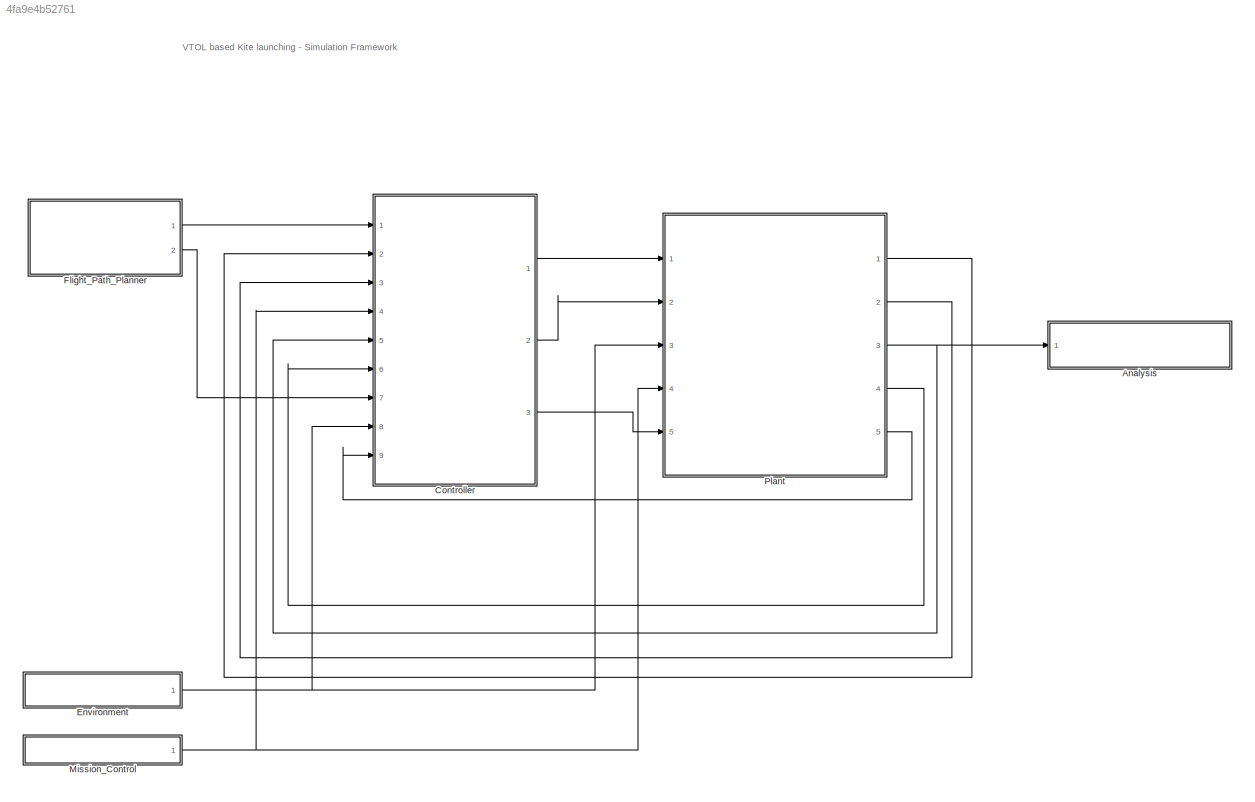
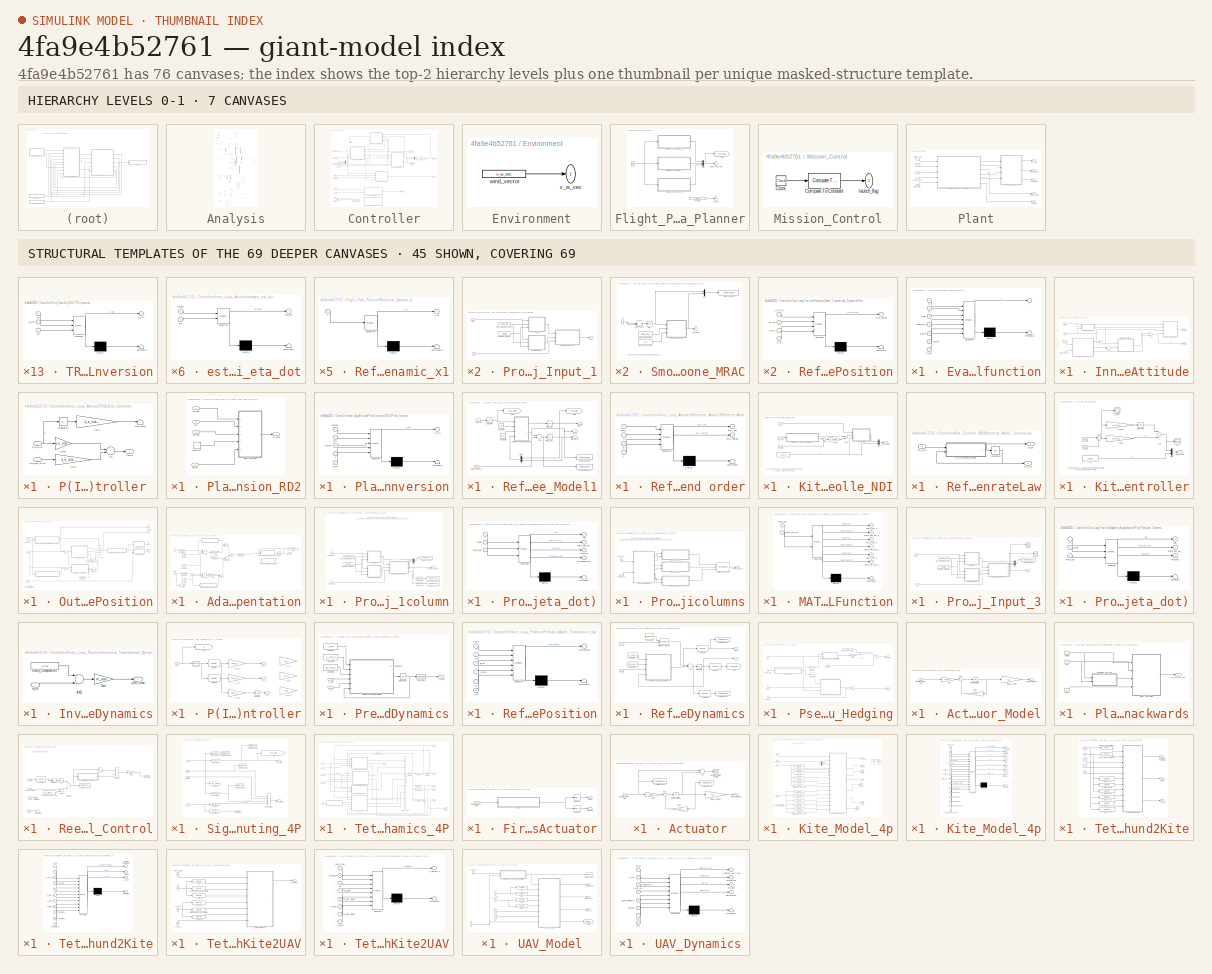
[diagram: thumbnail index - top-2 hierarchy levels (7 canvases) + 45 structural-template representatives of the remaining 69 canvases]
MODEL slx_4fa9e4b52761
KIND model
CONFIG AbsTol = auto
CONFIG FixedStep = dt
CONFIG InitFcn = setup_tmp_4p;\n
CONFIG MaxStep = auto
CONFIG MinStep = auto
CONFIG PreLoadFcn = setup_tmp_4p;\n
CONFIG RelTol = 1e-3
CONFIG SampleTimeConstraint = Unconstrained
CONFIG Solver = VariableStepAuto
CONFIG SolverMode = Auto
CONFIG SolverName = VariableStepAuto
CONFIG StartFcn = setup_tmp_4p;\n
CONFIG StartTime = 0.0
CONFIG StopTime = T_sim
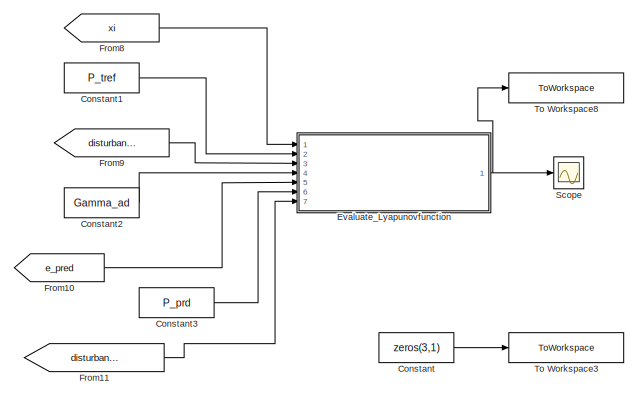
[diagram: Analysis - part 1/3, top left region]
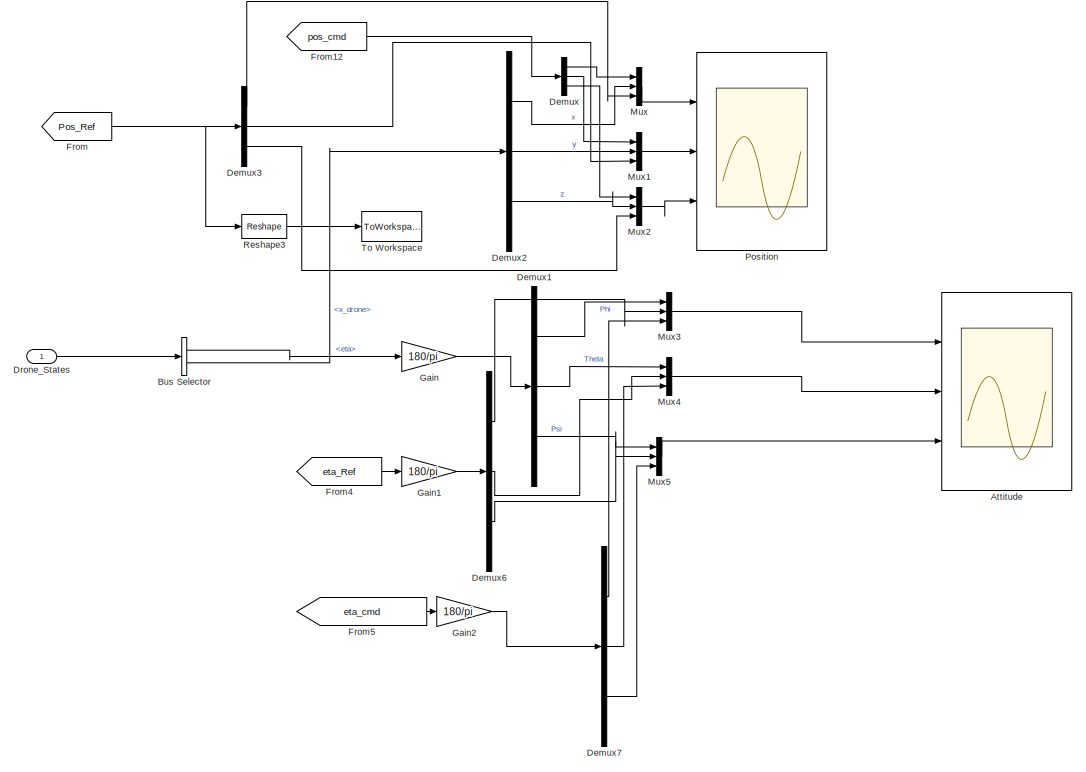
[diagram: Analysis - part 2/3, full width, middle band]
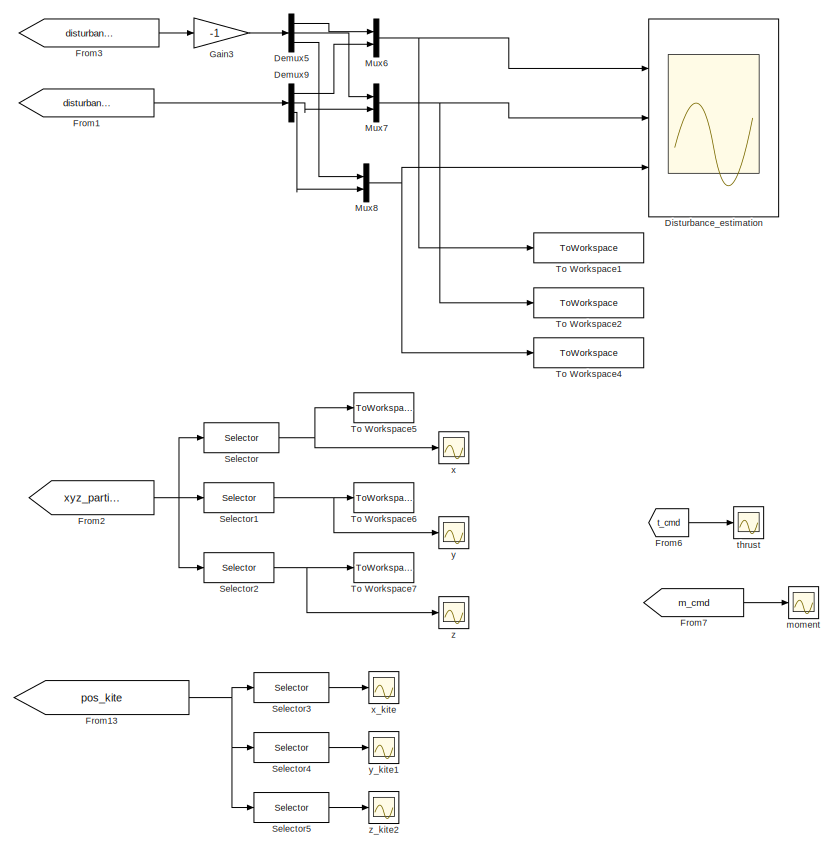
[diagram: Analysis - part 3/3, bottom center region]
BLOCK [SubSystem] Analysis
  Ports = [1]
  RequestExecContextInheritance = off
  Variant = off
BLOCK [Scope] Analysis/Attitude
  NumInputPorts = 3
  Ports = [3]
  ScopeSpecificationString = Simulink.scopes.TimeScopeBlockCfg('CurrentConfiguration', extmgr.ConfigurationSet(extmgr.Configuration('Core','General UI',true),extmgr.Configuration('Core','Source UI',true),extmgr.Configuration('Sources','WiredSimulink',true,'DataLoggingVariableName','ScopeData1'),extmgr.Configuration('Visuals','Time Domain',true,'SerializedDisplays',{struct('MinYLimReal','-1.41927','MaxYLimReal','2.8776','YLabe...<+2775ch>
BLOCK [BusSelector] Analysis/Bus Selector
  OutputSignals = eta,x_drone
  Ports = [1, 2]
BLOCK [Constant] Analysis/Constant
  Value = zeros(3,1)
BLOCK [Constant] Analysis/Constant1
  Value = P_tref
BLOCK [Constant] Analysis/Constant2
  Value = Gamma_ad
BLOCK [Constant] Analysis/Constant3
  Value = P_prd
BLOCK [Demux] Analysis/Demux
  DisplayOption = bar
  Outputs = 3
  Ports = [1, 3]
BLOCK [Demux] Analysis/Demux1
  DisplayOption = bar
  Outputs = 3
  Ports = [1, 3]
BLOCK [Demux] Analysis/Demux2
  DisplayOption = bar
  Outputs = 3
  Ports = [1, 3]
BLOCK [Demux] Analysis/Demux3
  DisplayOption = bar
  Outputs = 3
  Ports = [1, 3]
BLOCK [Demux] Analysis/Demux5
  DisplayOption = bar
  Outputs = 3
  Ports = [1, 3]
BLOCK [Demux] Analysis/Demux6
  DisplayOption = bar
  Outputs = 3
  Ports = [1, 3]
BLOCK [Demux] Analysis/Demux7
  DisplayOption = bar
  Outputs = 3
  Ports = [1, 3]
BLOCK [Demux] Analysis/Demux9
  DisplayOption = bar
  Outputs = 3
  Ports = [1, 3]
BLOCK [Scope] Analysis/Disturbance_estimation
  NumInputPorts = 3
  Ports = [3]
  ScopeSpecificationString = Simulink.scopes.TimeScopeBlockCfg('CurrentConfiguration', extmgr.ConfigurationSet(extmgr.Configuration('Core','General UI',true),extmgr.Configuration('Core','Source UI',true),extmgr.Configuration('Sources','WiredSimulink',true,'DataLoggingVariableName','ScopeData1'),extmgr.Configuration('Visuals','Time Domain',true,'SerializedDisplays',{struct('MinYLimReal','-29.10232','MaxYLimReal','6.11052','YLa...<+2847ch>
BLOCK [Inport] Analysis/Drone_States
  IconDisplay = Port number
BLOCK [SubSystem] Analysis/Evaluate_Lyapunovfunction
  ErrorFcn = Stateflow.Translate.translate
  PermitHierarchicalResolution = ExplicitOnly
  Ports = [7, 1]
  RequestExecContextInheritance = off
  SFBlockType = MATLAB Function
  TreatAsAtomicUnit = on
  Variant = off
BLOCK [Demux] Analysis/Evaluate_Lyapunovfunction/ Demux 
  Outputs = 1
  Ports = [1, 1]
BLOCK [S-Function] Analysis/Evaluate_Lyapunovfunction/ SFunction 
  EnableBusSupport = on
  FunctionName = sf_sfun
  PortCounts = [7 2]
  Ports = [7, 2]
  SFunctionDeploymentMode = off
  Tag = Stateflow S-Function model_tmp_4p 30
BLOCK [Terminator] Analysis/Evaluate_Lyapunovfunction/ Terminator 
BLOCK [Inport] Analysis/Evaluate_Lyapunovfunction/P
  IconDisplay = Port number
  Port = 2
BLOCK [Inport] Analysis/Evaluate_Lyapunovfunction/P_pred
  IconDisplay = Port number
  Port = 6
BLOCK [Outport] Analysis/Evaluate_Lyapunovfunction/V
  IconDisplay = Port number
BLOCK [Inport] Analysis/Evaluate_Lyapunovfunction/d_hat
  IconDisplay = Port number
  Port = 3
BLOCK [Inport] Analysis/Evaluate_Lyapunovfunction/d_real
  IconDisplay = Port number
  Port = 7
BLOCK [Inport] Analysis/Evaluate_Lyapunovfunction/e_pred
  IconDisplay = Port number
  Port = 5
BLOCK [Inport] Analysis/Evaluate_Lyapunovfunction/gamma_d
  IconDisplay = Port number
  Port = 4
BLOCK [Inport] Analysis/Evaluate_Lyapunovfunction/xi
  IconDisplay = Port number
BLOCK [From] Analysis/From
  GotoTag = Pos_Ref
  TagVisibility = global
BLOCK [From] Analysis/From1
  GotoTag = disturbance_est
  TagVisibility = global
BLOCK [From] Analysis/From10
  GotoTag = e_pred
  TagVisibility = global
BLOCK [From] Analysis/From11
  GotoTag = disturbance
  TagVisibility = global
BLOCK [From] Analysis/From12
  GotoTag = pos_cmd
  TagVisibility = global
BLOCK [From] Analysis/From13
  GotoTag = pos_kite
  TagVisibility = global
BLOCK [From] Analysis/From2
  GotoTag = xyz_particle_pos
  TagVisibility = global
BLOCK [From] Analysis/From3
  GotoTag = disturbance
  TagVisibility = global
BLOCK [From] Analysis/From4
  GotoTag = eta_Ref
  TagVisibility = global
BLOCK [From] Analysis/From5
  GotoTag = eta_cmd
  TagVisibility = global
BLOCK [From] Analysis/From6
  GotoTag = t_cmd
  TagVisibility = global
BLOCK [From] Analysis/From7
  GotoTag = m_cmd
  TagVisibility = global
BLOCK [From] Analysis/From8
  GotoTag = xi
  TagVisibility = global
BLOCK [From] Analysis/From9
  GotoTag = disturbance_est
  TagVisibility = global
BLOCK [Gain] Analysis/Gain
  Gain = 180/pi
  OutDataTypeStr = Inherit: Inherit via internal rule
  ParamDataTypeStr = Inherit: Inherit via internal rule
  SaturateOnIntegerOverflow = off
BLOCK [Gain] Analysis/Gain1
  Gain = 180/pi
  OutDataTypeStr = Inherit: Inherit via internal rule
  ParamDataTypeStr = Inherit: Inherit via internal rule
  SaturateOnIntegerOverflow = off
BLOCK [Gain] Analysis/Gain2
  Gain = 180/pi
  OutDataTypeStr = Inherit: Inherit via internal rule
  ParamDataTypeStr = Inherit: Inherit via internal rule
  SaturateOnIntegerOverflow = off
BLOCK [Gain] Analysis/Gain3
  Gain = -1
  OutDataTypeStr = Inherit: Inherit via internal rule
  ParamDataTypeStr = Inherit: Inherit via internal rule
  SaturateOnIntegerOverflow = off
BLOCK [Mux] Analysis/Mux
  DisplayOption = bar
  Inputs = 3
  Ports = [3, 1]
BLOCK [Mux] Analysis/Mux1
  DisplayOption = bar
  Inputs = 3
  Ports = [3, 1]
BLOCK [Mux] Analysis/Mux2
  DisplayOption = bar
  Inputs = 3
  Ports = [3, 1]
BLOCK [Mux] Analysis/Mux3
  DisplayOption = bar
  Inputs = 3
  Ports = [3, 1]
BLOCK [Mux] Analysis/Mux4
  DisplayOption = bar
  Inputs = 3
  Ports = [3, 1]
BLOCK [Mux] Analysis/Mux5
  DisplayOption = bar
  Inputs = 3
  Ports = [3, 1]
BLOCK [Mux] Analysis/Mux6
  DisplayOption = bar
  Inputs = 2
  Ports = [2, 1]
BLOCK [Mux] Analysis/Mux7
  DisplayOption = bar
  Inputs = 2
  Ports = [2, 1]
BLOCK [Mux] Analysis/Mux8
  DisplayOption = bar
  Inputs = 2
  Ports = [2, 1]
BLOCK [Scope] Analysis/Position
  NumInputPorts = 3
  Ports = [3]
  ScopeSpecificationString = Simulink.scopes.TimeScopeBlockCfg('CurrentConfiguration', extmgr.ConfigurationSet(extmgr.Configuration('Core','General UI',true),extmgr.Configuration('Core','Source UI',true),extmgr.Configuration('Sources','WiredSimulink',true,'DataLoggingVariableName','ScopeData2'),extmgr.Configuration('Visuals','Time Domain',true,'SerializedDisplays',{struct('MinYLimReal','-1.30366','MaxYLimReal','11.35182','YLa...<+2795ch>
BLOCK [Reshape] Analysis/Reshape3
  OutputDimensionality = Column vector (2-D)
  Ports = [1, 1]
BLOCK [Scope] Analysis/Scope
  Ports = [1]
  ScopeSpecificationString = Simulink.scopes.TimeScopeBlockCfg('CurrentConfiguration', extmgr.ConfigurationSet(extmgr.Configuration('Core','General UI',true),extmgr.Configuration('Core','Source UI',true),extmgr.Configuration('Sources','WiredSimulink',true,'DataLoggingVariableName','ScopeData1'),extmgr.Configuration('Visuals','Time Domain',true,'SerializedDisplays',{struct('MinYLimReal','-4419.40844','MaxYLimReal','39777.17633...<+1485ch>
BLOCK [Selector] Analysis/Selector
  IndexOptions = Index vector (dialog)
  Indices = [1 : 3 : 3*n_t_p-2]
  InputPortWidth = 3*n_t_p + 18
  OutputSizes = 1
  Ports = [1, 1]
BLOCK [Selector] Analysis/Selector1
  IndexOptions = Index vector (dialog)
  Indices = [2 : 3 : 3*n_t_p-1]
  InputPortWidth = 3*n_t_p + 18
  OutputSizes = 1
  Ports = [1, 1]
BLOCK [Selector] Analysis/Selector2
  IndexOptions = Index vector (dialog)
  Indices = [3 : 3 : 3*n_t_p]
  InputPortWidth = 3*n_t_p + 18
  OutputSizes = 1
  Ports = [1, 1]
BLOCK [Selector] Analysis/Selector3
  IndexOptions = Index vector (dialog)
  Indices = [ 1 : 3 :10]
  InputPortWidth = 12
  OutputSizes = 1
  Ports = [1, 1]
BLOCK [Selector] Analysis/Selector4
  IndexOptions = Index vector (dialog)
  Indices = [ 2 : 3 :  12]
  InputPortWidth = 12
  OutputSizes = 1
  Ports = [1, 1]
BLOCK [Selector] Analysis/Selector5
  IndexOptions = Index vector (dialog)
  Indices = [ 3 : 3 :  12]
  InputPortWidth = 12
  OutputSizes = 1
  Ports = [1, 1]
BLOCK [ToWorkspace] Analysis/To Workspace
  FixptAsFi = on
  MaxDataPoints = inf
  Ports = [1]
  SampleTime = sample_log
  Save2DSignal = 3-D array (concatenate along third dimension)
  SaveFormat = Timeseries
  VariableName = p_ref
BLOCK [ToWorkspace] Analysis/To Workspace1
  FixptAsFi = on
  MaxDataPoints = inf
  Ports = [1]
  SampleTime = sample_log
  Save2DSignal = 3-D array (concatenate along third dimension)
  SaveFormat = Timeseries
  VariableName = disturbance_estimation_x
BLOCK [ToWorkspace] Analysis/To Workspace2
  FixptAsFi = on
  MaxDataPoints = inf
  Ports = [1]
  SampleTime = sample_log
  Save2DSignal = 3-D array (concatenate along third dimension)
  SaveFormat = Timeseries
  VariableName = disturbance_estimation_y
BLOCK [ToWorkspace] Analysis/To Workspace3
  FixptAsFi = on
  MaxDataPoints = inf
  Ports = [1]
  SampleTime = sample_log
  Save2DSignal = 3-D array (concatenate along third dimension)
  VariableName = pos_pl_save
BLOCK [ToWorkspace] Analysis/To Workspace4
  FixptAsFi = on
  MaxDataPoints = inf
  Ports = [1]
  SampleTime = sample_log
  Save2DSignal = 3-D array (concatenate along third dimension)
  SaveFormat = Timeseries
  VariableName = disturbance_estimation_z
BLOCK [ToWorkspace] Analysis/To Workspace5
  FixptAsFi = on
  MaxDataPoints = inf
  Ports = [1]
  SampleTime = sample_log
  Save2DSignal = 3-D array (concatenate along third dimension)
  SaveFormat = Timeseries
  VariableName = x_save
BLOCK [ToWorkspace] Analysis/To Workspace6
  FixptAsFi = on
  MaxDataPoints = inf
  Ports = [1]
  SampleTime = sample_log
  Save2DSignal = 3-D array (concatenate along third dimension)
  SaveFormat = Timeseries
  VariableName = y_save
BLOCK [ToWorkspace] Analysis/To Workspace7
  FixptAsFi = on
  MaxDataPoints = inf
  Ports = [1]
  SampleTime = sample_log
  Save2DSignal = 3-D array (concatenate along third dimension)
  SaveFormat = Timeseries
  VariableName = z_save
BLOCK [ToWorkspace] Analysis/To Workspace8
  FixptAsFi = on
  MaxDataPoints = inf
  Ports = [1]
  SampleTime = sample_log
  Save2DSignal = 3-D array (concatenate along third dimension)
  VariableName = V_save
BLOCK [Scope] Analysis/moment
  Ports = [1]
  ScopeSpecificationString = Simulink.scopes.TimeScopeBlockCfg('CurrentConfiguration', extmgr.ConfigurationSet(extmgr.Configuration('Core','General UI',true),extmgr.Configuration('Core','Source UI',true),extmgr.Configuration('Sources','WiredSimulink',true,'DataLoggingVariableName','ScopeData4'),extmgr.Configuration('Visuals','Time Domain',true,'SerializedDisplays',{struct('MinYLimReal','-0.05702','MaxYLimReal','0.05702','YLab...<+1465ch>
BLOCK [Scope] Analysis/thrust
  Ports = [1]
  ScopeSpecificationString = Simulink.scopes.TimeScopeBlockCfg('CurrentConfiguration', extmgr.ConfigurationSet(extmgr.Configuration('Core','General UI',true),extmgr.Configuration('Core','Source UI',true),extmgr.Configuration('Sources','WiredSimulink',true,'DataLoggingVariableName','ScopeData3'),extmgr.Configuration('Visuals','Time Domain',true,'SerializedDisplays',{struct('MinYLimReal','11.98284','MaxYLimReal','382.65446','YL...<+1448ch>
BLOCK [Scope] Analysis/x
  Commented = on
  Ports = [1]
  ScopeSpecificationString = Simulink.scopes.TimeScopeBlockCfg('CurrentConfiguration', extmgr.ConfigurationSet(extmgr.Configuration('Core','General UI',true),extmgr.Configuration('Core','Source UI',true),extmgr.Configuration('Sources','WiredSimulink',true,'DataLoggingVariableName','ScopeData1','DataLoggingLimitDataPoints',true,'DataLoggingSaveFormat','Array','DataLoggingDecimation','1','DataLoggingDecimateData',true),extmgr.C...<+1669ch>
BLOCK [Scope] Analysis/x_kite
  Ports = [1]
  ScopeSpecificationString = Simulink.scopes.TimeScopeBlockCfg('CurrentConfiguration', extmgr.ConfigurationSet(extmgr.Configuration('Core','General UI',true),extmgr.Configuration('Core','Source UI',true),extmgr.Configuration('Sources','WiredSimulink',true,'DataLoggingVariableName','ScopeData2'),extmgr.Configuration('Visuals','Time Domain',true,'SerializedDisplays',{struct('MinYLimReal','-2.88787','MaxYLimReal','15.60487','YLa...<+1538ch>
BLOCK [Scope] Analysis/y
  Commented = on
  Ports = [1]
  ScopeSpecificationString = Simulink.scopes.TimeScopeBlockCfg('CurrentConfiguration', extmgr.ConfigurationSet(extmgr.Configuration('Core','General UI',true),extmgr.Configuration('Core','Source UI',true),extmgr.Configuration('Sources','WiredSimulink',true,'DataLoggingVariableName','ScopeData2','DataLoggingLimitDataPoints',true,'DataLoggingSaveFormat','Array','DataLoggingDecimation','1','DataLoggingDecimateData',true),extmgr.C...<+1677ch>
BLOCK [Scope] Analysis/y_kite1
  Ports = [1]
  ScopeSpecificationString = Simulink.scopes.TimeScopeBlockCfg('CurrentConfiguration', extmgr.ConfigurationSet(extmgr.Configuration('Core','General UI',true),extmgr.Configuration('Core','Source UI',true),extmgr.Configuration('Sources','WiredSimulink',true,'DataLoggingVariableName','ScopeData3'),extmgr.Configuration('Visuals','Time Domain',true,'SerializedDisplays',{struct('MinYLimReal','-3.55721','MaxYLimReal','5.91187','YLab...<+1510ch>
BLOCK [Scope] Analysis/z
  Ports = [1]
  ScopeSpecificationString = Simulink.scopes.TimeScopeBlockCfg('CurrentConfiguration', extmgr.ConfigurationSet(extmgr.Configuration('Core','General UI',true),extmgr.Configuration('Core','Source UI',true),extmgr.Configuration('Sources','WiredSimulink',true,'DataLoggingVariableName','ScopeData3'),extmgr.Configuration('Visuals','Time Domain',true,'SerializedDisplays',{struct('MinYLimReal','-6.98053','MaxYLimReal','72.54288','YLa...<+1540ch>
BLOCK [Scope] Analysis/z_kite2
  Ports = [1]
  ScopeSpecificationString = Simulink.scopes.TimeScopeBlockCfg('CurrentConfiguration', extmgr.ConfigurationSet(extmgr.Configuration('Core','General UI',true),extmgr.Configuration('Core','Source UI',true),extmgr.Configuration('Sources','WiredSimulink',true,'DataLoggingVariableName','ScopeData4'),extmgr.Configuration('Visuals','Time Domain',true,'SerializedDisplays',{struct('MinYLimReal','7.65898','MaxYLimReal','79.74024','YLab...<+1512ch>
BLOCK [SubSystem] Controller
  Ports = [9, 3]
  RequestExecContextInheritance = off
  Variant = off
BLOCK [Sum] Controller/Add
  InputSameDT = off
  Inputs = +-
  OutDataTypeStr = Inherit: Inherit via internal rule
  Ports = [2, 1]
  SaturateOnIntegerOverflow = off
BLOCK [BusSelector] Controller/Bus Selector
  OutputSignals = x_drone,x_dot_drone,eta,omega
  Ports = [1, 4]
BLOCK [DotProduct] Controller/Dot Product
  OutDataTypeStr = Inherit: Inherit via internal rule
BLOCK [Inport] Controller/Drone_Pos_cmd
  IconDisplay = Port number
BLOCK [Inport] Controller/Drone_States
  IconDisplay = Port number
  Port = 5
BLOCK [Goto] Controller/Goto
  GotoTag = t_cmd
  TagVisibility = global
BLOCK [Goto] Controller/Goto2
  GotoTag = m_cmd
  TagVisibility = global
BLOCK [SubSystem] Controller/Inner_Loop_Attitude
  Ports = [4, 2]
  RequestExecContextInheritance = off
  Variant = off
BLOCK [Sum] Controller/Inner_Loop_Attitude/Add
  InputSameDT = off
  Inputs = +-
  OutDataTypeStr = Inherit: Inherit via internal rule
  Ports = [2, 1]
  SaturateOnIntegerOverflow = off
BLOCK [Sum] Controller/Inner_Loop_Attitude/Add1
  InputSameDT = off
  Inputs = +-
  OutDataTypeStr = Inherit: Inherit via internal rule
  Ports = [2, 1]
  SaturateOnIntegerOverflow = off
BLOCK [Sum] Controller/Inner_Loop_Attitude/Add2
  InputSameDT = off
  OutDataTypeStr = Inherit: Inherit via internal rule
  Ports = [2, 1]
  SaturateOnIntegerOverflow = off
BLOCK [Inport] Controller/Inner_Loop_Attitude/Delta_hedge_M
  IconDisplay = Port number
  Port = 4
BLOCK [Outport] Controller/Inner_Loop_Attitude/M_cmd
  IconDisplay = Port number
  Port = 2
BLOCK [SubSystem] Controller/Inner_Loop_Attitude/P(I)D Error_Controller 
  Ports = [2, 1]
  RequestExecContextInheritance = off
  Variant = off
BLOCK [Sum] Controller/Inner_Loop_Attitude/P(I)D Error_Controller /Add
  InputSameDT = off
  OutDataTypeStr = Inherit: Inherit via internal rule
  Ports = [2, 1]
  SaturateOnIntegerOverflow = off
BLOCK [Inport] Controller/Inner_Loop_Attitude/P(I)D Error_Controller /Eta_Dot_Error
  IconDisplay = Port number
  Port = 2
BLOCK [Inport] Controller/Inner_Loop_Attitude/P(I)D Error_Controller /Eta_Error
  IconDisplay = Port number
BLOCK [Gain] Controller/Inner_Loop_Attitude/P(I)D Error_Controller /Gain
  Gain = k_e_eta_dot
  OutDataTypeStr = Inherit: Inherit via internal rule
  ParamDataTypeStr = Inherit: Inherit via internal rule
  SaturateOnIntegerOverflow = off
BLOCK [Gain] Controller/Inner_Loop_Attitude/P(I)D Error_Controller /Gain1
  Gain = k_e_eta
  OutDataTypeStr = Inherit: Inherit via internal rule
  ParamDataTypeStr = Inherit: Inherit via internal rule
  SaturateOnIntegerOverflow = off
BLOCK [Gain] Controller/Inner_Loop_Attitude/P(I)D Error_Controller /Gain4
  Gain = k_e_eta_I
  OutDataTypeStr = Inherit: Inherit via internal rule
  ParamDataTypeStr = Inherit: Inherit via internal rule
  SaturateOnIntegerOverflow = off
BLOCK [Integrator] Controller/Inner_Loop_Attitude/P(I)D Error_Controller /Integrator2
  InitialCondition = zeros(3,1)
  Ports = [1, 1]
BLOCK [Terminator] Controller/Inner_Loop_Attitude/P(I)D Error_Controller /Terminator
BLOCK [Outport] Controller/Inner_Loop_Attitude/P(I)D Error_Controller /u_error
  IconDisplay = Port number
BLOCK [SubSystem] Controller/Inner_Loop_Attitude/Plant_Inversion_RD2
  Ports = [4, 1]
  RequestExecContextInheritance = off
  Variant = off
BLOCK [Constant] Controller/Inner_Loop_Attitude/Plant_Inversion_RD2/Constant1
  Value = J
BLOCK [Inport] Controller/Inner_Loop_Attitude/Plant_Inversion_RD2/Eta
  IconDisplay = Port number
  Port = 3
BLOCK [Inport] Controller/Inner_Loop_Attitude/Plant_Inversion_RD2/Eta_Dot
  IconDisplay = Port number
  Port = 2
BLOCK [Outport] Controller/Inner_Loop_Attitude/Plant_Inversion_RD2/M_Cmd
  IconDisplay = Port number
BLOCK [SubSystem] Controller/Inner_Loop_Attitude/Plant_Inversion_RD2/Plant_Inversion
  ErrorFcn = Stateflow.Translate.translate
  PermitHierarchicalResolution = ExplicitOnly
  Ports = [5, 1]
  RequestExecContextInheritance = off
  SFBlockType = MATLAB Function
  TreatAsAtomicUnit = on
  Variant = off
BLOCK [Demux] Controller/Inner_Loop_Attitude/Plant_Inversion_RD2/Plant_Inversion/ Demux 
  Outputs = 1
  Ports = [1, 1]
BLOCK [S-Function] Controller/Inner_Loop_Attitude/Plant_Inversion_RD2/Plant_Inversion/ SFunction 
  EnableBusSupport = on
  FunctionName = sf_sfun
  PortCounts = [5 2]
  Ports = [5, 2]
  SFunctionDeploymentMode = off
  Tag = Stateflow S-Function model_tmp_4p 1
BLOCK [Terminator] Controller/Inner_Loop_Attitude/Plant_Inversion_RD2/Plant_Inversion/ Terminator 
BLOCK [Inport] Controller/Inner_Loop_Attitude/Plant_Inversion_RD2/Plant_Inversion/J
  IconDisplay = Port number
  Port = 4
BLOCK [Inport] Controller/Inner_Loop_Attitude/Plant_Inversion_RD2/Plant_Inversion/eta
  IconDisplay = Port number
  Port = 2
BLOCK [Inport] Controller/Inner_Loop_Attitude/Plant_Inversion_RD2/Plant_Inversion/eta_dot
  IconDisplay = Port number
  Port = 3
BLOCK [Inport] Controller/Inner_Loop_Attitude/Plant_Inversion_RD2/Plant_Inversion/nu_tot
  IconDisplay = Port number
  Port = 5
BLOCK [Inport] Controller/Inner_Loop_Attitude/Plant_Inversion_RD2/Plant_Inversion/omega
  IconDisplay = Port number
BLOCK [Outport] Controller/Inner_Loop_Attitude/Plant_Inversion_RD2/Plant_Inversion/u_NDI
  IconDisplay = Port number
BLOCK [Inport] Controller/Inner_Loop_Attitude/Plant_Inversion_RD2/nu_tot
  IconDisplay = Port number
  Port = 4
BLOCK [Inport] Controller/Inner_Loop_Attitude/Plant_Inversion_RD2/omega
  IconDisplay = Port number
BLOCK [SubSystem] Controller/Inner_Loop_Attitude/Reference_Model1
  Ports = [2, 3]
  RequestExecContextInheritance = off
  Variant = off
BLOCK [Sum] Controller/Inner_Loop_Attitude/Reference_Model1/Add
  InputSameDT = off
  Inputs = +-
  OutDataTypeStr = Inherit: Inherit via internal rule
  Ports = [2, 1]
  SaturateOnIntegerOverflow = off
BLOCK [Constant] Controller/Inner_Loop_Attitude/Reference_Model1/Constant2
  Value = A_ref
BLOCK [Constant] Controller/Inner_Loop_Attitude/Reference_Model1/Constant3
  Value = B_ref
BLOCK [Inport] Controller/Inner_Loop_Attitude/Reference_Model1/Delta_hedge_M 
  IconDisplay = Port number
  Port = 2
BLOCK [Inport] Controller/Inner_Loop_Attitude/Reference_Model1/Eta_Cmd
  IconDisplay = Port number
BLOCK [Outport] Controller/Inner_Loop_Attitude/Reference_Model1/Eta_Dot_R
  IconDisplay = Port number
  Port = 2
BLOCK [Outport] Controller/Inner_Loop_Attitude/Reference_Model1/Eta_R
  IconDisplay = Port number
BLOCK [Goto] Controller/Inner_Loop_Attitude/Reference_Model1/Goto
  GotoTag = eta_Ref
  TagVisibility = global
BLOCK [Goto] Controller/Inner_Loop_Attitude/Reference_Model1/Goto1
  GotoTag = eta_cmd
  TagVisibility = global
BLOCK [Integrator] Controller/Inner_Loop_Attitude/Reference_Model1/Integrator
  InitialCondition = zeros(3,1)
  Ports = [1, 1]
BLOCK [Integrator] Controller/Inner_Loop_Attitude/Reference_Model1/Integrator1
  InitialCondition = zeros(3,1)
  Ports = [1, 1]
BLOCK [Mux] Controller/Inner_Loop_Attitude/Reference_Model1/Mux1
  DisplayOption = bar
  Inputs = 2
  Ports = [2, 1]
BLOCK [Outport] Controller/Inner_Loop_Attitude/Reference_Model1/Nu_R
  IconDisplay = Port number
  Port = 3
BLOCK [SubSystem] Controller/Inner_Loop_Attitude/Reference_Model1/Reference Model 2nd order
  ErrorFcn = Stateflow.Translate.translate
  PermitHierarchicalResolution = ExplicitOnly
  Ports = [4, 2]
  RequestExecContextInheritance = off
  SFBlockType = MATLAB Function
  TreatAsAtomicUnit = on
  Variant = off
BLOCK [Demux] Controller/Inner_Loop_Attitude/Reference_Model1/Reference Model 2nd order/ Demux 
  Outputs = 1
  Ports = [1, 1]
BLOCK [S-Function] Controller/Inner_Loop_Attitude/Reference_Model1/Reference Model 2nd order/ SFunction 
  EnableBusSupport = on
  FunctionName = sf_sfun
  PortCounts = [4 3]
  Ports = [4, 3]
  SFunctionDeploymentMode = off
  Tag = Stateflow S-Function model_tmp_4p 67
BLOCK [Terminator] Controller/Inner_Loop_Attitude/Reference_Model1/Reference Model 2nd order/ Terminator 
BLOCK [Inport] Controller/Inner_Loop_Attitude/Reference_Model1/Reference Model 2nd order/A_r
  IconDisplay = Port number
  Port = 2
BLOCK [Inport] Controller/Inner_Loop_Attitude/Reference_Model1/Reference Model 2nd order/B_r
  IconDisplay = Port number
  Port = 3
BLOCK [Inport] Controller/Inner_Loop_Attitude/Reference_Model1/Reference Model 2nd order/eta_c
  IconDisplay = Port number
BLOCK [Outport] Controller/Inner_Loop_Attitude/Reference_Model1/Reference Model 2nd order/eta_r_dot
  IconDisplay = Port number
BLOCK [Outport] Controller/Inner_Loop_Attitude/Reference_Model1/Reference Model 2nd order/eta_r_dotdot
  IconDisplay = Port number
  Port = 2
BLOCK [Inport] Controller/Inner_Loop_Attitude/Reference_Model1/Reference Model 2nd order/x
  IconDisplay = Port number
  Port = 4
BLOCK [Saturate] Controller/Inner_Loop_Attitude/Reference_Model1/Saturation
  InputPortMap = u0
  LowerLimit = -89*pi/180
  Ports = [1, 1]
  UpperLimit = 89*pi/180
BLOCK [ToWorkspace] Controller/Inner_Loop_Attitude/Reference_Model1/To Workspace1
  FixptAsFi = on
  MaxDataPoints = inf
  Ports = [1]
  SampleTime = sample_log
  Save2DSignal = 3-D array (concatenate along third dimension)
  SaveFormat = Timeseries
  VariableName = original_rot_ref
BLOCK [ToWorkspace] Controller/Inner_Loop_Attitude/Reference_Model1/To Workspace2
  FixptAsFi = on
  MaxDataPoints = inf
  Ports = [1]
  SampleTime = sample_log
  Save2DSignal = 3-D array (concatenate along third dimension)
  SaveFormat = Timeseries
  VariableName = slowed_rot_ref
BLOCK [SubSystem] Controller/Inner_Loop_Attitude/estimate_eta_dot
  ErrorFcn = Stateflow.Translate.translate
  PermitHierarchicalResolution = ExplicitOnly
  Ports = [2, 1]
  RequestExecContextInheritance = off
  SFBlockType = MATLAB Function
  TreatAsAtomicUnit = on
  Variant = off
BLOCK [Demux] Controller/Inner_Loop_Attitude/estimate_eta_dot/ Demux 
  Outputs = 1
  Ports = [1, 1]
BLOCK [S-Function] Controller/Inner_Loop_Attitude/estimate_eta_dot/ SFunction 
  EnableBusSupport = on
  FunctionName = sf_sfun
  PortCounts = [2 2]
  Ports = [2, 2]
  SFunctionDeploymentMode = off
  Tag = Stateflow S-Function model_tmp_4p 5
BLOCK [Terminator] Controller/Inner_Loop_Attitude/estimate_eta_dot/ Terminator 
BLOCK [Inport] Controller/Inner_Loop_Attitude/estimate_eta_dot/eta
  IconDisplay = Port number
  Port = 2
BLOCK [Outport] Controller/Inner_Loop_Attitude/estimate_eta_dot/eta_dot
  IconDisplay = Port number
BLOCK [Inport] Controller/Inner_Loop_Attitude/estimate_eta_dot/omega
  IconDisplay = Port number
BLOCK [Inport] Controller/Inner_Loop_Attitude/eta
  IconDisplay = Port number
  Port = 2
BLOCK [Inport] Controller/Inner_Loop_Attitude/eta_Cmd
  IconDisplay = Port number
BLOCK [Outport] Controller/Inner_Loop_Attitude/nu_tot_rot
  IconDisplay = Port number
BLOCK [Inport] Controller/Inner_Loop_Attitude/omega
  IconDisplay = Port number
  Port = 3
BLOCK [SubSystem] Controller/Kite_Controlle_NDI
  Commented = on
  Ports = [3, 1]
  RequestExecContextInheritance = off
  Variant = off
BLOCK [Gain] Controller/Kite_Controlle_NDI/ P-Gain
  Gain = K_e_psi
  OutDataTypeStr = Inherit: Inherit via internal rule
  ParamDataTypeStr = Inherit: Inherit via internal rule
  SaturateOnIntegerOverflow = off
BLOCK [Mux] Controller/Kite_Controlle_NDI/Mux
  DisplayOption = bar
  Inputs = 2
  Ports = [2, 1]
BLOCK [Inport] Controller/Kite_Controlle_NDI/Psi_cmd
  IconDisplay = Port number
  Port = 2
BLOCK [Inport] Controller/Kite_Controlle_NDI/Psi_kite
  IconDisplay = Port number
BLOCK [SubSystem] Controller/Kite_Controlle_NDI/Reference_Model_TurnrateLaw
  Ports = [1, 2]
  RequestExecContextInheritance = off
  Variant = off
BLOCK [Integrator] Controller/Kite_Controlle_NDI/Reference_Model_TurnrateLaw/Integrator
  Ports = [1, 1]
BLOCK [Inport] Controller/Kite_Controlle_NDI/Reference_Model_TurnrateLaw/Psi_cmd
  IconDisplay = Port number
BLOCK [Outport] Controller/Kite_Controlle_NDI/Reference_Model_TurnrateLaw/Psi_ref
  IconDisplay = Port number
  Port = 2
BLOCK [SubSystem] Controller/Kite_Controlle_NDI/Reference_Model_TurnrateLaw/Psi_reference_model
  ErrorFcn = Stateflow.Translate.translate
  PermitHierarchicalResolution = ExplicitOnly
  Ports = [2, 1]
  RequestExecContextInheritance = off
  SFBlockType = MATLAB Function
  TreatAsAtomicUnit = on
  Variant = off
BLOCK [Demux] Controller/Kite_Controlle_NDI/Reference_Model_TurnrateLaw/Psi_reference_model/ Demux 
  Outputs = 1
  Ports = [1, 1]
BLOCK [S-Function] Controller/Kite_Controlle_NDI/Reference_Model_TurnrateLaw/Psi_reference_model/ SFunction 
  EnableBusSupport = on
  FunctionName = sf_sfun
  Parameters = a_TR_ref
  PortCounts = [2 2]
  Ports = [2, 2]
  SFunctionDeploymentMode = off
  Tag = Stateflow S-Function model_tmp_4p 22
BLOCK [Terminator] Controller/Kite_Controlle_NDI/Reference_Model_TurnrateLaw/Psi_reference_model/ Terminator 
BLOCK [Inport] Controller/Kite_Controlle_NDI/Reference_Model_TurnrateLaw/Psi_reference_model/Psi_cmd
  IconDisplay = Port number
BLOCK [Inport] Controller/Kite_Controlle_NDI/Reference_Model_TurnrateLaw/Psi_reference_model/Psi_ref
  IconDisplay = Port number
  Port = 2
BLOCK [Outport] Controller/Kite_Controlle_NDI/Reference_Model_TurnrateLaw/Psi_reference_model/Psi_ref_dot
  IconDisplay = Port number
BLOCK [Outport] Controller/Kite_Controlle_NDI/Reference_Model_TurnrateLaw/nu_psi
  IconDisplay = Port number
BLOCK [Sum] Controller/Kite_Controlle_NDI/Sum
  IconShape = round
  InputSameDT = off
  Inputs = |+-
  OutDataTypeStr = Inherit: Inherit via internal rule
  Ports = [2, 1]
  SaturateOnIntegerOverflow = off
BLOCK [Sum] Controller/Kite_Controlle_NDI/Sum1
  InputSameDT = off
  OutDataTypeStr = Inherit: Inherit via internal rule
  Ports = [2, 1]
  SaturateOnIntegerOverflow = off
BLOCK [SubSystem] Controller/Kite_Controlle_NDI/TRL_Inversion
  ErrorFcn = Stateflow.Translate.translate
  PermitHierarchicalResolution = ExplicitOnly
  Ports = [3, 1]
  RequestExecContextInheritance = off
  SFBlockType = MATLAB Function
  TreatAsAtomicUnit = on
  Variant = off
BLOCK [Demux] Controller/Kite_Controlle_NDI/TRL_Inversion/ Demux 
  Outputs = 1
  Ports = [1, 1]
BLOCK [S-Function] Controller/Kite_Controlle_NDI/TRL_Inversion/ SFunction 
  EnableBusSupport = on
  FunctionName = sf_sfun
  Parameters = K_d_s,c_1_TR,u_d_0,u_d_max,u_s_0
  PortCounts = [3 2]
  Ports = [3, 2]
  SFunctionDeploymentMode = off
  Tag = Stateflow S-Function model_tmp_4p 23
BLOCK [Terminator] Controller/Kite_Controlle_NDI/TRL_Inversion/ Terminator 
BLOCK [Inport] Controller/Kite_Controlle_NDI/TRL_Inversion/nu_tot
  IconDisplay = Port number
  Port = 2
BLOCK [Outport] Controller/Kite_Controlle_NDI/TRL_Inversion/u_NDI
  IconDisplay = Port number
BLOCK [Inport] Controller/Kite_Controlle_NDI/TRL_Inversion/u_d
  IconDisplay = Port number
  Port = 3
BLOCK [Inport] Controller/Kite_Controlle_NDI/TRL_Inversion/v_a
  IconDisplay = Port number
BLOCK [Outport] Controller/Kite_Controlle_NDI/kite_control
  IconDisplay = Port number
BLOCK [Constant] Controller/Kite_Controlle_NDI/u_d
  Value = u_d_0
BLOCK [Inport] Controller/Kite_Controlle_NDI/v_a
  IconDisplay = Port number
  Port = 3
BLOCK [SubSystem] Controller/Kite_Controller
  Ports = [2, 1]
  RequestExecContextInheritance = off
  Variant = off
BLOCK [Gain] Controller/Kite_Controller/ P-Gain
  Gain = 0.1*K_e_psi
  OutDataTypeStr = Inherit: Inherit via internal rule
  ParamDataTypeStr = Inherit: Inherit via internal rule
  SaturateOnIntegerOverflow = off
BLOCK [Gain] Controller/Kite_Controller/ P-Gain1
  Gain = 0.1*K_e_psi
  OutDataTypeStr = Inherit: Inherit via internal rule
  ParamDataTypeStr = Inherit: Inherit via internal rule
  SaturateOnIntegerOverflow = off
BLOCK [Sum] Controller/Kite_Controller/Add
  InputSameDT = off
  OutDataTypeStr = Inherit: Inherit via internal rule
  Ports = [2, 1]
  SaturateOnIntegerOverflow = off
BLOCK [Integrator] Controller/Kite_Controller/Integrator
  Ports = [1, 1]
BLOCK [Mux] Controller/Kite_Controller/Mux
  DisplayOption = bar
  Inputs = 2
  Ports = [2, 1]
BLOCK [Inport] Controller/Kite_Controller/Psi_cmd
  IconDisplay = Port number
  Port = 2
BLOCK [Inport] Controller/Kite_Controller/Psi_kite
  IconDisplay = Port number
BLOCK [Sum] Controller/Kite_Controller/Sum
  IconShape = round
  InputSameDT = off
  Inputs = |+-
  OutDataTypeStr = Inherit: Inherit via internal rule
  Ports = [2, 1]
  SaturateOnIntegerOverflow = off
BLOCK [Scope] Controller/Kite_Controller/e_psi
  Ports = [1]
  ScopeSpecificationString = Simulink.scopes.TimeScopeBlockCfg('CurrentConfiguration', extmgr.ConfigurationSet(extmgr.Configuration('Core','General UI',true),extmgr.Configuration('Core','Source UI',true),extmgr.Configuration('Sources','WiredSimulink',true,'DataLoggingVariableName','ScopeData3'),extmgr.Configuration('Visuals','Time Domain',true,'SerializedDisplays',{struct('MinYLimReal','-1.02527','MaxYLimReal','0.11392','YLab...<+1417ch>
BLOCK [Outport] Controller/Kite_Controller/kite_control
  IconDisplay = Port number
BLOCK [Constant] Controller/Kite_Controller/u_d
  Value = u_d_0
BLOCK [Scope] Controller/Kite_Controller/u_s
  Ports = [1]
  ScopeSpecificationString = Simulink.scopes.TimeScopeBlockCfg('CurrentConfiguration', extmgr.ConfigurationSet(extmgr.Configuration('Core','General UI',true),extmgr.Configuration('Core','Source UI',true),extmgr.Configuration('Sources','WiredSimulink',true,'DataLoggingVariableName','ScopeData2'),extmgr.Configuration('Visuals','Time Domain',true,'SerializedDisplays',{struct('MinYLimReal','-5.43735','MaxYLimReal','0.60415','YLab...<+1417ch>
BLOCK [Mux] Controller/Mux
  DisplayOption = bar
  Inputs = 2
  Ports = [2, 1]
BLOCK [Mux] Controller/Mux1
  DisplayOption = bar
  Inputs = 2
  Ports = [2, 1]
BLOCK [SubSystem] Controller/Outer_Loop_Position
  Ports = [5, 4]
  RequestExecContextInheritance = off
  Variant = off
BLOCK [ManualSwitch] Controller/Outer_Loop_Position/Adapt_OnOff
BLOCK [SubSystem] Controller/Outer_Loop_Position/Adaptive_Augmentation
  Ports = [2, 1]
  RequestExecContextInheritance = off
  Variant = off
BLOCK [Sum] Controller/Outer_Loop_Position/Adaptive_Augmentation/Add
  InputSameDT = off
  OutDataTypeStr = Inherit: Inherit via internal rule
  Ports = [2, 1]
  SaturateOnIntegerOverflow = off
BLOCK [Constant] Controller/Outer_Loop_Position/Adaptive_Augmentation/Constant
  Value = P_tref
BLOCK [Constant] Controller/Outer_Loop_Position/Adaptive_Augmentation/Constant1
  Value = Bpbl
BLOCK [Constant] Controller/Outer_Loop_Position/Adaptive_Augmentation/Constant2
  Value = P_prd
BLOCK [Constant] Controller/Outer_Loop_Position/Adaptive_Augmentation/Constant3
  Value = zeros(3,1)
BLOCK [Gain] Controller/Outer_Loop_Position/Adaptive_Augmentation/Gain
  Gain = Gamma_ad
  OutDataTypeStr = Inherit: Inherit via internal rule
  ParamDataTypeStr = Inherit: Inherit via internal rule
  SaturateOnIntegerOverflow = off
BLOCK [Gain] Controller/Outer_Loop_Position/Adaptive_Augmentation/Gain1
  Gain = Gamma_pred
  OutDataTypeStr = Inherit: Inherit via internal rule
  ParamDataTypeStr = Inherit: Inherit via internal rule
  SaturateOnIntegerOverflow = off
BLOCK [Goto] Controller/Outer_Loop_Position/Adaptive_Augmentation/Goto
  GotoTag = disturbance_est
  TagVisibility = global
BLOCK [Goto] Controller/Outer_Loop_Position/Adaptive_Augmentation/Goto1
  GotoTag = e_pred
  TagVisibility = global
BLOCK [Integrator] Controller/Outer_Loop_Position/Adaptive_Augmentation/Integrator
  InitialCondition = zeros(3,1)
  Ports = [1, 1]
BLOCK [ManualSwitch] Controller/Outer_Loop_Position/Adaptive_Augmentation/Manual Switch
BLOCK [Product] Controller/Outer_Loop_Position/Adaptive_Augmentation/Product
  InputSameDT = off
  Inputs = 3
  Multiplication = Matrix(*)
  OutDataTypeStr = Inherit: Inherit via internal rule
  Ports = [3, 1]
  RndMeth = Floor
  SaturateOnIntegerOverflow = off
BLOCK [Product] Controller/Outer_Loop_Position/Adaptive_Augmentation/Product1
  InputSameDT = off
  Inputs = 3
  Multiplication = Matrix(*)
  OutDataTypeStr = Inherit: Inherit via internal rule
  Ports = [3, 1]
  RndMeth = Floor
  SaturateOnIntegerOverflow = off
BLOCK [Product] Controller/Outer_Loop_Position/Adaptive_Augmentation/Product2
  InputSameDT = off
  OutDataTypeStr = Inherit: Inherit via internal rule
  Ports = [2, 1]
  RndMeth = Floor
  SaturateOnIntegerOverflow = off
BLOCK [Product] Controller/Outer_Loop_Position/Adaptive_Augmentation/Product5
  InputSameDT = off
  OutDataTypeStr = Inherit: Inherit via internal rule
  Ports = [2, 1]
  RndMeth = Floor
  SaturateOnIntegerOverflow = off
BLOCK [SubSystem] Controller/Outer_Loop_Position/Adaptive_Augmentation/Proj(Theta_hat, GammaY)_1column
  Ports = [2, 1]
  RequestExecContextInheritance = off
  Variant = off
BLOCK [Mux] Controller/Outer_Loop_Position/Adaptive_Augmentation/Proj(Theta_hat, GammaY)_1column/Mux
  DisplayOption = bar
  Inputs = 3
  Ports = [3, 1]
BLOCK [SubSystem] Controller/Outer_Loop_Position/Adaptive_Augmentation/Proj(Theta_hat, GammaY)_1column/Proj(Theta,Theta_dot)
  ErrorFcn = Stateflow.Translate.translate
  PermitHierarchicalResolution = ExplicitOnly
  Ports = [3, 4]
  RequestExecContextInheritance = off
  SFBlockType = MATLAB Function
  TreatAsAtomicUnit = on
  Variant = off
BLOCK [Demux] Controller/Outer_Loop_Position/Adaptive_Augmentation/Proj(Theta_hat, GammaY)_1column/Proj(Theta,Theta_dot)/ Demux 
  Outputs = 1
  Ports = [1, 1]
BLOCK [S-Function] Controller/Outer_Loop_Position/Adaptive_Augmentation/Proj(Theta_hat, GammaY)_1column/Proj(Theta,Theta_dot)/ SFunction 
  EnableBusSupport = on
  FunctionName = sf_sfun
  PortCounts = [3 5]
  Ports = [3, 5]
  SFunctionDeploymentMode = off
  Tag = Stateflow S-Function model_tmp_4p 25
BLOCK [Terminator] Controller/Outer_Loop_Position/Adaptive_Augmentation/Proj(Theta_hat, GammaY)_1column/Proj(Theta,Theta_dot)/ Terminator 
BLOCK [Inport] Controller/Outer_Loop_Position/Adaptive_Augmentation/Proj(Theta_hat, GammaY)_1column/Proj(Theta,Theta_dot)/Theta_dot
  IconDisplay = Port number
  Port = 3
BLOCK [Outport] Controller/Outer_Loop_Position/Adaptive_Augmentation/Proj(Theta_hat, GammaY)_1column/Proj(Theta,Theta_dot)/Theta_hat_dot_
  IconDisplay = Port number
  Port = 2
BLOCK [Outport] Controller/Outer_Loop_Position/Adaptive_Augmentation/Proj(Theta_hat, GammaY)_1column/Proj(Theta,Theta_dot)/direction
  IconDisplay = Port number
  Port = 3
BLOCK [Inport] Controller/Outer_Loop_Position/Adaptive_Augmentation/Proj(Theta_hat, GammaY)_1column/Proj(Theta,Theta_dot)/f
  IconDisplay = Port number
BLOCK [Outport] Controller/Outer_Loop_Position/Adaptive_Augmentation/Proj(Theta_hat, GammaY)_1column/Proj(Theta,Theta_dot)/flag
  IconDisplay = Port number
BLOCK [Inport] Controller/Outer_Loop_Position/Adaptive_Augmentation/Proj(Theta_hat, GammaY)_1column/Proj(Theta,Theta_dot)/gradf
  IconDisplay = Port number
  Port = 2
BLOCK [Outport] Controller/Outer_Loop_Position/Adaptive_Augmentation/Proj(Theta_hat, GammaY)_1column/Proj(Theta,Theta_dot)/orthogonal_part
  IconDisplay = Port number
  Port = 4
BLOCK [Reshape] Controller/Outer_Loop_Position/Adaptive_Augmentation/Proj(Theta_hat, GammaY)_1column/Reshape1
  OutputDimensionality = Row vector (2-D)
  Ports = [1, 1]
BLOCK [Reshape] Controller/Outer_Loop_Position/Adaptive_Augmentation/Proj(Theta_hat, GammaY)_1column/Reshape2
  OutputDimensionality = Row vector (2-D)
  Ports = [1, 1]
BLOCK [Inport] Controller/Outer_Loop_Position/Adaptive_Augmentation/Proj(Theta_hat, GammaY)_1column/Theta_dot
  IconDisplay = Port number
  Port = 2
BLOCK [Inport] Controller/Outer_Loop_Position/Adaptive_Augmentation/Proj(Theta_hat, GammaY)_1column/Theta_hat
  IconDisplay = Port number
BLOCK [Outport] Controller/Outer_Loop_Position/Adaptive_Augmentation/Proj(Theta_hat, GammaY)_1column/Theta_hat_dot
  IconDisplay = Port number
BLOCK [ToWorkspace] Controller/Outer_Loop_Position/Adaptive_Augmentation/Proj(Theta_hat, GammaY)_1column/To Workspace1
  FixptAsFi = on
  MaxDataPoints = inf
  Ports = [1]
  SampleTime = sample_log
  Save2DSignal = 2-D array (concatenate along first dimension)
  SaveFormat = Timeseries
  VariableName = proj_flat
BLOCK [ToWorkspace] Controller/Outer_Loop_Position/Adaptive_Augmentation/Proj(Theta_hat, GammaY)_1column/To Workspace2
  FixptAsFi = on
  MaxDataPoints = inf
  Ports = [1]
  SampleTime = sample_log
  Save2DSignal = 2-D array (concatenate along first dimension)
  VariableName = Theta_dot_save
BLOCK [ToWorkspace] Controller/Outer_Loop_Position/Adaptive_Augmentation/Proj(Theta_hat, GammaY)_1column/To Workspace3
  FixptAsFi = on
  MaxDataPoints = inf
  Ports = [1]
  SampleTime = sample_log
  Save2DSignal = 2-D array (concatenate along first dimension)
  VariableName = orthogonal_part
BLOCK [SubSystem] Controller/Outer_Loop_Position/Adaptive_Augmentation/Proj(Theta_hat, GammaY)_1column/calculate_f
  ErrorFcn = Stateflow.Translate.translate
  PermitHierarchicalResolution = ExplicitOnly
  Ports = [3, 1]
  RequestExecContextInheritance = off
  SFBlockType = MATLAB Function
  TreatAsAtomicUnit = on
  Variant = off
BLOCK [Demux] Controller/Outer_Loop_Position/Adaptive_Augmentation/Proj(Theta_hat, GammaY)_1column/calculate_f/ Demux 
  Outputs = 1
  Ports = [1, 1]
BLOCK [S-Function] Controller/Outer_Loop_Position/Adaptive_Augmentation/Proj(Theta_hat, GammaY)_1column/calculate_f/ SFunction 
  EnableBusSupport = on
  FunctionName = sf_sfun
  PortCounts = [3 2]
  Ports = [3, 2]
  SFunctionDeploymentMode = off
  Tag = Stateflow S-Function model_tmp_4p 26
BLOCK [Terminator] Controller/Outer_Loop_Position/Adaptive_Augmentation/Proj(Theta_hat, GammaY)_1column/calculate_f/ Terminator 
BLOCK [Inport] Controller/Outer_Loop_Position/Adaptive_Augmentation/Proj(Theta_hat, GammaY)_1column/calculate_f/Theta_max
  IconDisplay = Port number
  Port = 2
BLOCK [Inport] Controller/Outer_Loop_Position/Adaptive_Augmentation/Proj(Theta_hat, GammaY)_1column/calculate_f/epsilon
  IconDisplay = Port number
  Port = 3
BLOCK [Outport] Controller/Outer_Loop_Position/Adaptive_Augmentation/Proj(Theta_hat, GammaY)_1column/calculate_f/f
  IconDisplay = Port number
BLOCK [Inport] Controller/Outer_Loop_Position/Adaptive_Augmentation/Proj(Theta_hat, GammaY)_1column/calculate_f/theta_hat
  IconDisplay = Port number
BLOCK [SubSystem] Controller/Outer_Loop_Position/Adaptive_Augmentation/Proj(Theta_hat, GammaY)_1column/calculate_gradf
  ErrorFcn = Stateflow.Translate.translate
  PermitHierarchicalResolution = ExplicitOnly
  Ports = [3, 1]
  RequestExecContextInheritance = off
  SFBlockType = MATLAB Function
  TreatAsAtomicUnit = on
  Variant = off
BLOCK [Demux] Controller/Outer_Loop_Position/Adaptive_Augmentation/Proj(Theta_hat, GammaY)_1column/calculate_gradf/ Demux 
  Outputs = 1
  Ports = [1, 1]
BLOCK [S-Function] Controller/Outer_Loop_Position/Adaptive_Augmentation/Proj(Theta_hat, GammaY)_1column/calculate_gradf/ SFunction 
  EnableBusSupport = on
  FunctionName = sf_sfun
  PortCounts = [3 2]
  Ports = [3, 2]
  SFunctionDeploymentMode = off
  Tag = Stateflow S-Function model_tmp_4p 27
BLOCK [Terminator] Controller/Outer_Loop_Position/Adaptive_Augmentation/Proj(Theta_hat, GammaY)_1column/calculate_gradf/ Terminator 
BLOCK [Inport] Controller/Outer_Loop_Position/Adaptive_Augmentation/Proj(Theta_hat, GammaY)_1column/calculate_gradf/Theta_max
  IconDisplay = Port number
  Port = 2
BLOCK [Inport] Controller/Outer_Loop_Position/Adaptive_Augmentation/Proj(Theta_hat, GammaY)_1column/calculate_gradf/epsilon
  IconDisplay = Port number
  Port = 3
BLOCK [Outport] Controller/Outer_Loop_Position/Adaptive_Augmentation/Proj(Theta_hat, GammaY)_1column/calculate_gradf/gradf
  IconDisplay = Port number
BLOCK [Inport] Controller/Outer_Loop_Position/Adaptive_Augmentation/Proj(Theta_hat, GammaY)_1column/calculate_gradf/theta_hat
  IconDisplay = Port number
BLOCK [Constant] Controller/Outer_Loop_Position/Adaptive_Augmentation/Proj(Theta_hat, GammaY)_1column/max_allowable_bound
  Value = Theta_max
BLOCK [Constant] Controller/Outer_Loop_Position/Adaptive_Augmentation/Proj(Theta_hat, GammaY)_1column/projection_tolerance
  Value = epsilon
BLOCK [SubSystem] Controller/Outer_Loop_Position/Adaptive_Augmentation/Proj(Theta_hat, GammaY)_multicolumns
  Commented = on
  Ports = [2, 1]
  RequestExecContextInheritance = off
  Variant = off
BLOCK [SubSystem] Controller/Outer_Loop_Position/Adaptive_Augmentation/Proj(Theta_hat, GammaY)_multicolumns/MATLAB Function
  ErrorFcn = Stateflow.Translate.translate
  PermitHierarchicalResolution = ExplicitOnly
  Ports = [2, 6]
  RequestExecContextInheritance = off
  SFBlockType = MATLAB Function
  TreatAsAtomicUnit = on
  Variant = off
BLOCK [Demux] Controller/Outer_Loop_Position/Adaptive_Augmentation/Proj(Theta_hat, GammaY)_multicolumns/MATLAB Function/ Demux 
  Outputs = 1
  Ports = [1, 1]
BLOCK [S-Function] Controller/Outer_Loop_Position/Adaptive_Augmentation/Proj(Theta_hat, GammaY)_multicolumns/MATLAB Function/ SFunction 
  EnableBusSupport = on
  FunctionName = sf_sfun
  PortCounts = [2 7]
  Ports = [2, 7]
  SFunctionDeploymentMode = off
  Tag = Stateflow S-Function model_tmp_4p 11
BLOCK [Terminator] Controller/Outer_Loop_Position/Adaptive_Augmentation/Proj(Theta_hat, GammaY)_multicolumns/MATLAB Function/ Terminator 
BLOCK [Inport] Controller/Outer_Loop_Position/Adaptive_Augmentation/Proj(Theta_hat, GammaY)_multicolumns/MATLAB Function/Theta_hat
  IconDisplay = Port number
BLOCK [Outport] Controller/Outer_Loop_Position/Adaptive_Augmentation/Proj(Theta_hat, GammaY)_multicolumns/MATLAB Function/Theta_hat_1
  IconDisplay = Port number
BLOCK [Outport] Controller/Outer_Loop_Position/Adaptive_Augmentation/Proj(Theta_hat, GammaY)_multicolumns/MATLAB Function/Theta_hat_2
  IconDisplay = Port number
  Port = 3
BLOCK [Outport] Controller/Outer_Loop_Position/Adaptive_Augmentation/Proj(Theta_hat, GammaY)_multicolumns/MATLAB Function/Theta_hat_3
  IconDisplay = Port number
  Port = 5
BLOCK [Inport] Controller/Outer_Loop_Position/Adaptive_Augmentation/Proj(Theta_hat, GammaY)_multicolumns/MATLAB Function/Theta_hat_dot
  IconDisplay = Port number
  Port = 2
BLOCK [Outport] Controller/Outer_Loop_Position/Adaptive_Augmentation/Proj(Theta_hat, GammaY)_multicolumns/MATLAB Function/Theta_hat_dot_1
  IconDisplay = Port number
  Port = 2
BLOCK [Outport] Controller/Outer_Loop_Position/Adaptive_Augmentation/Proj(Theta_hat, GammaY)_multicolumns/MATLAB Function/Theta_hat_dot_2
  IconDisplay = Port number
  Port = 4
BLOCK [Outport] Controller/Outer_Loop_Position/Adaptive_Augmentation/Proj(Theta_hat, GammaY)_multicolumns/MATLAB Function/Theta_hat_dot_3
  IconDisplay = Port number
  Port = 6
BLOCK [Concatenate] Controller/Outer_Loop_Position/Adaptive_Augmentation/Proj(Theta_hat, GammaY)_multicolumns/Matrix Concatenate
  Mode = Multidimensional array
  NumInputs = 3
  Ports = [3, 1]
BLOCK [SubSystem] Controller/Outer_Loop_Position/Adaptive_Augmentation/Proj(Theta_hat, GammaY)_multicolumns/Projection_Input_1
  Ports = [2, 1]
  RequestExecContextInheritance = off
  Variant = off
BLOCK [Inport] Controller/Outer_Loop_Position/Adaptive_Augmentation/Proj(Theta_hat, GammaY)_multicolumns/Projection_Input_1/In1
  IconDisplay = Port number
BLOCK [Inport] Controller/Outer_Loop_Position/Adaptive_Augmentation/Proj(Theta_hat, GammaY)_multicolumns/Projection_Input_1/In2
  IconDisplay = Port number
  Port = 2
BLOCK [Outport] Controller/Outer_Loop_Position/Adaptive_Augmentation/Proj(Theta_hat, GammaY)_multicolumns/Projection_Input_1/Out1
  IconDisplay = Port number
BLOCK [SubSystem] Controller/Outer_Loop_Position/Adaptive_Augmentation/Proj(Theta_hat, GammaY)_multicolumns/Projection_Input_1/Proj(Theta,Theta_dot)
  ErrorFcn = Stateflow.Translate.translate
  PermitHierarchicalResolution = ExplicitOnly
  Ports = [3, 1]
  RequestExecContextInheritance = off
  SFBlockType = MATLAB Function
  TreatAsAtomicUnit = on
  Variant = off
BLOCK [Demux] Controller/Outer_Loop_Position/Adaptive_Augmentation/Proj(Theta_hat, GammaY)_multicolumns/Projection_Input_1/Proj(Theta,Theta_dot)/ Demux 
  Outputs = 1
  Ports = [1, 1]
BLOCK [S-Function] Controller/Outer_Loop_Position/Adaptive_Augmentation/Proj(Theta_hat, GammaY)_multicolumns/Projection_Input_1/Proj(Theta,Theta_dot)/ SFunction 
  EnableBusSupport = on
  FunctionName = sf_sfun
  PortCounts = [3 2]
  Ports = [3, 2]
  SFunctionDeploymentMode = off
  Tag = Stateflow S-Function model_tmp_4p 12
BLOCK [Terminator] Controller/Outer_Loop_Position/Adaptive_Augmentation/Proj(Theta_hat, GammaY)_multicolumns/Projection_Input_1/Proj(Theta,Theta_dot)/ Terminator 
BLOCK [Inport] Controller/Outer_Loop_Position/Adaptive_Augmentation/Proj(Theta_hat, GammaY)_multicolumns/Projection_Input_1/Proj(Theta,Theta_dot)/Theta_dot
  IconDisplay = Port number
  Port = 3
BLOCK [Outport] Controller/Outer_Loop_Position/Adaptive_Augmentation/Proj(Theta_hat, GammaY)_multicolumns/Projection_Input_1/Proj(Theta,Theta_dot)/Theta_hat_dot_
  IconDisplay = Port number
BLOCK [Inport] Controller/Outer_Loop_Position/Adaptive_Augmentation/Proj(Theta_hat, GammaY)_multicolumns/Projection_Input_1/Proj(Theta,Theta_dot)/f
  IconDisplay = Port number
BLOCK [Inport] Controller/Outer_Loop_Position/Adaptive_Augmentation/Proj(Theta_hat, GammaY)_multicolumns/Projection_Input_1/Proj(Theta,Theta_dot)/gradf
  IconDisplay = Port number
  Port = 2
BLOCK [SubSystem] Controller/Outer_Loop_Position/Adaptive_Augmentation/Proj(Theta_hat, GammaY)_multicolumns/Projection_Input_1/calculate_f
  ErrorFcn = Stateflow.Translate.translate
  PermitHierarchicalResolution = ExplicitOnly
  Ports = [3, 1]
  RequestExecContextInheritance = off
  SFBlockType = MATLAB Function
  TreatAsAtomicUnit = on
  Variant = off
BLOCK [Demux] Controller/Outer_Loop_Position/Adaptive_Augmentation/Proj(Theta_hat, GammaY)_multicolumns/Projection_Input_1/calculate_f/ Demux 
  Outputs = 1
  Ports = [1, 1]
BLOCK [S-Function] Controller/Outer_Loop_Position/Adaptive_Augmentation/Proj(Theta_hat, GammaY)_multicolumns/Projection_Input_1/calculate_f/ SFunction 
  EnableBusSupport = on
  FunctionName = sf_sfun
  PortCounts = [3 2]
  Ports = [3, 2]
  SFunctionDeploymentMode = off
  Tag = Stateflow S-Function model_tmp_4p 14
BLOCK [Terminator] Controller/Outer_Loop_Position/Adaptive_Augmentation/Proj(Theta_hat, GammaY)_multicolumns/Projection_Input_1/calculate_f/ Terminator 
BLOCK [Inport] Controller/Outer_Loop_Position/Adaptive_Augmentation/Proj(Theta_hat, GammaY)_multicolumns/Projection_Input_1/calculate_f/Theta_max
  IconDisplay = Port number
  Port = 2
BLOCK [Inport] Controller/Outer_Loop_Position/Adaptive_Augmentation/Proj(Theta_hat, GammaY)_multicolumns/Projection_Input_1/calculate_f/epsilon
  IconDisplay = Port number
  Port = 3
BLOCK [Outport] Controller/Outer_Loop_Position/Adaptive_Augmentation/Proj(Theta_hat, GammaY)_multicolumns/Projection_Input_1/calculate_f/f
  IconDisplay = Port number
BLOCK [Inport] Controller/Outer_Loop_Position/Adaptive_Augmentation/Proj(Theta_hat, GammaY)_multicolumns/Projection_Input_1/calculate_f/theta_hat
  IconDisplay = Port number
BLOCK [SubSystem] Controller/Outer_Loop_Position/Adaptive_Augmentation/Proj(Theta_hat, GammaY)_multicolumns/Projection_Input_1/calculate_gradf
  ErrorFcn = Stateflow.Translate.translate
  PermitHierarchicalResolution = ExplicitOnly
  Ports = [3, 1]
  RequestExecContextInheritance = off
  SFBlockType = MATLAB Function
  TreatAsAtomicUnit = on
  Variant = off
BLOCK [Demux] Controller/Outer_Loop_Position/Adaptive_Augmentation/Proj(Theta_hat, GammaY)_multicolumns/Projection_Input_1/calculate_gradf/ Demux 
  Outputs = 1
  Ports = [1, 1]
BLOCK [S-Function] Controller/Outer_Loop_Position/Adaptive_Augmentation/Proj(Theta_hat, GammaY)_multicolumns/Projection_Input_1/calculate_gradf/ SFunction 
  EnableBusSupport = on
  FunctionName = sf_sfun
  PortCounts = [3 2]
  Ports = [3, 2]
  SFunctionDeploymentMode = off
  Tag = Stateflow S-Function model_tmp_4p 15
BLOCK [Terminator] Controller/Outer_Loop_Position/Adaptive_Augmentation/Proj(Theta_hat, GammaY)_multicolumns/Projection_Input_1/calculate_gradf/ Terminator 
BLOCK [Inport] Controller/Outer_Loop_Position/Adaptive_Augmentation/Proj(Theta_hat, GammaY)_multicolumns/Projection_Input_1/calculate_gradf/Theta_max
  IconDisplay = Port number
  Port = 2
BLOCK [Inport] Controller/Outer_Loop_Position/Adaptive_Augmentation/Proj(Theta_hat, GammaY)_multicolumns/Projection_Input_1/calculate_gradf/epsilon
  IconDisplay = Port number
  Port = 3
BLOCK [Outport] Controller/Outer_Loop_Position/Adaptive_Augmentation/Proj(Theta_hat, GammaY)_multicolumns/Projection_Input_1/calculate_gradf/gradf
  IconDisplay = Port number
BLOCK [Inport] Controller/Outer_Loop_Position/Adaptive_Augmentation/Proj(Theta_hat, GammaY)_multicolumns/Projection_Input_1/calculate_gradf/theta_hat
  IconDisplay = Port number
BLOCK [Constant] Controller/Outer_Loop_Position/Adaptive_Augmentation/Proj(Theta_hat, GammaY)_multicolumns/Projection_Input_1/max_allowable_bound
  Value = Theta_max
BLOCK [Constant] Controller/Outer_Loop_Position/Adaptive_Augmentation/Proj(Theta_hat, GammaY)_multicolumns/Projection_Input_1/projection_tolerance
  Value = epsilon
BLOCK [SubSystem] Controller/Outer_Loop_Position/Adaptive_Augmentation/Proj(Theta_hat, GammaY)_multicolumns/Projection_Input_2
  Ports = [2, 1]
  RequestExecContextInheritance = off
  Variant = off
BLOCK [Inport] Controller/Outer_Loop_Position/Adaptive_Augmentation/Proj(Theta_hat, GammaY)_multicolumns/Projection_Input_2/In1
  IconDisplay = Port number
BLOCK [Inport] Controller/Outer_Loop_Position/Adaptive_Augmentation/Proj(Theta_hat, GammaY)_multicolumns/Projection_Input_2/In2
  IconDisplay = Port number
  Port = 2
BLOCK [Outport] Controller/Outer_Loop_Position/Adaptive_Augmentation/Proj(Theta_hat, GammaY)_multicolumns/Projection_Input_2/Out1
  IconDisplay = Port number
BLOCK [SubSystem] Controller/Outer_Loop_Position/Adaptive_Augmentation/Proj(Theta_hat, GammaY)_multicolumns/Projection_Input_2/Proj(Theta,Theta_dot)
  ErrorFcn = Stateflow.Translate.translate
  PermitHierarchicalResolution = ExplicitOnly
  Ports = [3, 1]
  RequestExecContextInheritance = off
  SFBlockType = MATLAB Function
  TreatAsAtomicUnit = on
  Variant = off
BLOCK [Demux] Controller/Outer_Loop_Position/Adaptive_Augmentation/Proj(Theta_hat, GammaY)_multicolumns/Projection_Input_2/Proj(Theta,Theta_dot)/ Demux 
  Outputs = 1
  Ports = [1, 1]
BLOCK [S-Function] Controller/Outer_Loop_Position/Adaptive_Augmentation/Proj(Theta_hat, GammaY)_multicolumns/Projection_Input_2/Proj(Theta,Theta_dot)/ SFunction 
  EnableBusSupport = on
  FunctionName = sf_sfun
  PortCounts = [3 2]
  Ports = [3, 2]
  SFunctionDeploymentMode = off
  Tag = Stateflow S-Function model_tmp_4p 33
BLOCK [Terminator] Controller/Outer_Loop_Position/Adaptive_Augmentation/Proj(Theta_hat, GammaY)_multicolumns/Projection_Input_2/Proj(Theta,Theta_dot)/ Terminator 
BLOCK [Inport] Controller/Outer_Loop_Position/Adaptive_Augmentation/Proj(Theta_hat, GammaY)_multicolumns/Projection_Input_2/Proj(Theta,Theta_dot)/Theta_dot
  IconDisplay = Port number
  Port = 3
BLOCK [Outport] Controller/Outer_Loop_Position/Adaptive_Augmentation/Proj(Theta_hat, GammaY)_multicolumns/Projection_Input_2/Proj(Theta,Theta_dot)/Theta_hat_dot_
  IconDisplay = Port number
BLOCK [Inport] Controller/Outer_Loop_Position/Adaptive_Augmentation/Proj(Theta_hat, GammaY)_multicolumns/Projection_Input_2/Proj(Theta,Theta_dot)/f
  IconDisplay = Port number
BLOCK [Inport] Controller/Outer_Loop_Position/Adaptive_Augmentation/Proj(Theta_hat, GammaY)_multicolumns/Projection_Input_2/Proj(Theta,Theta_dot)/gradf
  IconDisplay = Port number
  Port = 2
BLOCK [SubSystem] Controller/Outer_Loop_Position/Adaptive_Augmentation/Proj(Theta_hat, GammaY)_multicolumns/Projection_Input_2/calculate_f
  ErrorFcn = Stateflow.Translate.translate
  PermitHierarchicalResolution = ExplicitOnly
  Ports = [3, 1]
  RequestExecContextInheritance = off
  SFBlockType = MATLAB Function
  TreatAsAtomicUnit = on
  Variant = off
BLOCK [Demux] Controller/Outer_Loop_Position/Adaptive_Augmentation/Proj(Theta_hat, GammaY)_multicolumns/Projection_Input_2/calculate_f/ Demux 
  Outputs = 1
  Ports = [1, 1]
BLOCK [S-Function] Controller/Outer_Loop_Position/Adaptive_Augmentation/Proj(Theta_hat, GammaY)_multicolumns/Projection_Input_2/calculate_f/ SFunction 
  EnableBusSupport = on
  FunctionName = sf_sfun
  PortCounts = [3 2]
  Ports = [3, 2]
  SFunctionDeploymentMode = off
  Tag = Stateflow S-Function model_tmp_4p 35
BLOCK [Terminator] Controller/Outer_Loop_Position/Adaptive_Augmentation/Proj(Theta_hat, GammaY)_multicolumns/Projection_Input_2/calculate_f/ Terminator 
BLOCK [Inport] Controller/Outer_Loop_Position/Adaptive_Augmentation/Proj(Theta_hat, GammaY)_multicolumns/Projection_Input_2/calculate_f/Theta_max
  IconDisplay = Port number
  Port = 2
BLOCK [Inport] Controller/Outer_Loop_Position/Adaptive_Augmentation/Proj(Theta_hat, GammaY)_multicolumns/Projection_Input_2/calculate_f/epsilon
  IconDisplay = Port number
  Port = 3
BLOCK [Outport] Controller/Outer_Loop_Position/Adaptive_Augmentation/Proj(Theta_hat, GammaY)_multicolumns/Projection_Input_2/calculate_f/f
  IconDisplay = Port number
BLOCK [Inport] Controller/Outer_Loop_Position/Adaptive_Augmentation/Proj(Theta_hat, GammaY)_multicolumns/Projection_Input_2/calculate_f/theta_hat
  IconDisplay = Port number
BLOCK [SubSystem] Controller/Outer_Loop_Position/Adaptive_Augmentation/Proj(Theta_hat, GammaY)_multicolumns/Projection_Input_2/calculate_gradf
  ErrorFcn = Stateflow.Translate.translate
  PermitHierarchicalResolution = ExplicitOnly
  Ports = [3, 1]
  RequestExecContextInheritance = off
  SFBlockType = MATLAB Function
  TreatAsAtomicUnit = on
  Variant = off
BLOCK [Demux] Controller/Outer_Loop_Position/Adaptive_Augmentation/Proj(Theta_hat, GammaY)_multicolumns/Projection_Input_2/calculate_gradf/ Demux 
  Outputs = 1
  Ports = [1, 1]
BLOCK [S-Function] Controller/Outer_Loop_Position/Adaptive_Augmentation/Proj(Theta_hat, GammaY)_multicolumns/Projection_Input_2/calculate_gradf/ SFunction 
  EnableBusSupport = on
  FunctionName = sf_sfun
  PortCounts = [3 2]
  Ports = [3, 2]
  SFunctionDeploymentMode = off
  Tag = Stateflow S-Function model_tmp_4p 36
BLOCK [Terminator] Controller/Outer_Loop_Position/Adaptive_Augmentation/Proj(Theta_hat, GammaY)_multicolumns/Projection_Input_2/calculate_gradf/ Terminator 
BLOCK [Inport] Controller/Outer_Loop_Position/Adaptive_Augmentation/Proj(Theta_hat, GammaY)_multicolumns/Projection_Input_2/calculate_gradf/Theta_max
  IconDisplay = Port number
  Port = 2
BLOCK [Inport] Controller/Outer_Loop_Position/Adaptive_Augmentation/Proj(Theta_hat, GammaY)_multicolumns/Projection_Input_2/calculate_gradf/epsilon
  IconDisplay = Port number
  Port = 3
BLOCK [Outport] Controller/Outer_Loop_Position/Adaptive_Augmentation/Proj(Theta_hat, GammaY)_multicolumns/Projection_Input_2/calculate_gradf/gradf
  IconDisplay = Port number
BLOCK [Inport] Controller/Outer_Loop_Position/Adaptive_Augmentation/Proj(Theta_hat, GammaY)_multicolumns/Projection_Input_2/calculate_gradf/theta_hat
  IconDisplay = Port number
BLOCK [Constant] Controller/Outer_Loop_Position/Adaptive_Augmentation/Proj(Theta_hat, GammaY)_multicolumns/Projection_Input_2/max_allowable_bound
  Value = Theta_max
BLOCK [Constant] Controller/Outer_Loop_Position/Adaptive_Augmentation/Proj(Theta_hat, GammaY)_multicolumns/Projection_Input_2/projection_tolerance
  Value = epsilon
BLOCK [SubSystem] Controller/Outer_Loop_Position/Adaptive_Augmentation/Proj(Theta_hat, GammaY)_multicolumns/Projection_Input_3
  Ports = [2, 1]
  RequestExecContextInheritance = off
  Variant = off
BLOCK [Inport] Controller/Outer_Loop_Position/Adaptive_Augmentation/Proj(Theta_hat, GammaY)_multicolumns/Projection_Input_3/In1
  IconDisplay = Port number
BLOCK [Inport] Controller/Outer_Loop_Position/Adaptive_Augmentation/Proj(Theta_hat, GammaY)_multicolumns/Projection_Input_3/In2
  IconDisplay = Port number
  Port = 2
BLOCK [Mux] Controller/Outer_Loop_Position/Adaptive_Augmentation/Proj(Theta_hat, GammaY)_multicolumns/Projection_Input_3/Mux
  DisplayOption = bar
  Inputs = 3
  Ports = [3, 1]
BLOCK [Outport] Controller/Outer_Loop_Position/Adaptive_Augmentation/Proj(Theta_hat, GammaY)_multicolumns/Projection_Input_3/Out1
  IconDisplay = Port number
BLOCK [SubSystem] Controller/Outer_Loop_Position/Adaptive_Augmentation/Proj(Theta_hat, GammaY)_multicolumns/Projection_Input_3/Proj(Theta,Theta_dot)
  ErrorFcn = Stateflow.Translate.translate
  PermitHierarchicalResolution = ExplicitOnly
  Ports = [3, 3]
  RequestExecContextInheritance = off
  SFBlockType = MATLAB Function
  TreatAsAtomicUnit = on
  Variant = off
BLOCK [Demux] Controller/Outer_Loop_Position/Adaptive_Augmentation/Proj(Theta_hat, GammaY)_multicolumns/Projection_Input_3/Proj(Theta,Theta_dot)/ Demux 
  Outputs = 1
  Ports = [1, 1]
BLOCK [S-Function] Controller/Outer_Loop_Position/Adaptive_Augmentation/Proj(Theta_hat, GammaY)_multicolumns/Projection_Input_3/Proj(Theta,Theta_dot)/ SFunction 
  EnableBusSupport = on
  FunctionName = sf_sfun
  PortCounts = [3 4]
  Ports = [3, 4]
  SFunctionDeploymentMode = off
  Tag = Stateflow S-Function model_tmp_4p 37
BLOCK [Terminator] Controller/Outer_Loop_Position/Adaptive_Augmentation/Proj(Theta_hat, GammaY)_multicolumns/Projection_Input_3/Proj(Theta,Theta_dot)/ Terminator 
BLOCK [Inport] Controller/Outer_Loop_Position/Adaptive_Augmentation/Proj(Theta_hat, GammaY)_multicolumns/Projection_Input_3/Proj(Theta,Theta_dot)/Theta_dot
  IconDisplay = Port number
  Port = 3
BLOCK [Outport] Controller/Outer_Loop_Position/Adaptive_Augmentation/Proj(Theta_hat, GammaY)_multicolumns/Projection_Input_3/Proj(Theta,Theta_dot)/Theta_hat_dot_
  IconDisplay = Port number
  Port = 2
BLOCK [Outport] Controller/Outer_Loop_Position/Adaptive_Augmentation/Proj(Theta_hat, GammaY)_multicolumns/Projection_Input_3/Proj(Theta,Theta_dot)/direction
  IconDisplay = Port number
  Port = 3
BLOCK [Inport] Controller/Outer_Loop_Position/Adaptive_Augmentation/Proj(Theta_hat, GammaY)_multicolumns/Projection_Input_3/Proj(Theta,Theta_dot)/f
  IconDisplay = Port number
BLOCK [Outport] Controller/Outer_Loop_Position/Adaptive_Augmentation/Proj(Theta_hat, GammaY)_multicolumns/Projection_Input_3/Proj(Theta,Theta_dot)/flag
  IconDisplay = Port number
BLOCK [Inport] Controller/Outer_Loop_Position/Adaptive_Augmentation/Proj(Theta_hat, GammaY)_multicolumns/Projection_Input_3/Proj(Theta,Theta_dot)/gradf
  IconDisplay = Port number
  Port = 2
BLOCK [Scope] Controller/Outer_Loop_Position/Adaptive_Augmentation/Proj(Theta_hat, GammaY)_multicolumns/Projection_Input_3/Scope
  Ports = [1]
  ScopeSpecificationString = Simulink.scopes.TimeScopeBlockCfg('CurrentConfiguration', extmgr.ConfigurationSet(extmgr.Configuration('Core','General UI',true),extmgr.Configuration('Core','Source UI',true),extmgr.Configuration('Sources','WiredSimulink',true,'DataLoggingVariableName','ScopeData1'),extmgr.Configuration('Visuals','Time Domain',true,'SerializedDisplays',{struct('MinYLimReal','-3.04942','MaxYLimReal','27.44477','YLa...<+1436ch>
BLOCK [Scope] Controller/Outer_Loop_Position/Adaptive_Augmentation/Proj(Theta_hat, GammaY)_multicolumns/Projection_Input_3/Scope1
  Ports = [1]
  ScopeSpecificationString = Simulink.scopes.TimeScopeBlockCfg('CurrentConfiguration', extmgr.ConfigurationSet(extmgr.Configuration('Core','General UI',true),extmgr.Configuration('Core','Source UI',true),extmgr.Configuration('Sources','WiredSimulink',true,'DataLoggingVariableName','ScopeData2'),extmgr.Configuration('Visuals','Time Domain',true,'SerializedDisplays',{struct('MinYLimReal','-0.125','MaxYLimReal','1.125','YLabelRe...<+1420ch>
BLOCK [ToWorkspace] Controller/Outer_Loop_Position/Adaptive_Augmentation/Proj(Theta_hat, GammaY)_multicolumns/Projection_Input_3/To Workspace1
  FixptAsFi = on
  MaxDataPoints = inf
  Ports = [1]
  SampleTime = sample_log
  Save2DSignal = 2-D array (concatenate along first dimension)
  SaveFormat = Timeseries
  VariableName = proj_flat
BLOCK [SubSystem] Controller/Outer_Loop_Position/Adaptive_Augmentation/Proj(Theta_hat, GammaY)_multicolumns/Projection_Input_3/calculate_f
  ErrorFcn = Stateflow.Translate.translate
  PermitHierarchicalResolution = ExplicitOnly
  Ports = [3, 1]
  RequestExecContextInheritance = off
  SFBlockType = MATLAB Function
  TreatAsAtomicUnit = on
  Variant = off
BLOCK [Demux] Controller/Outer_Loop_Position/Adaptive_Augmentation/Proj(Theta_hat, GammaY)_multicolumns/Projection_Input_3/calculate_f/ Demux 
  Outputs = 1
  Ports = [1, 1]
BLOCK [S-Function] Controller/Outer_Loop_Position/Adaptive_Augmentation/Proj(Theta_hat, GammaY)_multicolumns/Projection_Input_3/calculate_f/ SFunction 
  EnableBusSupport = on
  FunctionName = sf_sfun
  PortCounts = [3 2]
  Ports = [3, 2]
  SFunctionDeploymentMode = off
  Tag = Stateflow S-Function model_tmp_4p 38
BLOCK [Terminator] Controller/Outer_Loop_Position/Adaptive_Augmentation/Proj(Theta_hat, GammaY)_multicolumns/Projection_Input_3/calculate_f/ Terminator 
BLOCK [Inport] Controller/Outer_Loop_Position/Adaptive_Augmentation/Proj(Theta_hat, GammaY)_multicolumns/Projection_Input_3/calculate_f/Theta_max
  IconDisplay = Port number
  Port = 2
BLOCK [Inport] Controller/Outer_Loop_Position/Adaptive_Augmentation/Proj(Theta_hat, GammaY)_multicolumns/Projection_Input_3/calculate_f/epsilon
  IconDisplay = Port number
  Port = 3
BLOCK [Outport] Controller/Outer_Loop_Position/Adaptive_Augmentation/Proj(Theta_hat, GammaY)_multicolumns/Projection_Input_3/calculate_f/f
  IconDisplay = Port number
BLOCK [Inport] Controller/Outer_Loop_Position/Adaptive_Augmentation/Proj(Theta_hat, GammaY)_multicolumns/Projection_Input_3/calculate_f/theta_hat
  IconDisplay = Port number
BLOCK [SubSystem] Controller/Outer_Loop_Position/Adaptive_Augmentation/Proj(Theta_hat, GammaY)_multicolumns/Projection_Input_3/calculate_gradf
  ErrorFcn = Stateflow.Translate.translate
  PermitHierarchicalResolution = ExplicitOnly
  Ports = [3, 1]
  RequestExecContextInheritance = off
  SFBlockType = MATLAB Function
  TreatAsAtomicUnit = on
  Variant = off
BLOCK [Demux] Controller/Outer_Loop_Position/Adaptive_Augmentation/Proj(Theta_hat, GammaY)_multicolumns/Projection_Input_3/calculate_gradf/ Demux 
  Outputs = 1
  Ports = [1, 1]
BLOCK [S-Function] Controller/Outer_Loop_Position/Adaptive_Augmentation/Proj(Theta_hat, GammaY)_multicolumns/Projection_Input_3/calculate_gradf/ SFunction 
  EnableBusSupport = on
  FunctionName = sf_sfun
  PortCounts = [3 2]
  Ports = [3, 2]
  SFunctionDeploymentMode = off
  Tag = Stateflow S-Function model_tmp_4p 39
BLOCK [Terminator] Controller/Outer_Loop_Position/Adaptive_Augmentation/Proj(Theta_hat, GammaY)_multicolumns/Projection_Input_3/calculate_gradf/ Terminator 
BLOCK [Inport] Controller/Outer_Loop_Position/Adaptive_Augmentation/Proj(Theta_hat, GammaY)_multicolumns/Projection_Input_3/calculate_gradf/Theta_max
  IconDisplay = Port number
  Port = 2
BLOCK [Inport] Controller/Outer_Loop_Position/Adaptive_Augmentation/Proj(Theta_hat, GammaY)_multicolumns/Projection_Input_3/calculate_gradf/epsilon
  IconDisplay = Port number
  Port = 3
BLOCK [Outport] Controller/Outer_Loop_Position/Adaptive_Augmentation/Proj(Theta_hat, GammaY)_multicolumns/Projection_Input_3/calculate_gradf/gradf
  IconDisplay = Port number
BLOCK [Inport] Controller/Outer_Loop_Position/Adaptive_Augmentation/Proj(Theta_hat, GammaY)_multicolumns/Projection_Input_3/calculate_gradf/theta_hat
  IconDisplay = Port number
BLOCK [Constant] Controller/Outer_Loop_Position/Adaptive_Augmentation/Proj(Theta_hat, GammaY)_multicolumns/Projection_Input_3/max_allowable_bound
  Value = Theta_max
BLOCK [Constant] Controller/Outer_Loop_Position/Adaptive_Augmentation/Proj(Theta_hat, GammaY)_multicolumns/Projection_Input_3/projection_tolerance
  Value = epsilon
BLOCK [Inport] Controller/Outer_Loop_Position/Adaptive_Augmentation/Proj(Theta_hat, GammaY)_multicolumns/Theta_dot
  IconDisplay = Port number
  Port = 2
BLOCK [Inport] Controller/Outer_Loop_Position/Adaptive_Augmentation/Proj(Theta_hat, GammaY)_multicolumns/Theta_hat
  IconDisplay = Port number
BLOCK [Outport] Controller/Outer_Loop_Position/Adaptive_Augmentation/Proj(Theta_hat, GammaY)_multicolumns/Theta_hat_dot
  IconDisplay = Port number
BLOCK [Reshape] Controller/Outer_Loop_Position/Adaptive_Augmentation/Reshape1
  OutputDimensionality = Row vector (2-D)
  Ports = [1, 1]
BLOCK [Reshape] Controller/Outer_Loop_Position/Adaptive_Augmentation/Reshape2
  OutputDimensionality = Column vector (2-D)
  Ports = [1, 1]
BLOCK [Reshape] Controller/Outer_Loop_Position/Adaptive_Augmentation/Reshape3
  OutputDimensionality = Row vector (2-D)
  Ports = [1, 1]
BLOCK [SubSystem] Controller/Outer_Loop_Position/Adaptive_Augmentation/Smooth_Deadzone_MRAC
  Ports = [1, 1]
  RequestExecContextInheritance = off
  Variant = off
BLOCK [Constant] Controller/Outer_Loop_Position/Adaptive_Augmentation/Smooth_Deadzone_MRAC/Dead_Zone_Mod1
  Value = delta_dead
BLOCK [Constant] Controller/Outer_Loop_Position/Adaptive_Augmentation/Smooth_Deadzone_MRAC/Dead_Zone_Mod2
  Value = e_0
BLOCK [DotProduct] Controller/Outer_Loop_Position/Adaptive_Augmentation/Smooth_Deadzone_MRAC/Dot Product
  OutDataTypeStr = Inherit: Inherit via internal rule
BLOCK [Mux] Controller/Outer_Loop_Position/Adaptive_Augmentation/Smooth_Deadzone_MRAC/Mux
  DisplayOption = bar
  Inputs = 2
  Ports = [2, 1]
BLOCK [Sqrt] Controller/Outer_Loop_Position/Adaptive_Augmentation/Smooth_Deadzone_MRAC/Sqrt
BLOCK [ToWorkspace] Controller/Outer_Loop_Position/Adaptive_Augmentation/Smooth_Deadzone_MRAC/To Workspace8
  FixptAsFi = on
  MaxDataPoints = inf
  Ports = [1]
  SampleTime = sample_log
  Save2DSignal = 2-D array (concatenate along first dimension)
  SaveFormat = Timeseries
  VariableName = e_ref_mu
BLOCK [Inport] Controller/Outer_Loop_Position/Adaptive_Augmentation/Smooth_Deadzone_MRAC/e
  IconDisplay = Port number
BLOCK [Outport] Controller/Outer_Loop_Position/Adaptive_Augmentation/Smooth_Deadzone_MRAC/mu_dead
  IconDisplay = Port number
BLOCK [SubSystem] Controller/Outer_Loop_Position/Adaptive_Augmentation/Smooth_Deadzone_MRAC/smooth_deadzone
  ErrorFcn = Stateflow.Translate.translate
  PermitHierarchicalResolution = ExplicitOnly
  Ports = [3, 1]
  RequestExecContextInheritance = off
  SFBlockType = MATLAB Function
  TreatAsAtomicUnit = on
  Variant = off
BLOCK [Demux] Controller/Outer_Loop_Position/Adaptive_Augmentation/Smooth_Deadzone_MRAC/smooth_deadzone/ Demux 
  Outputs = 1
  Ports = [1, 1]
BLOCK [S-Function] Controller/Outer_Loop_Position/Adaptive_Augmentation/Smooth_Deadzone_MRAC/smooth_deadzone/ SFunction 
  EnableBusSupport = on
  FunctionName = sf_sfun
  PortCounts = [3 2]
  Ports = [3, 2]
  SFunctionDeploymentMode = off
  Tag = Stateflow S-Function model_tmp_4p 19
BLOCK [Terminator] Controller/Outer_Loop_Position/Adaptive_Augmentation/Smooth_Deadzone_MRAC/smooth_deadzone/ Terminator 
BLOCK [Inport] Controller/Outer_Loop_Position/Adaptive_Augmentation/Smooth_Deadzone_MRAC/smooth_deadzone/delta_dead
  IconDisplay = Port number
  Port = 2
BLOCK [Inport] Controller/Outer_Loop_Position/Adaptive_Augmentation/Smooth_Deadzone_MRAC/smooth_deadzone/e_0
  IconDisplay = Port number
  Port = 3
BLOCK [Inport] Controller/Outer_Loop_Position/Adaptive_Augmentation/Smooth_Deadzone_MRAC/smooth_deadzone/e_norm
  IconDisplay = Port number
BLOCK [Outport] Controller/Outer_Loop_Position/Adaptive_Augmentation/Smooth_Deadzone_MRAC/smooth_deadzone/mu_dead
  IconDisplay = Port number
BLOCK [SubSystem] Controller/Outer_Loop_Position/Adaptive_Augmentation/Smooth_Deadzone_PMRAC
  Ports = [1, 1]
  RequestExecContextInheritance = off
  Variant = off
BLOCK [Constant] Controller/Outer_Loop_Position/Adaptive_Augmentation/Smooth_Deadzone_PMRAC/Dead_Zone_Mod1
  Value = delta_dead
BLOCK [Constant] Controller/Outer_Loop_Position/Adaptive_Augmentation/Smooth_Deadzone_PMRAC/Dead_Zone_Mod2
  Value = e_0
BLOCK [DotProduct] Controller/Outer_Loop_Position/Adaptive_Augmentation/Smooth_Deadzone_PMRAC/Dot Product
  OutDataTypeStr = Inherit: Inherit via internal rule
BLOCK [Mux] Controller/Outer_Loop_Position/Adaptive_Augmentation/Smooth_Deadzone_PMRAC/Mux1
  DisplayOption = bar
  Inputs = 2
  Ports = [2, 1]
BLOCK [Sqrt] Controller/Outer_Loop_Position/Adaptive_Augmentation/Smooth_Deadzone_PMRAC/Sqrt
BLOCK [ToWorkspace] Controller/Outer_Loop_Position/Adaptive_Augmentation/Smooth_Deadzone_PMRAC/To Workspace1
  FixptAsFi = on
  MaxDataPoints = inf
  Ports = [1]
  SampleTime = sample_log
  Save2DSignal = 2-D array (concatenate along first dimension)
  SaveFormat = Timeseries
  VariableName = e_pref_mu
BLOCK [Inport] Controller/Outer_Loop_Position/Adaptive_Augmentation/Smooth_Deadzone_PMRAC/e
  IconDisplay = Port number
BLOCK [Outport] Controller/Outer_Loop_Position/Adaptive_Augmentation/Smooth_Deadzone_PMRAC/mu_dead
  IconDisplay = Port number
BLOCK [SubSystem] Controller/Outer_Loop_Position/Adaptive_Augmentation/Smooth_Deadzone_PMRAC/smooth_deadzone
  ErrorFcn = Stateflow.Translate.translate
  PermitHierarchicalResolution = ExplicitOnly
  Ports = [3, 1]
  RequestExecContextInheritance = off
  SFBlockType = MATLAB Function
  TreatAsAtomicUnit = on
  Variant = off
BLOCK [Demux] Controller/Outer_Loop_Position/Adaptive_Augmentation/Smooth_Deadzone_PMRAC/smooth_deadzone/ Demux 
  Outputs = 1
  Ports = [1, 1]
BLOCK [S-Function] Controller/Outer_Loop_Position/Adaptive_Augmentation/Smooth_Deadzone_PMRAC/smooth_deadzone/ SFunction 
  EnableBusSupport = on
  FunctionName = sf_sfun
  PortCounts = [3 2]
  Ports = [3, 2]
  SFunctionDeploymentMode = off
  Tag = Stateflow S-Function model_tmp_4p 7
BLOCK [Terminator] Controller/Outer_Loop_Position/Adaptive_Augmentation/Smooth_Deadzone_PMRAC/smooth_deadzone/ Terminator 
BLOCK [Inport] Controller/Outer_Loop_Position/Adaptive_Augmentation/Smooth_Deadzone_PMRAC/smooth_deadzone/delta_dead
  IconDisplay = Port number
  Port = 2
BLOCK [Inport] Controller/Outer_Loop_Position/Adaptive_Augmentation/Smooth_Deadzone_PMRAC/smooth_deadzone/e_0
  IconDisplay = Port number
  Port = 3
BLOCK [Inport] Controller/Outer_Loop_Position/Adaptive_Augmentation/Smooth_Deadzone_PMRAC/smooth_deadzone/e_norm
  IconDisplay = Port number
BLOCK [Outport] Controller/Outer_Loop_Position/Adaptive_Augmentation/Smooth_Deadzone_PMRAC/smooth_deadzone/mu_dead
  IconDisplay = Port number
BLOCK [Inport] Controller/Outer_Loop_Position/Adaptive_Augmentation/e_P
  IconDisplay = Port number
BLOCK [Inport] Controller/Outer_Loop_Position/Adaptive_Augmentation/e_pred
  IconDisplay = Port number
  Port = 2
BLOCK [Outport] Controller/Outer_Loop_Position/Adaptive_Augmentation/u_adapt
  IconDisplay = Port number
BLOCK [Sum] Controller/Outer_Loop_Position/Add2
  InputSameDT = off
  Inputs = +-
  OutDataTypeStr = Inherit: Inherit via internal rule
  Ports = [2, 1]
  SaturateOnIntegerOverflow = off
BLOCK [Sum] Controller/Outer_Loop_Position/Add3
  InputSameDT = off
  Inputs = +++++
  OutDataTypeStr = Inherit: Inherit via internal rule
  Ports = [5, 1]
  SaturateOnIntegerOverflow = off
BLOCK [Sum] Controller/Outer_Loop_Position/Add4
  InputSameDT = off
  Inputs = -+
  OutDataTypeStr = Inherit: Inherit via internal rule
  Ports = [2, 1]
  SaturateOnIntegerOverflow = off
BLOCK [SubSystem] Controller/Outer_Loop_Position/Calc_Ref_Attitude
  ErrorFcn = Stateflow.Translate.translate
  PermitHierarchicalResolution = ExplicitOnly
  Ports = [2, 1]
  RequestExecContextInheritance = off
  SFBlockType = MATLAB Function
  TreatAsAtomicUnit = on
  Variant = off
BLOCK [Demux] Controller/Outer_Loop_Position/Calc_Ref_Attitude/ Demux 
  Outputs = 1
  Ports = [1, 1]
BLOCK [S-Function] Controller/Outer_Loop_Position/Calc_Ref_Attitude/ SFunction 
  EnableBusSupport = on
  FunctionName = sf_sfun
  PortCounts = [2 2]
  Ports = [2, 2]
  SFunctionDeploymentMode = off
  Tag = Stateflow S-Function model_tmp_4p 20
BLOCK [Terminator] Controller/Outer_Loop_Position/Calc_Ref_Attitude/ Terminator 
BLOCK [Outport] Controller/Outer_Loop_Position/Calc_Ref_Attitude/Eta_Cmd
  IconDisplay = Port number
BLOCK [Inport] Controller/Outer_Loop_Position/Calc_Ref_Attitude/T_ref
  IconDisplay = Port number
BLOCK [Inport] Controller/Outer_Loop_Position/Calc_Ref_Attitude/eta
  IconDisplay = Port number
  Port = 2
BLOCK [Constant] Controller/Outer_Loop_Position/Constant
  Value = zeros(3,1)
BLOCK [Inport] Controller/Outer_Loop_Position/Delta_hedge_T
  IconDisplay = Port number
BLOCK [Outport] Controller/Outer_Loop_Position/Eta_Cmd
  IconDisplay = Port number
  Port = 3
  PortDimensions = [3,1]
BLOCK [Constant] Controller/Outer_Loop_Position/I-part
  Value = 0
BLOCK [ManualSwitch] Controller/Outer_Loop_Position/Integrator_OnOff
  CurrentSetting = 0
BLOCK [SubSystem] Controller/Outer_Loop_Position/Inversion_Translational_Dynamics
  Ports = [1, 1]
  RequestExecContextInheritance = off
  Variant = off
BLOCK [Sum] Controller/Outer_Loop_Position/Inversion_Translational_Dynamics/Add1
  InputSameDT = off
  OutDataTypeStr = Inherit: Inherit via internal rule
  Ports = [2, 1]
  SaturateOnIntegerOverflow = off
BLOCK [Gain] Controller/Outer_Loop_Position/Inversion_Translational_Dynamics/Gain
  Gain = m_uav
  OutDataTypeStr = Inherit: Inherit via internal rule
  ParamDataTypeStr = Inherit: Inherit via internal rule
  SaturateOnIntegerOverflow = off
BLOCK [Constant] Controller/Outer_Loop_Position/Inversion_Translational_Dynamics/Gravity_Compensation 1
  Value = [0;0;g]
BLOCK [Inport] Controller/Outer_Loop_Position/Inversion_Translational_Dynamics/nu_tot
  IconDisplay = Port number
BLOCK [Outport] Controller/Outer_Loop_Position/Inversion_Translational_Dynamics/u_NDI_trans
  IconDisplay = Port number
BLOCK [SubSystem] Controller/Outer_Loop_Position/P(I)D_Error_Controller
  Ports = [1, 3]
  RequestExecContextInheritance = off
  Variant = off
BLOCK [Goto] Controller/Outer_Loop_Position/P(I)D_Error_Controller/Goto
  GotoTag = xi
  TagVisibility = global
BLOCK [Integrator] Controller/Outer_Loop_Position/P(I)D_Error_Controller/Integrator
  Ports = [1, 1]
BLOCK [Gain] Controller/Outer_Loop_Position/P(I)D_Error_Controller/K_e_v
  Commented = on
  Gain = K_v_t
  Multiplication = Matrix(K*u)
  OutDataTypeStr = Inherit: Inherit via internal rule
  ParamDataTypeStr = Inherit: Inherit via internal rule
  SaturateOnIntegerOverflow = off
BLOCK [Gain] Controller/Outer_Loop_Position/P(I)D_Error_Controller/K_e_v1
  Commented = on
  Gain = K_i_t
  Multiplication = Matrix(K*u)
  OutDataTypeStr = Inherit: Inherit via internal rule
  ParamDataTypeStr = Inherit: Inherit via internal rule
  SaturateOnIntegerOverflow = off
BLOCK [Gain] Controller/Outer_Loop_Position/P(I)D_Error_Controller/K_e_v2
  Gain = 5*K_v_t
  Multiplication = Matrix(K*u)
  OutDataTypeStr = Inherit: Inherit via internal rule
  ParamDataTypeStr = Inherit: Inherit via internal rule
  SaturateOnIntegerOverflow = off
BLOCK [Gain] Controller/Outer_Loop_Position/P(I)D_Error_Controller/K_e_v3
  Gain = 0.5*K_i_t
  Multiplication = Matrix(K*u)
  OutDataTypeStr = Inherit: Inherit via internal rule
  ParamDataTypeStr = Inherit: Inherit via internal rule
  SaturateOnIntegerOverflow = off
BLOCK [Gain] Controller/Outer_Loop_Position/P(I)D_Error_Controller/K_e_x
  Commented = on
  Gain = K_x_t
  Multiplication = Matrix(K*u)
  OutDataTypeStr = Inherit: Inherit via internal rule
  ParamDataTypeStr = Inherit: Inherit via internal rule
  SaturateOnIntegerOverflow = off
BLOCK [Gain] Controller/Outer_Loop_Position/P(I)D_Error_Controller/K_e_x1
  Gain = 2*K_x_t
  Multiplication = Matrix(K*u)
  OutDataTypeStr = Inherit: Inherit via internal rule
  ParamDataTypeStr = Inherit: Inherit via internal rule
  SaturateOnIntegerOverflow = off
BLOCK [Reshape] Controller/Outer_Loop_Position/P(I)D_Error_Controller/Reshape
  OutputDimensionality = Column vector (2-D)
  Ports = [1, 1]
BLOCK [Selector] Controller/Outer_Loop_Position/P(I)D_Error_Controller/Selector
  IndexOptions = Index vector (dialog)
  Indices = [1 2 3]
  InputPortWidth = 6
  OutputSizes = 1
  Ports = [1, 1]
BLOCK [Selector] Controller/Outer_Loop_Position/P(I)D_Error_Controller/Selector1
  IndexOptions = Index vector (dialog)
  Indices = [4 5 6]
  InputPortWidth = 6
  OutputSizes = 1
  Ports = [1, 1]
BLOCK [Inport] Controller/Outer_Loop_Position/P(I)D_Error_Controller/e_P
  IconDisplay = Port number
BLOCK [Outport] Controller/Outer_Loop_Position/P(I)D_Error_Controller/u_e_i
  IconDisplay = Port number
  Port = 3
BLOCK [Outport] Controller/Outer_Loop_Position/P(I)D_Error_Controller/u_e_v
  IconDisplay = Port number
  Port = 2
BLOCK [Outport] Controller/Outer_Loop_Position/P(I)D_Error_Controller/u_e_x
  IconDisplay = Port number
BLOCK [SubSystem] Controller/Outer_Loop_Position/Predictor_Model_Translational_Dynamics
  Ports = [2, 1]
  RequestExecContextInheritance = off
  Variant = off
BLOCK [Constant] Controller/Outer_Loop_Position/Predictor_Model_Translational_Dynamics/Constant
  Value = A_prd
BLOCK [Constant] Controller/Outer_Loop_Position/Predictor_Model_Translational_Dynamics/Constant1
  Value = B_t_ref_cl
BLOCK [Constant] Controller/Outer_Loop_Position/Predictor_Model_Translational_Dynamics/Constant3
  Value = A_t_ref_cl
BLOCK [Integrator] Controller/Outer_Loop_Position/Predictor_Model_Translational_Dynamics/Integrator2
  InitialCondition = zeros(6,1)
  Ports = [1, 1]
BLOCK [SubSystem] Controller/Outer_Loop_Position/Predictor_Model_Translational_Dynamics/Reference_Model_Position
  ErrorFcn = Stateflow.Translate.translate
  PermitHierarchicalResolution = ExplicitOnly
  Ports = [6, 1]
  RequestExecContextInheritance = off
  SFBlockType = MATLAB Function
  TreatAsAtomicUnit = on
  Variant = off
BLOCK [Demux] Controller/Outer_Loop_Position/Predictor_Model_Translational_Dynamics/Reference_Model_Position/ Demux 
  Outputs = 1
  Ports = [1, 1]
BLOCK [S-Function] Controller/Outer_Loop_Position/Predictor_Model_Translational_Dynamics/Reference_Model_Position/ SFunction 
  EnableBusSupport = on
  FunctionName = sf_sfun
  PortCounts = [6 2]
  Ports = [6, 2]
  SFunctionDeploymentMode = off
  Tag = Stateflow S-Function model_tmp_4p 9
BLOCK [Terminator] Controller/Outer_Loop_Position/Predictor_Model_Translational_Dynamics/Reference_Model_Position/ Terminator 
BLOCK [Inport] Controller/Outer_Loop_Position/Predictor_Model_Translational_Dynamics/Reference_Model_Position/A_prd
  IconDisplay = Port number
BLOCK [Inport] Controller/Outer_Loop_Position/Predictor_Model_Translational_Dynamics/Reference_Model_Position/A_ref
  IconDisplay = Port number
  Port = 2
BLOCK [Inport] Controller/Outer_Loop_Position/Predictor_Model_Translational_Dynamics/Reference_Model_Position/B_ref
  IconDisplay = Port number
  Port = 3
BLOCK [Inport] Controller/Outer_Loop_Position/Predictor_Model_Translational_Dynamics/Reference_Model_Position/x_cmd
  IconDisplay = Port number
  Port = 4
BLOCK [Inport] Controller/Outer_Loop_Position/Predictor_Model_Translational_Dynamics/Reference_Model_Position/x_p
  IconDisplay = Port number
  Port = 5
BLOCK [Inport] Controller/Outer_Loop_Position/Predictor_Model_Translational_Dynamics/Reference_Model_Position/x_prd
  IconDisplay = Port number
  Port = 6
BLOCK [Outport] Controller/Outer_Loop_Position/Predictor_Model_Translational_Dynamics/Reference_Model_Position/x_prd_dotdot
  IconDisplay = Port number
BLOCK [Reshape] Controller/Outer_Loop_Position/Predictor_Model_Translational_Dynamics/Reshape1
  OutputDimensionality = Row vector (2-D)
  Ports = [1, 1]
BLOCK [Inport] Controller/Outer_Loop_Position/Predictor_Model_Translational_Dynamics/x_cmd
  IconDisplay = Port number
BLOCK [Inport] Controller/Outer_Loop_Position/Predictor_Model_Translational_Dynamics/x_p
  IconDisplay = Port number
  Port = 2
BLOCK [Outport] Controller/Outer_Loop_Position/Predictor_Model_Translational_Dynamics/x_pred
  IconDisplay = Port number
BLOCK [SubSystem] Controller/Outer_Loop_Position/Reference_Model_Translational_Dynamics
  Ports = [2, 2]
  RequestExecContextInheritance = off
  Variant = off
BLOCK [Sum] Controller/Outer_Loop_Position/Reference_Model_Translational_Dynamics/Add
  InputSameDT = off
  Inputs = -+
  OutDataTypeStr = Inherit: Inherit via internal rule
  Ports = [2, 1]
  SaturateOnIntegerOverflow = off
BLOCK [Constant] Controller/Outer_Loop_Position/Reference_Model_Translational_Dynamics/Constant
  Value = A_t_ref_cl
BLOCK [Constant] Controller/Outer_Loop_Position/Reference_Model_Translational_Dynamics/Constant1
  Value = B_t_ref_cl
BLOCK [Constant] Controller/Outer_Loop_Position/Reference_Model_Translational_Dynamics/Constant2
  Value = zeros(3,1)
BLOCK [Goto] Controller/Outer_Loop_Position/Reference_Model_Translational_Dynamics/Goto
  GotoTag = Pos_Ref
  TagVisibility = global
BLOCK [Integrator] Controller/Outer_Loop_Position/Reference_Model_Translational_Dynamics/Integrator2
  InitialCondition = [x_drone_init;zeros(3,1)]
  Ports = [1, 1]
BLOCK [Concatenate] Controller/Outer_Loop_Position/Reference_Model_Translational_Dynamics/Matrix Concatenate
  Mode = Multidimensional array
  Ports = [2, 1]
BLOCK [Outport] Controller/Outer_Loop_Position/Reference_Model_Translational_Dynamics/Nu_R
  IconDisplay = Port number
BLOCK [SubSystem] Controller/Outer_Loop_Position/Reference_Model_Translational_Dynamics/Reference_Model_Position
  ErrorFcn = Stateflow.Translate.translate
  PermitHierarchicalResolution = ExplicitOnly
  Ports = [4, 1]
  RequestExecContextInheritance = off
  SFBlockType = MATLAB Function
  TreatAsAtomicUnit = on
  Variant = off
BLOCK [Demux] Controller/Outer_Loop_Position/Reference_Model_Translational_Dynamics/Reference_Model_Position/ Demux 
  Outputs = 1
  Ports = [1, 1]
BLOCK [S-Function] Controller/Outer_Loop_Position/Reference_Model_Translational_Dynamics/Reference_Model_Position/ SFunction 
  EnableBusSupport = on
  FunctionName = sf_sfun
  PortCounts = [4 2]
  Ports = [4, 2]
  SFunctionDeploymentMode = off
  Tag = Stateflow S-Function model_tmp_4p 10
BLOCK [Terminator] Controller/Outer_Loop_Position/Reference_Model_Translational_Dynamics/Reference_Model_Position/ Terminator 
BLOCK [Inport] Controller/Outer_Loop_Position/Reference_Model_Translational_Dynamics/Reference_Model_Position/A_t_ref_cl
  IconDisplay = Port number
BLOCK [Inport] Controller/Outer_Loop_Position/Reference_Model_Translational_Dynamics/Reference_Model_Position/B_t_ref
  IconDisplay = Port number
  Port = 2
BLOCK [Inport] Controller/Outer_Loop_Position/Reference_Model_Translational_Dynamics/Reference_Model_Position/x_cmd
  IconDisplay = Port number
  Port = 3
BLOCK [Inport] Controller/Outer_Loop_Position/Reference_Model_Translational_Dynamics/Reference_Model_Position/x_ref
  IconDisplay = Port number
  Port = 4
BLOCK [Outport] Controller/Outer_Loop_Position/Reference_Model_Translational_Dynamics/Reference_Model_Position/x_ref_dotdot
  IconDisplay = Port number
BLOCK [Selector] Controller/Outer_Loop_Position/Reference_Model_Translational_Dynamics/Selector
  IndexOptions = Index vector (dialog)
  Indices = [1 2 3]
  InputPortWidth = 6
  OutputSizes = 1
  Ports = [1, 1]
BLOCK [Selector] Controller/Outer_Loop_Position/Reference_Model_Translational_Dynamics/Selector1
  IndexOptions = Index vector (dialog)
  Indices = [4 5 6]
  InputPortWidth = 6
  OutputSizes = 1
  Ports = [1, 1]
BLOCK [Selector] Controller/Outer_Loop_Position/Reference_Model_Translational_Dynamics/Selector2
  IndexOptions = Index vector (dialog)
  Indices = [4 5 6]
  InputPortWidth = 6
  OutputSizes = 1
  Ports = [1, 1]
BLOCK [ToWorkspace] Controller/Outer_Loop_Position/Reference_Model_Translational_Dynamics/To Workspace1
  FixptAsFi = on
  MaxDataPoints = inf
  Ports = [1]
  SampleTime = sample_log
  Save2DSignal = 3-D array (concatenate along third dimension)
  SaveFormat = Timeseries
  VariableName = original_trans_ref
BLOCK [ToWorkspace] Controller/Outer_Loop_Position/Reference_Model_Translational_Dynamics/To Workspace2
  FixptAsFi = on
  MaxDataPoints = inf
  Ports = [1]
  SampleTime = sample_log
  Save2DSignal = 3-D array (concatenate along third dimension)
  SaveFormat = Timeseries
  VariableName = slowed_trans_ref
BLOCK [Inport] Controller/Outer_Loop_Position/Reference_Model_Translational_Dynamics/v_hedge
  IconDisplay = Port number
  Port = 2
BLOCK [Outport] Controller/Outer_Loop_Position/Reference_Model_Translational_Dynamics/x_R
  IconDisplay = Port number
  Port = 2
BLOCK [Inport] Controller/Outer_Loop_Position/Reference_Model_Translational_Dynamics/x_cmd
  IconDisplay = Port number
BLOCK [Outport] Controller/Outer_Loop_Position/T_tot
  IconDisplay = Port number
  Port = 2
BLOCK [Terminator] Controller/Outer_Loop_Position/Terminator
BLOCK [SubSystem] Controller/Outer_Loop_Position/Total_Thrust
  ErrorFcn = Stateflow.Translate.translate
  PermitHierarchicalResolution = ExplicitOnly
  Ports = [1, 1]
  RequestExecContextInheritance = off
  SFBlockType = MATLAB Function
  TreatAsAtomicUnit = on
  Variant = off
BLOCK [Demux] Controller/Outer_Loop_Position/Total_Thrust/ Demux 
  Outputs = 1
  Ports = [1, 1]
BLOCK [S-Function] Controller/Outer_Loop_Position/Total_Thrust/ SFunction 
  EnableBusSupport = on
  FunctionName = sf_sfun
  PortCounts = [1 2]
  Ports = [1, 2]
  SFunctionDeploymentMode = off
  Tag = Stateflow S-Function model_tmp_4p 13
BLOCK [Terminator] Controller/Outer_Loop_Position/Total_Thrust/ Terminator 
BLOCK [Inport] Controller/Outer_Loop_Position/Total_Thrust/T_ref
  IconDisplay = Port number
BLOCK [Outport] Controller/Outer_Loop_Position/Total_Thrust/T_tot
  IconDisplay = Port number
BLOCK [Inport] Controller/Outer_Loop_Position/eta_p
  IconDisplay = Port number
  Port = 4
BLOCK [Inport] Controller/Outer_Loop_Position/launch_flag
  IconDisplay = Port number
  Port = 5
BLOCK [Outport] Controller/Outer_Loop_Position/nu_tot_trans
  IconDisplay = Port number
BLOCK [Outport] Controller/Outer_Loop_Position/x_Ref
  IconDisplay = Port number
  Port = 4
BLOCK [Inport] Controller/Outer_Loop_Position/x_cmd
  IconDisplay = Port number
  Port = 2
BLOCK [Inport] Controller/Outer_Loop_Position/x_p
  IconDisplay = Port number
  Port = 3
BLOCK [SubSystem] Controller/Pseudo_Control_Hedging
  Ports = [5, 2]
  RequestExecContextInheritance = off
  Variant = off
BLOCK [SubSystem] Controller/Pseudo_Control_Hedging/Actuator_Model
  Ports = [1, 1]
  RequestExecContextInheritance = off
  Variant = off
BLOCK [Gain] Controller/Pseudo_Control_Hedging/Actuator_Model/Gain
  Gain = B_act
  Multiplication = Matrix(K*u)
  OutDataTypeStr = Inherit: Inherit via internal rule
  ParamDataTypeStr = Inherit: Inherit via internal rule
  SaturateOnIntegerOverflow = off
BLOCK [Gain] Controller/Pseudo_Control_Hedging/Actuator_Model/Gain1
  Gain = A_act
  Multiplication = Matrix(K*u)
  OutDataTypeStr = Inherit: Inherit via internal rule
  ParamDataTypeStr = Inherit: Inherit via internal rule
  SaturateOnIntegerOverflow = off
BLOCK [Integrator] Controller/Pseudo_Control_Hedging/Actuator_Model/Integrator Limited1
  InitialCondition = zeros(4,1)
  LimitOutput = on
  LowerSaturationLimit = -Thrust_Max
  Ports = [1, 1]
  UpperSaturationLimit = Thrust_Max
BLOCK [Gain] Controller/Pseudo_Control_Hedging/Actuator_Model/Output_Actuator
  Gain = C_A
  Multiplication = Matrix(K*u)
  OutDataTypeStr = Inherit: Inherit via internal rule
  ParamDataTypeStr = Inherit: Inherit via internal rule
  SaturateOnIntegerOverflow = off
BLOCK [Inport] Controller/Pseudo_Control_Hedging/Actuator_Model/Propeller_RPMs_cmd
  IconDisplay = Port number
BLOCK [Sum] Controller/Pseudo_Control_Hedging/Actuator_Model/Sum
  IconShape = round
  InputSameDT = off
  Inputs = |++
  OutDataTypeStr = Inherit: Inherit via internal rule
  Ports = [2, 1]
  SaturateOnIntegerOverflow = off
BLOCK [Outport] Controller/Pseudo_Control_Hedging/Actuator_Model/Thrust_Moments
  IconDisplay = Port number
BLOCK [Sum] Controller/Pseudo_Control_Hedging/Add
  InputSameDT = off
  Inputs = -+
  OutDataTypeStr = Inherit: Inherit via internal rule
  Ports = [2, 1]
  SaturateOnIntegerOverflow = off
BLOCK [Sum] Controller/Pseudo_Control_Hedging/Add1
  InputSameDT = off
  Inputs = -+
  OutDataTypeStr = Inherit: Inherit via internal rule
  Ports = [2, 1]
  SaturateOnIntegerOverflow = off
BLOCK [Sum] Controller/Pseudo_Control_Hedging/Add2
  InputSameDT = off
  Inputs = -+
  OutDataTypeStr = Inherit: Inherit via internal rule
  Ports = [2, 1]
  SaturateOnIntegerOverflow = off
BLOCK [Outport] Controller/Pseudo_Control_Hedging/Delta_M
  IconDisplay = Port number
  Port = 2
BLOCK [Outport] Controller/Pseudo_Control_Hedging/Delta_Thrust
  IconDisplay = Port number
BLOCK [Inport] Controller/Pseudo_Control_Hedging/Eta
  IconDisplay = Port number
  Port = 3
BLOCK [Gain] Controller/Pseudo_Control_Hedging/Gain
  Gain = 1/m_uav
  OutDataTypeStr = Inherit: Inherit via internal rule
  ParamDataTypeStr = Inherit: Inherit via internal rule
  SaturateOnIntegerOverflow = off
BLOCK [Constant] Controller/Pseudo_Control_Hedging/Gravity_Compensation 1
  Value = [0;0;g]
BLOCK [SubSystem] Controller/Pseudo_Control_Hedging/Plant_Inversion_RD2_backwards
  Ports = [3, 1]
  RequestExecContextInheritance = off
  Variant = off
BLOCK [Inport] Controller/Pseudo_Control_Hedging/Plant_Inversion_RD2_backwards/Eta
  IconDisplay = Port number
  Port = 3
BLOCK [Inport] Controller/Pseudo_Control_Hedging/Plant_Inversion_RD2_backwards/M_hat
  IconDisplay = Port number
BLOCK [SubSystem] Controller/Pseudo_Control_Hedging/Plant_Inversion_RD2_backwards/Plant_Inversion
  ErrorFcn = Stateflow.Translate.translate
  PermitHierarchicalResolution = ExplicitOnly
  Ports = [4, 1]
  RequestExecContextInheritance = off
  SFBlockType = MATLAB Function
  TreatAsAtomicUnit = on
  Variant = off
BLOCK [Demux] Controller/Pseudo_Control_Hedging/Plant_Inversion_RD2_backwards/Plant_Inversion/ Demux 
  Outputs = 1
  Ports = [1, 1]
BLOCK [S-Function] Controller/Pseudo_Control_Hedging/Plant_Inversion_RD2_backwards/Plant_Inversion/ SFunction 
  EnableBusSupport = on
  FunctionName = sf_sfun
  Parameters = J,Jinv
  PortCounts = [4 2]
  Ports = [4, 2]
  SFunctionDeploymentMode = off
  Tag = Stateflow S-Function model_tmp_4p 17
BLOCK [Terminator] Controller/Pseudo_Control_Hedging/Plant_Inversion_RD2_backwards/Plant_Inversion/ Terminator 
BLOCK [Inport] Controller/Pseudo_Control_Hedging/Plant_Inversion_RD2_backwards/Plant_Inversion/M_hat
  IconDisplay = Port number
  Port = 4
BLOCK [Inport] Controller/Pseudo_Control_Hedging/Plant_Inversion_RD2_backwards/Plant_Inversion/eta
  IconDisplay = Port number
  Port = 2
BLOCK [Inport] Controller/Pseudo_Control_Hedging/Plant_Inversion_RD2_backwards/Plant_Inversion/eta_dot
  IconDisplay = Port number
  Port = 3
BLOCK [Outport] Controller/Pseudo_Control_Hedging/Plant_Inversion_RD2_backwards/Plant_Inversion/nu_tot_rot_hat
  IconDisplay = Port number
BLOCK [Inport] Controller/Pseudo_Control_Hedging/Plant_Inversion_RD2_backwards/Plant_Inversion/omega
  IconDisplay = Port number
BLOCK [SubSystem] Controller/Pseudo_Control_Hedging/Plant_Inversion_RD2_backwards/estimate_eta_dot
  ErrorFcn = Stateflow.Translate.translate
  PermitHierarchicalResolution = ExplicitOnly
  Ports = [2, 1]
  RequestExecContextInheritance = off
  SFBlockType = MATLAB Function
  TreatAsAtomicUnit = on
  Variant = off
BLOCK [Demux] Controller/Pseudo_Control_Hedging/Plant_Inversion_RD2_backwards/estimate_eta_dot/ Demux 
  Outputs = 1
  Ports = [1, 1]
BLOCK [S-Function] Controller/Pseudo_Control_Hedging/Plant_Inversion_RD2_backwards/estimate_eta_dot/ SFunction 
  EnableBusSupport = on
  FunctionName = sf_sfun
  PortCounts = [2 2]
  Ports = [2, 2]
  SFunctionDeploymentMode = off
  Tag = Stateflow S-Function model_tmp_4p 18
BLOCK [Terminator] Controller/Pseudo_Control_Hedging/Plant_Inversion_RD2_backwards/estimate_eta_dot/ Terminator 
BLOCK [Inport] Controller/Pseudo_Control_Hedging/Plant_Inversion_RD2_backwards/estimate_eta_dot/eta
  IconDisplay = Port number
  Port = 2
BLOCK [Outport] Controller/Pseudo_Control_Hedging/Plant_Inversion_RD2_backwards/estimate_eta_dot/eta_dot
  IconDisplay = Port number
BLOCK [Inport] Controller/Pseudo_Control_Hedging/Plant_Inversion_RD2_backwards/estimate_eta_dot/omega
  IconDisplay = Port number
BLOCK [Outport] Controller/Pseudo_Control_Hedging/Plant_Inversion_RD2_backwards/nu_tot_rot_hat
  IconDisplay = Port number
BLOCK [Inport] Controller/Pseudo_Control_Hedging/Plant_Inversion_RD2_backwards/omega
  IconDisplay = Port number
  Port = 2
BLOCK [Inport] Controller/Pseudo_Control_Hedging/RPMs_CMD
  IconDisplay = Port number
BLOCK [SubSystem] Controller/Pseudo_Control_Hedging/Rotate thrust vector according to attitude
  ErrorFcn = Stateflow.Translate.translate
  PermitHierarchicalResolution = ExplicitOnly
  Ports = [2, 1]
  RequestExecContextInheritance = off
  SFBlockType = MATLAB Function
  TreatAsAtomicUnit = on
  Variant = off
BLOCK [Demux] Controller/Pseudo_Control_Hedging/Rotate thrust vector according to attitude/ Demux 
  Outputs = 1
  Ports = [1, 1]
BLOCK [S-Function] Controller/Pseudo_Control_Hedging/Rotate thrust vector according to attitude/ SFunction 
  EnableBusSupport = on
  FunctionName = sf_sfun
  PortCounts = [2 2]
  Ports = [2, 2]
  SFunctionDeploymentMode = off
  Tag = Stateflow S-Function model_tmp_4p 16
BLOCK [Terminator] Controller/Pseudo_Control_Hedging/Rotate thrust vector according to attitude/ Terminator 
BLOCK [Inport] Controller/Pseudo_Control_Hedging/Rotate thrust vector according to attitude/eta
  IconDisplay = Port number
  Port = 2
BLOCK [Outport] Controller/Pseudo_Control_Hedging/Rotate thrust vector according to attitude/u_Thrust_B
  IconDisplay = Port number
BLOCK [Inport] Controller/Pseudo_Control_Hedging/Rotate thrust vector according to attitude/u_Thrust_I
  IconDisplay = Port number
BLOCK [Selector] Controller/Pseudo_Control_Hedging/Selector
  IndexOptions = Index vector (dialog)
  Indices = [4]
  InputPortWidth = 4
  OutputSizes = 1
  Ports = [1, 1]
BLOCK [Selector] Controller/Pseudo_Control_Hedging/Selector1
  IndexOptions = Index vector (dialog)
  Indices = [1:3]
  InputPortWidth = 4
  OutputSizes = 1
  Ports = [1, 1]
BLOCK [Inport] Controller/Pseudo_Control_Hedging/nu_tot_rot
  IconDisplay = Port number
  Port = 2
BLOCK [Inport] Controller/Pseudo_Control_Hedging/nu_tot_trans
  IconDisplay = Port number
  Port = 5
BLOCK [Inport] Controller/Pseudo_Control_Hedging/omega
  IconDisplay = Port number
  Port = 4
BLOCK [Inport] Controller/Psi_cmd
  IconDisplay = Port number
  Port = 7
BLOCK [Inport] Controller/Psi_kite
  IconDisplay = Port number
  Port = 6
BLOCK [Outport] Controller/RPMs_CMD
  IconDisplay = Port number
BLOCK [SubSystem] Controller/Reelout_Speed_Control
  Ports = [4, 1]
  RequestExecContextInheritance = off
  Variant = off
BLOCK [Abs] Controller/Reelout_Speed_Control/Abs1
  SaturateOnIntegerOverflow = off
BLOCK [SubSystem] Controller/Reelout_Speed_Control/Activation_Function
  ErrorFcn = Stateflow.Translate.translate
  PermitHierarchicalResolution = ExplicitOnly
  Ports = [1, 1]
  RequestExecContextInheritance = off
  SFBlockType = MATLAB Function
  TreatAsAtomicUnit = on
  Variant = off
BLOCK [Demux] Controller/Reelout_Speed_Control/Activation_Function/ Demux 
  Outputs = 1
  Ports = [1, 1]
BLOCK [S-Function] Controller/Reelout_Speed_Control/Activation_Function/ SFunction 
  EnableBusSupport = on
  FunctionName = sf_sfun
  PortCounts = [1 2]
  Ports = [1, 2]
  SFunctionDeploymentMode = off
  Tag = Stateflow S-Function model_tmp_4p 29
BLOCK [Terminator] Controller/Reelout_Speed_Control/Activation_Function/ Terminator 
BLOCK [Inport] Controller/Reelout_Speed_Control/Activation_Function/d
  IconDisplay = Port number
BLOCK [Outport] Controller/Reelout_Speed_Control/Activation_Function/safety_factor_vro
  IconDisplay = Port number
BLOCK [DotProduct] Controller/Reelout_Speed_Control/Dot Product
  OutDataTypeStr = Inherit: Inherit via internal rule
BLOCK [Gain] Controller/Reelout_Speed_Control/Gain1
  Gain = 1000
  OutDataTypeStr = Inherit: Inherit via internal rule
  ParamDataTypeStr = Inherit: Inherit via internal rule
  SaturateOnIntegerOverflow = off
BLOCK [Product] Controller/Reelout_Speed_Control/Product1
  InputSameDT = off
  OutDataTypeStr = Inherit: Inherit via internal rule
  Ports = [2, 1]
  RndMeth = Floor
  SaturateOnIntegerOverflow = off
BLOCK [Selector] Controller/Reelout_Speed_Control/Selector2
  IndexOptions = Index vector (dialog)
  Indices = [1 2 3]
  InputPortWidth = 6
  OutputSizes = 1
  Ports = [1, 1]
BLOCK [Sqrt] Controller/Reelout_Speed_Control/Sqrt
BLOCK [Sum] Controller/Reelout_Speed_Control/Subtract1
  InputSameDT = off
  Inputs = +-
  OutDataTypeStr = Inherit: Inherit via internal rule
  Ports = [2, 1]
  SaturateOnIntegerOverflow = off
BLOCK [Sum] Controller/Reelout_Speed_Control/Subtract2
  InputSameDT = off
  OutDataTypeStr = Inherit: Inherit via internal rule
  Ports = [2, 1]
  SaturateOnIntegerOverflow = off
BLOCK [Terminator] Controller/Reelout_Speed_Control/Terminator
BLOCK [Terminator] Controller/Reelout_Speed_Control/Terminator2
BLOCK [Inport] Controller/Reelout_Speed_Control/Tether_Length
  IconDisplay = Port number
  Port = 3
BLOCK [Constant] Controller/Reelout_Speed_Control/Tetherlength_kite_drone
  Value = 2+h_kite+h_bridle
BLOCK [ToWorkspace] Controller/Reelout_Speed_Control/To Workspace5
  FixptAsFi = on
  MaxDataPoints = inf
  Ports = [1]
  SampleTime = sample_log
  Save2DSignal = 3-D array (concatenate along third dimension)
  SaveFormat = Timeseries
  VariableName = safety_barrier
BLOCK [Outport] Controller/Reelout_Speed_Control/v_ro_set
  IconDisplay = Port number
BLOCK [Inport] Controller/Reelout_Speed_Control/x_Ref
  IconDisplay = Port number
  Port = 4
BLOCK [Inport] Controller/Reelout_Speed_Control/x_drone
  IconDisplay = Port number
BLOCK [Inport] Controller/Reelout_Speed_Control/x_kite
  IconDisplay = Port number
  Port = 2
BLOCK [Sqrt] Controller/Sqrt
BLOCK [Terminator] Controller/Terminator
BLOCK [Inport] Controller/Tether_Length
  IconDisplay = Port number
  Port = 3
BLOCK [Gain] Controller/Thrust_Allocation
  Gain = C_A_inv
  Multiplication = Matrix(K*u)
  OutDataTypeStr = Inherit: Inherit via internal rule
  ParamDataTypeStr = Inherit: Inherit via internal rule
  SaturateOnIntegerOverflow = off
BLOCK [Outport] Controller/kite_control
  IconDisplay = Port number
  Port = 3
BLOCK [Inport] Controller/launch_flag
  IconDisplay = Port number
  Port = 4
BLOCK [Inport] Controller/pos_kite
  IconDisplay = Port number
  Port = 2
BLOCK [Outport] Controller/v_ro_set
  IconDisplay = Port number
  Port = 2
BLOCK [Inport] Controller/v_w_vec
  IconDisplay = Port number
  Port = 8
BLOCK [Inport] Controller/xdot_kite_B
  IconDisplay = Port number
  Port = 9
BLOCK [SubSystem] Environment
  Ports = [0, 1]
  RequestExecContextInheritance = off
  Variant = off
BLOCK [Outport] Environment/v_w_vec
  IconDisplay = Port number
BLOCK [Constant] Environment/wind_vector
  Value = v_w_vec
BLOCK [SubSystem] Flight_Path_Planner
  Ports = [0, 2]
  RequestExecContextInheritance = off
  Variant = off
BLOCK [Clock] Flight_Path_Planner/Clock
BLOCK [Outport] Flight_Path_Planner/Drone_Pos_cmd
  IconDisplay = Port number
BLOCK [Goto] Flight_Path_Planner/Goto
  GotoTag = pos_cmd
  TagVisibility = global
BLOCK [Mux] Flight_Path_Planner/Mux
  DisplayOption = bar
  Inputs = 3
  Ports = [3, 1]
BLOCK [Outport] Flight_Path_Planner/Psi_cmd
  IconDisplay = Port number
  Port = 2
BLOCK [SubSystem] Flight_Path_Planner/Reference_Dynamic_x1
  ErrorFcn = Stateflow.Translate.translate
  PermitHierarchicalResolution = ExplicitOnly
  Ports = [1, 1]
  RequestExecContextInheritance = off
  SFBlockType = MATLAB Function
  TreatAsAtomicUnit = on
  Variant = off
BLOCK [Demux] Flight_Path_Planner/Reference_Dynamic_x1/ Demux 
  Outputs = 1
  Ports = [1, 1]
BLOCK [S-Function] Flight_Path_Planner/Reference_Dynamic_x1/ SFunction 
  EnableBusSupport = on
  FunctionName = sf_sfun
  Parameters = Ty,y0num,y1num,y2num,y3num,y4num,y5num,yT
  PortCounts = [1 2]
  Ports = [1, 2]
  SFunctionDeploymentMode = off
  Tag = Stateflow S-Function model_tmp_4p 2
BLOCK [Terminator] Flight_Path_Planner/Reference_Dynamic_x1/ Terminator 
BLOCK [Inport] Flight_Path_Planner/Reference_Dynamic_x1/t
  IconDisplay = Port number
BLOCK [Outport] Flight_Path_Planner/Reference_Dynamic_x1/y_ref
  IconDisplay = Port number
BLOCK [SubSystem] Flight_Path_Planner/Reference_Dynamic_x2
  ErrorFcn = Stateflow.Translate.translate
  PermitHierarchicalResolution = ExplicitOnly
  Ports = [1, 1]
  RequestExecContextInheritance = off
  SFBlockType = MATLAB Function
  TreatAsAtomicUnit = on
  Variant = off
BLOCK [Demux] Flight_Path_Planner/Reference_Dynamic_x2/ Demux 
  Outputs = 1
  Ports = [1, 1]
BLOCK [S-Function] Flight_Path_Planner/Reference_Dynamic_x2/ SFunction 
  EnableBusSupport = on
  FunctionName = sf_sfun
  Parameters = Tz,z0num,z1num,z2num,z3num,z4num,z5num,zT
  PortCounts = [1 2]
  Ports = [1, 2]
  SFunctionDeploymentMode = off
  Tag = Stateflow S-Function model_tmp_4p 6
BLOCK [Terminator] Flight_Path_Planner/Reference_Dynamic_x2/ Terminator 
BLOCK [Inport] Flight_Path_Planner/Reference_Dynamic_x2/t
  IconDisplay = Port number
BLOCK [Outport] Flight_Path_Planner/Reference_Dynamic_x2/z_ref
  IconDisplay = Port number
BLOCK [SubSystem] Flight_Path_Planner/Reference_Dynamic_x3
  ErrorFcn = Stateflow.Translate.translate
  PermitHierarchicalResolution = ExplicitOnly
  Ports = [1, 1]
  RequestExecContextInheritance = off
  SFBlockType = MATLAB Function
  TreatAsAtomicUnit = on
  Variant = off
BLOCK [Demux] Flight_Path_Planner/Reference_Dynamic_x3/ Demux 
  Outputs = 1
  Ports = [1, 1]
BLOCK [S-Function] Flight_Path_Planner/Reference_Dynamic_x3/ SFunction 
  EnableBusSupport = on
  FunctionName = sf_sfun
  Parameters = Tx,x0num,x1num,x2num,x3num,x4num,x5num,xT
  PortCounts = [1 2]
  Ports = [1, 2]
  SFunctionDeploymentMode = off
  Tag = Stateflow S-Function model_tmp_4p 3
BLOCK [Terminator] Flight_Path_Planner/Reference_Dynamic_x3/ Terminator 
BLOCK [Inport] Flight_Path_Planner/Reference_Dynamic_x3/t
  IconDisplay = Port number
BLOCK [Outport] Flight_Path_Planner/Reference_Dynamic_x3/x_ref
  IconDisplay = Port number
BLOCK [Constant] Flight_Path_Planner/heading
  Value = 0*pi/180
BLOCK [SubSystem] Mission_Control
  Ports = [0, 1]
  RequestExecContextInheritance = off
  Variant = off
BLOCK [Clock] Mission_Control/Clock
BLOCK [Reference] Mission_Control/Compare To Constant  REF=simulink/Logic and Bit
Operations/Compare
To Constant
  Ports = [1, 1]
  SourceBlock = simulink/Logic and Bit\nOperations/Compare\nTo Constant
  SourceType = Compare To Constant
BLOCK [Outport] Mission_Control/launch_flag
  IconDisplay = Port number
BLOCK [SubSystem] Plant
  Ports = [5, 5]
  RequestExecContextInheritance = off
  Variant = off
BLOCK [Inport] Plant/RPMs_CMD
  IconDisplay = Port number
BLOCK [SubSystem] Plant/Signal_Routing_4P
  Ports = [4, 3]
  RequestExecContextInheritance = off
  Variant = off
BLOCK [BusCreator] Plant/Signal_Routing_4P/Bus Creator
  DisplayOption = bar
  InheritFromInputs = on
  Inputs = 4
  OutDataTypeStr = Bus: Drone_states
  Ports = [4, 1]
BLOCK [Outport] Plant/Signal_Routing_4P/Drone_States
  IconDisplay = Port number
  Port = 2
BLOCK [Goto] Plant/Signal_Routing_4P/Goto
  GotoTag = pos_kite
  TagVisibility = global
BLOCK [Goto] Plant/Signal_Routing_4P/Goto1
  GotoTag = xyz_particle_pos
  TagVisibility = global
BLOCK [Selector] Plant/Signal_Routing_4P/Selector1
  IndexOptions = Index vector (dialog)
  Indices = [3*n_t_p+1:3*n_t_p+12]
  InputPortWidth = 3*n_t_p + 18
  OutputSizes = 1
  Ports = [1, 1]
BLOCK [Selector] Plant/Signal_Routing_4P/Selector2
  IndexOptions = Index vector (dialog)
  Indices = [3*n_t_p + 16 : 3*n_t_p + 18]
  InputPortWidth = 3*n_t_p + 18
  OutputSizes = 1
  Ports = [1, 1]
BLOCK [Selector] Plant/Signal_Routing_4P/Selector3
  IndexOptions = Index vector (dialog)
  Indices = [3*n_t_p + 16 : 3*n_t_p + 18]
  InputPortWidth = 3*n_t_p + 18
  OutputSizes = 1
  Ports = [1, 1]
BLOCK [ToWorkspace] Plant/Signal_Routing_4P/To Workspace1
  FixptAsFi = on
  MaxDataPoints = inf
  Ports = [1]
  SampleTime = sample_log
  Save2DSignal = 3-D array (concatenate along third dimension)
  SaveFormat = Timeseries
  VariableName = eta
BLOCK [ToWorkspace] Plant/Signal_Routing_4P/To Workspace2
  FixptAsFi = on
  MaxDataPoints = inf
  Ports = [1]
  SampleTime = sample_log
  Save2DSignal = 3-D array (concatenate along third dimension)
  SaveFormat = Timeseries
  VariableName = pos_kite
BLOCK [ToWorkspace] Plant/Signal_Routing_4P/To Workspace3
  FixptAsFi = on
  MaxDataPoints = inf
  Ports = [1]
  SampleTime = sample_log
  Save2DSignal = 3-D array (concatenate along third dimension)
  SaveFormat = Timeseries
  VariableName = p_is
BLOCK [ToWorkspace] Plant/Signal_Routing_4P/To Workspace4
  FixptAsFi = on
  MaxDataPoints = inf
  Ports = [1]
  SampleTime = sample_log
  Save2DSignal = 3-D array (concatenate along third dimension)
  SaveFormat = Timeseries
  VariableName = p_kite_uav
BLOCK [Inport] Plant/Signal_Routing_4P/eta
  IconDisplay = Port number
  Port = 3
BLOCK [Selector] Plant/Signal_Routing_4P/kite_particle_B
  IndexOptions = Index vector (dialog)
  Indices = [3*n_t_p+4:3*n_t_p+6]
  InputPortWidth = 3*n_t_p + 18
  OutputSizes = 1
  Ports = [1, 1]
BLOCK [Inport] Plant/Signal_Routing_4P/omega
  IconDisplay = Port number
  Port = 4
BLOCK [Selector] Plant/Signal_Routing_4P/particle_kite_UAV
  IndexOptions = Index vector (dialog)
  Indices = [3*n_t_p+13:3*n_t_p+15]
  InputPortWidth = 3*n_t_p + 18
  OutputSizes = 1
  Ports = [1, 1]
BLOCK [Outport] Plant/Signal_Routing_4P/pos_kite
  IconDisplay = Port number
BLOCK [Inport] Plant/Signal_Routing_4P/x
  IconDisplay = Port number
  Port = 2
BLOCK [Inport] Plant/Signal_Routing_4P/x_dot
  IconDisplay = Port number
BLOCK [Outport] Plant/Signal_Routing_4P/xdot_kite_B
  IconDisplay = Port number
  Port = 3
BLOCK [SubSystem] Plant/Tether_Kite_Tether_UAV_Dynamics_4P
  Ports = [5, 6]
  RequestExecContextInheritance = off
  Variant = off
BLOCK [SubSystem] Plant/Tether_Kite_Tether_UAV_Dynamics_4P/First_order_lag_Actuator
  Ports = [1, 2]
  RequestExecContextInheritance = off
  Variant = off
BLOCK [SubSystem] Plant/Tether_Kite_Tether_UAV_Dynamics_4P/First_order_lag_Actuator/Actuator
  Ports = [1, 1]
  RequestExecContextInheritance = off
  Variant = off
BLOCK [Sum] Plant/Tether_Kite_Tether_UAV_Dynamics_4P/First_order_lag_Actuator/Actuator/Add
  InputSameDT = off
  Inputs = +-
  OutDataTypeStr = Inherit: Inherit via internal rule
  Ports = [2, 1]
  SaturateOnIntegerOverflow = off
BLOCK [Gain] Plant/Tether_Kite_Tether_UAV_Dynamics_4P/First_order_lag_Actuator/Actuator/Gain
  Gain = B_act
  Multiplication = Matrix(K*u)
  OutDataTypeStr = Inherit: Inherit via internal rule
  ParamDataTypeStr = Inherit: Inherit via internal rule
  SaturateOnIntegerOverflow = off
BLOCK [Gain] Plant/Tether_Kite_Tether_UAV_Dynamics_4P/First_order_lag_Actuator/Actuator/Gain1
  Gain = A_act
  Multiplication = Matrix(K*u)
  OutDataTypeStr = Inherit: Inherit via internal rule
  ParamDataTypeStr = Inherit: Inherit via internal rule
  SaturateOnIntegerOverflow = off
BLOCK [Integrator] Plant/Tether_Kite_Tether_UAV_Dynamics_4P/First_order_lag_Actuator/Actuator/Integrator Limited1
  InitialCondition = zeros(4,1)
  LimitOutput = on
  LowerSaturationLimit = -Thrust_Max
  Ports = [1, 1]
  UpperSaturationLimit = Thrust_Max
BLOCK [Gain] Plant/Tether_Kite_Tether_UAV_Dynamics_4P/First_order_lag_Actuator/Actuator/Output_Actuator
  Gain = C_A
  Multiplication = Matrix(K*u)
  OutDataTypeStr = Inherit: Inherit via internal rule
  ParamDataTypeStr = Inherit: Inherit via internal rule
  SaturateOnIntegerOverflow = off
BLOCK [Inport] Plant/Tether_Kite_Tether_UAV_Dynamics_4P/First_order_lag_Actuator/Actuator/Propeller_RPMs_cmd
  IconDisplay = Port number
BLOCK [Scope] Plant/Tether_Kite_Tether_UAV_Dynamics_4P/First_order_lag_Actuator/Actuator/Reaction_Deficit_Actuators
  Ports = [1]
  ScopeSpecificationString = Simulink.scopes.TimeScopeBlockCfg('CurrentConfiguration', extmgr.ConfigurationSet(extmgr.Configuration('Core','General UI',true),extmgr.Configuration('Core','Source UI',true),extmgr.Configuration('Sources','WiredSimulink',true,'DataLoggingVariableName','ScopeData6'),extmgr.Configuration('Visuals','Time Domain',true,'SerializedDisplays',{struct('MinYLimReal','-31.84612','MaxYLimReal','57.10513','YL...<+1465ch>
BLOCK [Sum] Plant/Tether_Kite_Tether_UAV_Dynamics_4P/First_order_lag_Actuator/Actuator/Sum
  IconShape = round
  InputSameDT = off
  Inputs = |++
  OutDataTypeStr = Inherit: Inherit via internal rule
  Ports = [2, 1]
  SaturateOnIntegerOverflow = off
BLOCK [Outport] Plant/Tether_Kite_Tether_UAV_Dynamics_4P/First_order_lag_Actuator/Actuator/Thrust_Moments
  IconDisplay = Port number
BLOCK [ToWorkspace] Plant/Tether_Kite_Tether_UAV_Dynamics_4P/First_order_lag_Actuator/Actuator/To Workspace1
  FixptAsFi = on
  MaxDataPoints = inf
  Ports = [1]
  SampleTime = sample_log
  Save2DSignal = 3-D array (concatenate along third dimension)
  SaveFormat = Timeseries
  VariableName = prop_thrust_cmd
BLOCK [ToWorkspace] Plant/Tether_Kite_Tether_UAV_Dynamics_4P/First_order_lag_Actuator/Actuator/To Workspace2
  FixptAsFi = on
  MaxDataPoints = inf
  Ports = [1]
  SampleTime = sample_log
  Save2DSignal = 3-D array (concatenate along third dimension)
  SaveFormat = Timeseries
  VariableName = prop_thrust_real
BLOCK [Outport] Plant/Tether_Kite_Tether_UAV_Dynamics_4P/First_order_lag_Actuator/Moments
  IconDisplay = Port number
BLOCK [Inport] Plant/Tether_Kite_Tether_UAV_Dynamics_4P/First_order_lag_Actuator/Propeller_RPMs_CMD
  IconDisplay = Port number
BLOCK [Selector] Plant/Tether_Kite_Tether_UAV_Dynamics_4P/First_order_lag_Actuator/Selector
  IndexOptions = Index vector (dialog)
  Indices = [4]
  InputPortWidth = 4
  OutputSizes = 1
  Ports = [1, 1]
BLOCK [Selector] Plant/Tether_Kite_Tether_UAV_Dynamics_4P/First_order_lag_Actuator/Selector1
  IndexOptions = Index vector (dialog)
  Indices = [1:3]
  InputPortWidth = 4
  OutputSizes = 1
  Ports = [1, 1]
BLOCK [Outport] Plant/Tether_Kite_Tether_UAV_Dynamics_4P/First_order_lag_Actuator/Thrust
  IconDisplay = Port number
  Port = 2
BLOCK [Integrator] Plant/Tether_Kite_Tether_UAV_Dynamics_4P/Integrator1
  InitialCondition = [zeros(3*n_t_p + 24,1);l_s0;0]
  Ports = [1, 1]
BLOCK [Integrator] Plant/Tether_Kite_Tether_UAV_Dynamics_4P/Integrator5
  InitialCondition = [p_init_4p; A_init; B_init; C_init; D_init;p_B_UAV_init; pos_UAV_init]
  Ports = [1, 1]
BLOCK [SubSystem] Plant/Tether_Kite_Tether_UAV_Dynamics_4P/Kite_Model_4p
  Ports = [5, 2]
  RequestExecContextInheritance = off
  Variant = off
BLOCK [Demux] Plant/Tether_Kite_Tether_UAV_Dynamics_4P/Kite_Model_4p/Demux
  DisplayOption = bar
  Outputs = 2
  Ports = [1, 2]
BLOCK [Scope] Plant/Tether_Kite_Tether_UAV_Dynamics_4P/Kite_Model_4p/F_L_C
  Ports = [1]
  ScopeSpecificationString = Simulink.scopes.TimeScopeBlockCfg('CurrentConfiguration', extmgr.ConfigurationSet(extmgr.Configuration('Core','General UI',true),extmgr.Configuration('Core','Source UI',true),extmgr.Configuration('Sources','WiredSimulink',true,'DataLoggingVariableName','ScopeData4'),extmgr.Configuration('Visuals','Time Domain',true,'SerializedDisplays',{struct('MinYLimReal','-1.05672','MaxYLimReal','3.9933','YLabe...<+1498ch>
BLOCK [Scope] Plant/Tether_Kite_Tether_UAV_Dynamics_4P/Kite_Model_4p/F_L_D
  Ports = [1]
  ScopeSpecificationString = Simulink.scopes.TimeScopeBlockCfg('CurrentConfiguration', extmgr.ConfigurationSet(extmgr.Configuration('Core','General UI',true),extmgr.Configuration('Core','Source UI',true),extmgr.Configuration('Sources','WiredSimulink',true,'DataLoggingVariableName','ScopeData5'),extmgr.Configuration('Visuals','Time Domain',true,'SerializedDisplays',{struct('MinYLimReal','-7.83768','MaxYLimReal','5.6016','YLabe...<+1500ch>
BLOCK [Scope] Plant/Tether_Kite_Tether_UAV_Dynamics_4P/Kite_Model_4p/Kite_Lift
  Ports = [1]
  ScopeSpecificationString = Simulink.scopes.TimeScopeBlockCfg('CurrentConfiguration', extmgr.ConfigurationSet(extmgr.Configuration('Core','General UI',true),extmgr.Configuration('Core','Source UI',true),extmgr.Configuration('Sources','WiredSimulink',true,'DataLoggingVariableName','ScopeData1'),extmgr.Configuration('Visuals','Time Domain',true,'SerializedDisplays',{struct('MinYLimReal','-58.51931','MaxYLimReal','64.86639','YL...<+1508ch>
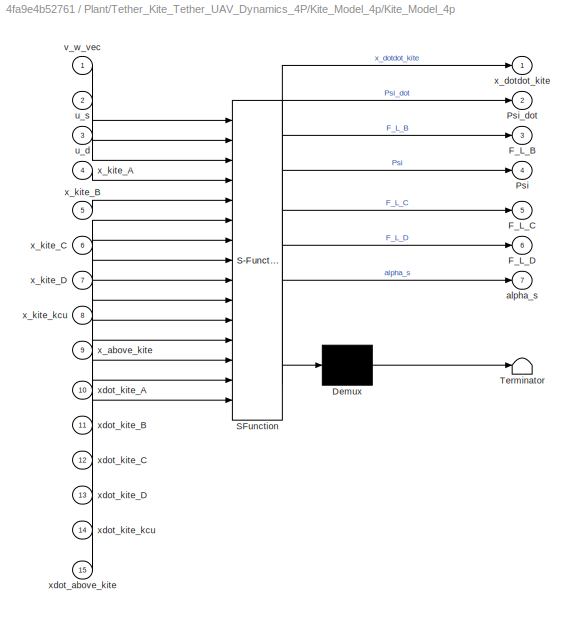
BLOCK [SubSystem] Plant/Tether_Kite_Tether_UAV_Dynamics_4P/Kite_Model_4p/Kite_Model_4p
  ErrorFcn = Stateflow.Translate.translate
  PermitHierarchicalResolution = ExplicitOnly
  Ports = [15, 7]
  RequestExecContextInheritance = off
  SFBlockType = MATLAB Function
  TreatAsAtomicUnit = on
  Variant = off
BLOCK [Demux] Plant/Tether_Kite_Tether_UAV_Dynamics_4P/Kite_Model_4p/Kite_Model_4p/ Demux 
  Outputs = 1
  Ports = [1, 1]
BLOCK [S-Function] Plant/Tether_Kite_Tether_UAV_Dynamics_4P/Kite_Model_4p/Kite_Model_4p/ SFunction 
  EnableBusSupport = on
  FunctionName = sf_sfun
  Parameters = ASideRel,A_Kite,CD_spline_coefs,CL_spline_coefs,K,K_d_s,alpha_0,alpha_d_max,alpha_s_0,alpha_s_max,c0,c_1_TR,d0,g_vec,l_s_BP,ls_AB,ls_AC,ls_AD,ls_AKcu,ls_CB,ls_CD,ls_CKcu,ls_DB,ls_DKcu,m_A,m_B,m_C,m_D,rho_air,u_d_0,u_d_max,u_s_0
  PortCounts = [15 8]
  Ports = [15, 8]
  SFunctionDeploymentMode = off
  Tag = Stateflow S-Function model_tmp_4p 21
BLOCK [Terminator] Plant/Tether_Kite_Tether_UAV_Dynamics_4P/Kite_Model_4p/Kite_Model_4p/ Terminator 
BLOCK [Outport] Plant/Tether_Kite_Tether_UAV_Dynamics_4P/Kite_Model_4p/Kite_Model_4p/F_L_B
  IconDisplay = Port number
  Port = 3
BLOCK [Outport] Plant/Tether_Kite_Tether_UAV_Dynamics_4P/Kite_Model_4p/Kite_Model_4p/F_L_C
  IconDisplay = Port number
  Port = 5
BLOCK [Outport] Plant/Tether_Kite_Tether_UAV_Dynamics_4P/Kite_Model_4p/Kite_Model_4p/F_L_D
  IconDisplay = Port number
  Port = 6
BLOCK [Outport] Plant/Tether_Kite_Tether_UAV_Dynamics_4P/Kite_Model_4p/Kite_Model_4p/Psi
  IconDisplay = Port number
  Port = 4
BLOCK [Outport] Plant/Tether_Kite_Tether_UAV_Dynamics_4P/Kite_Model_4p/Kite_Model_4p/Psi_dot
  IconDisplay = Port number
  Port = 2
BLOCK [Outport] Plant/Tether_Kite_Tether_UAV_Dynamics_4P/Kite_Model_4p/Kite_Model_4p/alpha_s
  IconDisplay = Port number
  Port = 7
BLOCK [Inport] Plant/Tether_Kite_Tether_UAV_Dynamics_4P/Kite_Model_4p/Kite_Model_4p/u_d
  IconDisplay = Port number
  Port = 3
BLOCK [Inport] Plant/Tether_Kite_Tether_UAV_Dynamics_4P/Kite_Model_4p/Kite_Model_4p/u_s
  IconDisplay = Port number
  Port = 2
BLOCK [Inport] Plant/Tether_Kite_Tether_UAV_Dynamics_4P/Kite_Model_4p/Kite_Model_4p/v_w_vec
  IconDisplay = Port number
BLOCK [Inport] Plant/Tether_Kite_Tether_UAV_Dynamics_4P/Kite_Model_4p/Kite_Model_4p/x_above_kite
  IconDisplay = Port number
  Port = 9
BLOCK [Outport] Plant/Tether_Kite_Tether_UAV_Dynamics_4P/Kite_Model_4p/Kite_Model_4p/x_dotdot_kite
  IconDisplay = Port number
BLOCK [Inport] Plant/Tether_Kite_Tether_UAV_Dynamics_4P/Kite_Model_4p/Kite_Model_4p/x_kite_A
  IconDisplay = Port number
  Port = 4
BLOCK [Inport] Plant/Tether_Kite_Tether_UAV_Dynamics_4P/Kite_Model_4p/Kite_Model_4p/x_kite_B
  IconDisplay = Port number
  Port = 5
BLOCK [Inport] Plant/Tether_Kite_Tether_UAV_Dynamics_4P/Kite_Model_4p/Kite_Model_4p/x_kite_C
  IconDisplay = Port number
  Port = 6
BLOCK [Inport] Plant/Tether_Kite_Tether_UAV_Dynamics_4P/Kite_Model_4p/Kite_Model_4p/x_kite_D
  IconDisplay = Port number
  Port = 7
BLOCK [Inport] Plant/Tether_Kite_Tether_UAV_Dynamics_4P/Kite_Model_4p/Kite_Model_4p/x_kite_kcu
  IconDisplay = Port number
  Port = 8
BLOCK [Inport] Plant/Tether_Kite_Tether_UAV_Dynamics_4P/Kite_Model_4p/Kite_Model_4p/xdot_above_kite
  IconDisplay = Port number
  Port = 15
BLOCK [Inport] Plant/Tether_Kite_Tether_UAV_Dynamics_4P/Kite_Model_4p/Kite_Model_4p/xdot_kite_A
  IconDisplay = Port number
  Port = 10
BLOCK [Inport] Plant/Tether_Kite_Tether_UAV_Dynamics_4P/Kite_Model_4p/Kite_Model_4p/xdot_kite_B
  IconDisplay = Port number
  Port = 11
BLOCK [Inport] Plant/Tether_Kite_Tether_UAV_Dynamics_4P/Kite_Model_4p/Kite_Model_4p/xdot_kite_C
  IconDisplay = Port number
  Port = 12
BLOCK [Inport] Plant/Tether_Kite_Tether_UAV_Dynamics_4P/Kite_Model_4p/Kite_Model_4p/xdot_kite_D
  IconDisplay = Port number
  Port = 13
BLOCK [Inport] Plant/Tether_Kite_Tether_UAV_Dynamics_4P/Kite_Model_4p/Kite_Model_4p/xdot_kite_kcu
  IconDisplay = Port number
  Port = 14
BLOCK [Outport] Plant/Tether_Kite_Tether_UAV_Dynamics_4P/Kite_Model_4p/Psi
  IconDisplay = Port number
  Port = 2
BLOCK [Terminator] Plant/Tether_Kite_Tether_UAV_Dynamics_4P/Kite_Model_4p/Terminator
BLOCK [Terminator] Plant/Tether_Kite_Tether_UAV_Dynamics_4P/Kite_Model_4p/Terminator1
BLOCK [Scope] Plant/Tether_Kite_Tether_UAV_Dynamics_4P/Kite_Model_4p/alpha_s
  Ports = [1]
  ScopeSpecificationString = Simulink.scopes.TimeScopeBlockCfg('CurrentConfiguration', extmgr.ConfigurationSet(extmgr.Configuration('Core','General UI',true),extmgr.Configuration('Core','Source UI',true),extmgr.Configuration('Sources','WiredSimulink',true,'DataLoggingVariableName','ScopeData1'),extmgr.Configuration('Visuals','Time Domain',true,'SerializedDisplays',{struct('MinYLimReal','-28.53749','MaxYLimReal','70.97862','YL...<+1460ch>
BLOCK [Inport] Plant/Tether_Kite_Tether_UAV_Dynamics_4P/Kite_Model_4p/kite_control
  IconDisplay = Port number
  Port = 5
BLOCK [Inport] Plant/Tether_Kite_Tether_UAV_Dynamics_4P/Kite_Model_4p/launch_flag
  IconDisplay = Port number
  Port = 2
BLOCK [Selector] Plant/Tether_Kite_Tether_UAV_Dynamics_4P/Kite_Model_4p/particle between uav and kite
  IndexOptions = Index vector (dialog)
  Indices = [3*n_t_p+13: 3*n_t_p+15]
  InputPortWidth = 3*n_t_p +18
  OutputSizes = 1
  Ports = [1, 1]
BLOCK [Selector] Plant/Tether_Kite_Tether_UAV_Dynamics_4P/Kite_Model_4p/particle between uav and kite1
  IndexOptions = Index vector (dialog)
  Indices = [3*n_t_p+13: 3*n_t_p+15]
  InputPortWidth = 3*n_t_p +18
  OutputSizes = 1
  Ports = [1, 1]
BLOCK [Inport] Plant/Tether_Kite_Tether_UAV_Dynamics_4P/Kite_Model_4p/v_w_vec
  IconDisplay = Port number
  Port = 4
BLOCK [Outport] Plant/Tether_Kite_Tether_UAV_Dynamics_4P/Kite_Model_4p/x_dotdot_kite
  IconDisplay = Port number
BLOCK [Selector] Plant/Tether_Kite_Tether_UAV_Dynamics_4P/Kite_Model_4p/x_kite_Axyz
  IndexOptions = Index vector (dialog)
  Indices = [3*n_t_p+1:3*n_t_p+3]
  InputPortWidth = 3*n_t_p + 18
  OutputSizes = 1
  Ports = [1, 1]
BLOCK [Selector] Plant/Tether_Kite_Tether_UAV_Dynamics_4P/Kite_Model_4p/x_kite_Axyz1
  IndexOptions = Index vector (dialog)
  Indices = [3*n_t_p+1:3*n_t_p+3]
  InputPortWidth = 3*n_t_p + 18
  OutputSizes = 1
  Ports = [1, 1]
BLOCK [Selector] Plant/Tether_Kite_Tether_UAV_Dynamics_4P/Kite_Model_4p/x_kite_Bxyz1
  IndexOptions = Index vector (dialog)
  Indices = [3*n_t_p+4:3*n_t_p+6]
  InputPortWidth = 3*n_t_p + 18
  OutputSizes = 1
  Ports = [1, 1]
BLOCK [Selector] Plant/Tether_Kite_Tether_UAV_Dynamics_4P/Kite_Model_4p/x_kite_Bxyz2
  IndexOptions = Index vector (dialog)
  Indices = [3*n_t_p+4:3*n_t_p+6]
  InputPortWidth = 3*n_t_p + 18
  OutputSizes = 1
  Ports = [1, 1]
BLOCK [Selector] Plant/Tether_Kite_Tether_UAV_Dynamics_4P/Kite_Model_4p/x_kite_Cxyz1
  IndexOptions = Index vector (dialog)
  Indices = [3*n_t_p+7:3*n_t_p+9]
  InputPortWidth = 3*n_t_p + 18
  OutputSizes = 1
  Ports = [1, 1]
BLOCK [Selector] Plant/Tether_Kite_Tether_UAV_Dynamics_4P/Kite_Model_4p/x_kite_Cxyz3
  IndexOptions = Index vector (dialog)
  Indices = [3*n_t_p+7:3*n_t_p+9]
  InputPortWidth = 3*n_t_p + 18
  OutputSizes = 1
  Ports = [1, 1]
BLOCK [Selector] Plant/Tether_Kite_Tether_UAV_Dynamics_4P/Kite_Model_4p/x_kite_Dxyz1
  IndexOptions = Index vector (dialog)
  Indices = [3*n_t_p+10:3*n_t_p+12]
  InputPortWidth = 3*n_t_p + 18
  OutputSizes = 1
  Ports = [1, 1]
BLOCK [Selector] Plant/Tether_Kite_Tether_UAV_Dynamics_4P/Kite_Model_4p/x_kite_Dxyz4
  IndexOptions = Index vector (dialog)
  Indices = [3*n_t_p+10:3*n_t_p+12]
  InputPortWidth = 3*n_t_p + 18
  OutputSizes = 1
  Ports = [1, 1]
BLOCK [Selector] Plant/Tether_Kite_Tether_UAV_Dynamics_4P/Kite_Model_4p/x_kite_Kcu
  IndexOptions = Index vector (dialog)
  Indices = [3*n_t_p-2:3*n_t_p]
  InputPortWidth = 3*n_t_p +18
  OutputSizes = 1
  Ports = [1, 1]
BLOCK [Selector] Plant/Tether_Kite_Tether_UAV_Dynamics_4P/Kite_Model_4p/x_kite_Kcu1
  IndexOptions = Index vector (dialog)
  Indices = [3*n_t_p-2:3*n_t_p]
  InputPortWidth = 3*n_t_p +18
  OutputSizes = 1
  Ports = [1, 1]
BLOCK [Inport] Plant/Tether_Kite_Tether_UAV_Dynamics_4P/Kite_Model_4p/x_p
  IconDisplay = Port number
  Port = 3
BLOCK [Inport] Plant/Tether_Kite_Tether_UAV_Dynamics_4P/Kite_Model_4p/x_p_dot
  IconDisplay = Port number
BLOCK [Concatenate] Plant/Tether_Kite_Tether_UAV_Dynamics_4P/Matrix Concatenate
  ConcatenateDimension = 2
  NumInputs = 8
  Ports = [8, 1]
BLOCK [Outport] Plant/Tether_Kite_Tether_UAV_Dynamics_4P/Psi_kite
  IconDisplay = Port number
  Port = 6
BLOCK [Inport] Plant/Tether_Kite_Tether_UAV_Dynamics_4P/RPMs
  IconDisplay = Port number
BLOCK [Selector] Plant/Tether_Kite_Tether_UAV_Dynamics_4P/Selector1
  IndexOptions = Index vector (dialog)
  Indices = [3*n_t_p + 19:3*n_t_p + 21]
  InputPortWidth = 3*n_t_p + 26
  OutputSizes = 1
  Ports = [1, 1]
BLOCK [Selector] Plant/Tether_Kite_Tether_UAV_Dynamics_4P/Selector2
  IndexOptions = Index vector (dialog)
  Indices = [3*n_t_p + 22:3*n_t_p + 24]
  InputPortWidth = 3*n_t_p + 26
  OutputSizes = 1
  Ports = [1, 1]
BLOCK [Selector] Plant/Tether_Kite_Tether_UAV_Dynamics_4P/Selector3
  IndexOptions = Index vector (dialog)
  Indices = [1 : 3*n_t_p+18]
  InputPortWidth = 3*n_t_p + 26
  OutputSizes = 1
  Ports = [1, 1]
BLOCK [Selector] Plant/Tether_Kite_Tether_UAV_Dynamics_4P/Selector4
  IndexOptions = Index vector (dialog)
  Indices = [3*n_t_p + 25]
  InputPortWidth = 3*n_t_p + 26
  OutputSizes = 1
  Ports = [1, 1]
BLOCK [Selector] Plant/Tether_Kite_Tether_UAV_Dynamics_4P/Selector5
  IndexOptions = Index vector (dialog)
  Indices = 3*n_t_p + 26
  InputPortWidth = 3*n_t_p + 26
  OutputSizes = 1
  Ports = [1, 1]
BLOCK [Terminator] Plant/Tether_Kite_Tether_UAV_Dynamics_4P/Terminator
BLOCK [SubSystem] Plant/Tether_Kite_Tether_UAV_Dynamics_4P/Tethermodel_Ground2Kite
  Ports = [5, 3]
  RequestExecContextInheritance = off
  Variant = off
BLOCK [SubSystem] Plant/Tether_Kite_Tether_UAV_Dynamics_4P/Tethermodel_Ground2Kite/Tether_Ground2Kite
  ErrorFcn = Stateflow.Translate.translate
  PermitHierarchicalResolution = ExplicitOnly
  Ports = [11, 3]
  RequestExecContextInheritance = off
  SFBlockType = MATLAB Function
  TreatAsAtomicUnit = on
  Variant = off
BLOCK [Demux] Plant/Tether_Kite_Tether_UAV_Dynamics_4P/Tethermodel_Ground2Kite/Tether_Ground2Kite/ Demux 
  Outputs = 1
  Ports = [1, 1]
BLOCK [S-Function] Plant/Tether_Kite_Tether_UAV_Dynamics_4P/Tethermodel_Ground2Kite/Tether_Ground2Kite/ SFunction 
  EnableBusSupport = on
  FunctionName = sf_sfun
  Parameters = CD_tether,c0,d0,d_tether,g_vec,ls_AKcu,ls_CKcu,ls_DKcu,m_kcu,rho_air,rho_t
  PortCounts = [11 4]
  Ports = [11, 4]
  SFunctionDeploymentMode = off
  Tag = Stateflow S-Function model_tmp_4p 32
BLOCK [Terminator] Plant/Tether_Kite_Tether_UAV_Dynamics_4P/Tethermodel_Ground2Kite/Tether_Ground2Kite/ Terminator 
BLOCK [Inport] Plant/Tether_Kite_Tether_UAV_Dynamics_4P/Tethermodel_Ground2Kite/Tether_Ground2Kite/l_s
  IconDisplay = Port number
  Port = 5
BLOCK [Outport] Plant/Tether_Kite_Tether_UAV_Dynamics_4P/Tethermodel_Ground2Kite/Tether_Ground2Kite/l_s_dot
  IconDisplay = Port number
  Port = 3
BLOCK [Outport] Plant/Tether_Kite_Tether_UAV_Dynamics_4P/Tethermodel_Ground2Kite/Tether_Ground2Kite/l_tether
  IconDisplay = Port number
  Port = 2
BLOCK [Inport] Plant/Tether_Kite_Tether_UAV_Dynamics_4P/Tethermodel_Ground2Kite/Tether_Ground2Kite/v_ro_set
  IconDisplay = Port number
  Port = 4
BLOCK [Inport] Plant/Tether_Kite_Tether_UAV_Dynamics_4P/Tethermodel_Ground2Kite/Tether_Ground2Kite/v_w_vec
  IconDisplay = Port number
  Port = 3
BLOCK [Inport] Plant/Tether_Kite_Tether_UAV_Dynamics_4P/Tethermodel_Ground2Kite/Tether_Ground2Kite/x
  IconDisplay = Port number
  Port = 2
BLOCK [Inport] Plant/Tether_Kite_Tether_UAV_Dynamics_4P/Tethermodel_Ground2Kite/Tether_Ground2Kite/x_dot
  IconDisplay = Port number
BLOCK [Outport] Plant/Tether_Kite_Tether_UAV_Dynamics_4P/Tethermodel_Ground2Kite/Tether_Ground2Kite/x_dotdot_TetherG2K
  IconDisplay = Port number
BLOCK [Inport] Plant/Tether_Kite_Tether_UAV_Dynamics_4P/Tethermodel_Ground2Kite/Tether_Ground2Kite/x_kite_A
  IconDisplay = Port number
  Port = 6
BLOCK [Inport] Plant/Tether_Kite_Tether_UAV_Dynamics_4P/Tethermodel_Ground2Kite/Tether_Ground2Kite/x_kite_C
  IconDisplay = Port number
  Port = 7
BLOCK [Inport] Plant/Tether_Kite_Tether_UAV_Dynamics_4P/Tethermodel_Ground2Kite/Tether_Ground2Kite/x_kite_D
  IconDisplay = Port number
  Port = 8
BLOCK [Inport] Plant/Tether_Kite_Tether_UAV_Dynamics_4P/Tethermodel_Ground2Kite/Tether_Ground2Kite/xdot_kite_A
  IconDisplay = Port number
  Port = 9
BLOCK [Inport] Plant/Tether_Kite_Tether_UAV_Dynamics_4P/Tethermodel_Ground2Kite/Tether_Ground2Kite/xdot_kite_C
  IconDisplay = Port number
  Port = 10
BLOCK [Inport] Plant/Tether_Kite_Tether_UAV_Dynamics_4P/Tethermodel_Ground2Kite/Tether_Ground2Kite/xdot_kite_D
  IconDisplay = Port number
  Port = 11
BLOCK [Inport] Plant/Tether_Kite_Tether_UAV_Dynamics_4P/Tethermodel_Ground2Kite/l_s
  IconDisplay = Port number
  Port = 5
BLOCK [Outport] Plant/Tether_Kite_Tether_UAV_Dynamics_4P/Tethermodel_Ground2Kite/l_s_dot
  IconDisplay = Port number
  Port = 3
BLOCK [Outport] Plant/Tether_Kite_Tether_UAV_Dynamics_4P/Tethermodel_Ground2Kite/l_tether
  IconDisplay = Port number
  Port = 2
BLOCK [Selector] Plant/Tether_Kite_Tether_UAV_Dynamics_4P/Tethermodel_Ground2Kite/select_Tether_particles
  IndexOptions = Index vector (dialog)
  Indices = [1 : 3*n_t_p]
  InputPortWidth = 3*n_t_p+18
  OutputSizes = 1
  Ports = [1, 1]
BLOCK [Selector] Plant/Tether_Kite_Tether_UAV_Dynamics_4P/Tethermodel_Ground2Kite/select_Tether_particles1
  IndexOptions = Index vector (dialog)
  Indices = [1 : 3*n_t_p]
  InputPortWidth = 3*n_t_p+18
  OutputSizes = 1
  Ports = [1, 1]
BLOCK [Inport] Plant/Tether_Kite_Tether_UAV_Dynamics_4P/Tethermodel_Ground2Kite/v_ro_set
  IconDisplay = Port number
  Port = 4
BLOCK [Inport] Plant/Tether_Kite_Tether_UAV_Dynamics_4P/Tethermodel_Ground2Kite/v_w_vec
  IconDisplay = Port number
  Port = 3
BLOCK [Inport] Plant/Tether_Kite_Tether_UAV_Dynamics_4P/Tethermodel_Ground2Kite/x
  IconDisplay = Port number
  Port = 2
BLOCK [Inport] Plant/Tether_Kite_Tether_UAV_Dynamics_4P/Tethermodel_Ground2Kite/x_dot
  IconDisplay = Port number
BLOCK [Outport] Plant/Tether_Kite_Tether_UAV_Dynamics_4P/Tethermodel_Ground2Kite/x_dotdot_TetherG2K
  IconDisplay = Port number
BLOCK [Selector] Plant/Tether_Kite_Tether_UAV_Dynamics_4P/Tethermodel_Ground2Kite/x_kite_Axyz
  IndexOptions = Index vector (dialog)
  Indices = [3*n_t_p+1:3*n_t_p+3]
  InputPortWidth = 3*n_t_p+18
  OutputSizes = 1
  Ports = [1, 1]
BLOCK [Selector] Plant/Tether_Kite_Tether_UAV_Dynamics_4P/Tethermodel_Ground2Kite/x_kite_Axyz1
  IndexOptions = Index vector (dialog)
  Indices = [3*n_t_p+1:3*n_t_p+3]
  InputPortWidth = 3*n_t_p+18
  OutputSizes = 1
  Ports = [1, 1]
BLOCK [Selector] Plant/Tether_Kite_Tether_UAV_Dynamics_4P/Tethermodel_Ground2Kite/x_kite_Cxyz1
  IndexOptions = Index vector (dialog)
  Indices = [3*n_t_p+7:3*n_t_p+9]
  InputPortWidth = 3*n_t_p+18
  OutputSizes = 1
  Ports = [1, 1]
BLOCK [Selector] Plant/Tether_Kite_Tether_UAV_Dynamics_4P/Tethermodel_Ground2Kite/x_kite_Cxyz3
  IndexOptions = Index vector (dialog)
  Indices = [3*n_t_p+7:3*n_t_p+9]
  InputPortWidth = 3*n_t_p+18
  OutputSizes = 1
  Ports = [1, 1]
BLOCK [Selector] Plant/Tether_Kite_Tether_UAV_Dynamics_4P/Tethermodel_Ground2Kite/x_kite_Dxyz1
  IndexOptions = Index vector (dialog)
  Indices = [3*n_t_p+10:3*n_t_p+12]
  InputPortWidth = 3*n_t_p+18
  OutputSizes = 1
  Ports = [1, 1]
BLOCK [Selector] Plant/Tether_Kite_Tether_UAV_Dynamics_4P/Tethermodel_Ground2Kite/x_kite_Dxyz4
  IndexOptions = Index vector (dialog)
  Indices = [3*n_t_p+10:3*n_t_p+12]
  InputPortWidth = 3*n_t_p+18
  OutputSizes = 1
  Ports = [1, 1]
BLOCK [SubSystem] Plant/Tether_Kite_Tether_UAV_Dynamics_4P/Tethermodel_Kite2UAV
  Ports = [4, 1]
  RequestExecContextInheritance = off
  Variant = off
BLOCK [SubSystem] Plant/Tether_Kite_Tether_UAV_Dynamics_4P/Tethermodel_Kite2UAV/Tether_Kite2UAV
  ErrorFcn = Stateflow.Translate.translate
  PermitHierarchicalResolution = ExplicitOnly
  Ports = [8, 1]
  RequestExecContextInheritance = off
  SFBlockType = MATLAB Function
  TreatAsAtomicUnit = on
  Variant = off
BLOCK [Demux] Plant/Tether_Kite_Tether_UAV_Dynamics_4P/Tethermodel_Kite2UAV/Tether_Kite2UAV/ Demux 
  Outputs = 1
  Ports = [1, 1]
BLOCK [S-Function] Plant/Tether_Kite_Tether_UAV_Dynamics_4P/Tethermodel_Kite2UAV/Tether_Kite2UAV/ SFunction 
  EnableBusSupport = on
  FunctionName = sf_sfun
  Parameters = CD_tether,c0,d0,d_tether,g_vec,l_s_BP,l_s_PUav,m_p,rho_air
  PortCounts = [8 2]
  Ports = [8, 2]
  SFunctionDeploymentMode = off
  Tag = Stateflow S-Function model_tmp_4p 31
BLOCK [Terminator] Plant/Tether_Kite_Tether_UAV_Dynamics_4P/Tethermodel_Kite2UAV/Tether_Kite2UAV/ Terminator 
BLOCK [Inport] Plant/Tether_Kite_Tether_UAV_Dynamics_4P/Tethermodel_Kite2UAV/Tether_Kite2UAV/launch_flag
  IconDisplay = Port number
BLOCK [Inport] Plant/Tether_Kite_Tether_UAV_Dynamics_4P/Tethermodel_Kite2UAV/Tether_Kite2UAV/v_w_vec
  IconDisplay = Port number
  Port = 8
BLOCK [Outport] Plant/Tether_Kite_Tether_UAV_Dynamics_4P/Tethermodel_Kite2UAV/Tether_Kite2UAV/x_dotdot_p
  IconDisplay = Port number
BLOCK [Inport] Plant/Tether_Kite_Tether_UAV_Dynamics_4P/Tethermodel_Kite2UAV/Tether_Kite2UAV/xp
  IconDisplay = Port number
  Port = 3
BLOCK [Inport] Plant/Tether_Kite_Tether_UAV_Dynamics_4P/Tethermodel_Kite2UAV/Tether_Kite2UAV/xp_above
  IconDisplay = Port number
  Port = 2
BLOCK [Inport] Plant/Tether_Kite_Tether_UAV_Dynamics_4P/Tethermodel_Kite2UAV/Tether_Kite2UAV/xp_below
  IconDisplay = Port number
  Port = 4
BLOCK [Inport] Plant/Tether_Kite_Tether_UAV_Dynamics_4P/Tethermodel_Kite2UAV/Tether_Kite2UAV/xp_dot
  IconDisplay = Port number
  Port = 6
BLOCK [Inport] Plant/Tether_Kite_Tether_UAV_Dynamics_4P/Tethermodel_Kite2UAV/Tether_Kite2UAV/xp_dot_above
  IconDisplay = Port number
  Port = 5
BLOCK [Inport] Plant/Tether_Kite_Tether_UAV_Dynamics_4P/Tethermodel_Kite2UAV/Tether_Kite2UAV/xp_dot_below
  IconDisplay = Port number
  Port = 7
BLOCK [Inport] Plant/Tether_Kite_Tether_UAV_Dynamics_4P/Tethermodel_Kite2UAV/launch_flag
  IconDisplay = Port number
  Port = 2
BLOCK [Selector] Plant/Tether_Kite_Tether_UAV_Dynamics_4P/Tethermodel_Kite2UAV/particle between uav and kite
  IndexOptions = Index vector (dialog)
  Indices = [3*n_t_p+13: 3*n_t_p+15]
  InputPortWidth = 3*n_t_p +18
  OutputSizes = 1
  Ports = [1, 1]
BLOCK [Selector] Plant/Tether_Kite_Tether_UAV_Dynamics_4P/Tethermodel_Kite2UAV/particle between uav and kite1
  IndexOptions = Index vector (dialog)
  Indices = [3*n_t_p+13: 3*n_t_p+15]
  InputPortWidth = 3*n_t_p +18
  OutputSizes = 1
  Ports = [1, 1]
BLOCK [Selector] Plant/Tether_Kite_Tether_UAV_Dynamics_4P/Tethermodel_Kite2UAV/uav
  IndexOptions = Index vector (dialog)
  Indices = [3*n_t_p + 16: 3*n_t_p + 18]
  InputPortWidth = 3*n_t_p +18
  OutputSizes = 1
  Ports = [1, 1]
BLOCK [Inport] Plant/Tether_Kite_Tether_UAV_Dynamics_4P/Tethermodel_Kite2UAV/v_w_vec
  IconDisplay = Port number
  Port = 4
BLOCK [Outport] Plant/Tether_Kite_Tether_UAV_Dynamics_4P/Tethermodel_Kite2UAV/x_dotdot_p
  IconDisplay = Port number
BLOCK [Selector] Plant/Tether_Kite_Tether_UAV_Dynamics_4P/Tethermodel_Kite2UAV/x_kite_B
  IndexOptions = Index vector (dialog)
  Indices = [3*n_t_p + 4: 3*n_t_p + 6]
  InputPortWidth = 3*n_t_p +18
  OutputSizes = 1
  Ports = [1, 1]
BLOCK [Selector] Plant/Tether_Kite_Tether_UAV_Dynamics_4P/Tethermodel_Kite2UAV/x_kite_B1
  IndexOptions = Index vector (dialog)
  Indices = [3*n_t_p + 4: 3*n_t_p + 6]
  InputPortWidth = 3*n_t_p +18
  OutputSizes = 1
  Ports = [1, 1]
BLOCK [Selector] Plant/Tether_Kite_Tether_UAV_Dynamics_4P/Tethermodel_Kite2UAV/x_kite_B5
  IndexOptions = Index vector (dialog)
  Indices = [3*n_t_p + 16: 3*n_t_p + 18]
  InputPortWidth = 3*n_t_p +18
  OutputSizes = 1
  Ports = [1, 1]
BLOCK [Inport] Plant/Tether_Kite_Tether_UAV_Dynamics_4P/Tethermodel_Kite2UAV/x_p
  IconDisplay = Port number
  Port = 3
BLOCK [Inport] Plant/Tether_Kite_Tether_UAV_Dynamics_4P/Tethermodel_Kite2UAV/x_p_dot
  IconDisplay = Port number
BLOCK [SubSystem] Plant/Tether_Kite_Tether_UAV_Dynamics_4P/UAV_Model
  Ports = [6, 3]
  RequestExecContextInheritance = off
  Variant = off
BLOCK [Goto] Plant/Tether_Kite_Tether_UAV_Dynamics_4P/UAV_Model/Goto
  GotoTag = disturbance
  TagVisibility = global
BLOCK [Selector] Plant/Tether_Kite_Tether_UAV_Dynamics_4P/UAV_Model/Kite1
  IndexOptions = Index vector (dialog)
  Indices = [3*n_t_p + 16:3*n_t_p + 18]
  InputPortWidth = 3*n_t_p + 18
  OutputSizes = 1
  Ports = [1, 1]
BLOCK [Selector] Plant/Tether_Kite_Tether_UAV_Dynamics_4P/UAV_Model/Kite2
  IndexOptions = Index vector (dialog)
  Indices = [3*n_t_p + 16:3*n_t_p + 18]
  InputPortWidth = 3*n_t_p + 18
  OutputSizes = 1
  Ports = [1, 1]
BLOCK [Selector] Plant/Tether_Kite_Tether_UAV_Dynamics_4P/UAV_Model/Kite3
  IndexOptions = Index vector (dialog)
  Indices = [3*n_t_p + 13:3*n_t_p + 15]
  InputPortWidth = 3*n_t_p + 18
  OutputSizes = 1
  Ports = [1, 1]
BLOCK [Selector] Plant/Tether_Kite_Tether_UAV_Dynamics_4P/UAV_Model/Kite4
  IndexOptions = Index vector (dialog)
  Indices = [3*n_t_p + 13:3*n_t_p + 15]
  InputPortWidth = 3*n_t_p + 18
  OutputSizes = 1
  Ports = [1, 1]
BLOCK [SubSystem] Plant/Tether_Kite_Tether_UAV_Dynamics_4P/UAV_Model/Rotate thrust vector according to attitude
  ErrorFcn = Stateflow.Translate.translate
  PermitHierarchicalResolution = ExplicitOnly
  Ports = [2, 1]
  RequestExecContextInheritance = off
  SFBlockType = MATLAB Function
  TreatAsAtomicUnit = on
  Variant = off
BLOCK [Demux] Plant/Tether_Kite_Tether_UAV_Dynamics_4P/UAV_Model/Rotate thrust vector according to attitude/ Demux 
  Outputs = 1
  Ports = [1, 1]
BLOCK [S-Function] Plant/Tether_Kite_Tether_UAV_Dynamics_4P/UAV_Model/Rotate thrust vector according to attitude/ SFunction 
  EnableBusSupport = on
  FunctionName = sf_sfun
  PortCounts = [2 2]
  Ports = [2, 2]
  SFunctionDeploymentMode = off
  Tag = Stateflow S-Function model_tmp_4p 24
BLOCK [Terminator] Plant/Tether_Kite_Tether_UAV_Dynamics_4P/UAV_Model/Rotate thrust vector according to attitude/ Terminator 
BLOCK [Inport] Plant/Tether_Kite_Tether_UAV_Dynamics_4P/UAV_Model/Rotate thrust vector according to attitude/eta
  IconDisplay = Port number
  Port = 2
BLOCK [Outport] Plant/Tether_Kite_Tether_UAV_Dynamics_4P/UAV_Model/Rotate thrust vector according to attitude/u_Thrust_B
  IconDisplay = Port number
BLOCK [Inport] Plant/Tether_Kite_Tether_UAV_Dynamics_4P/UAV_Model/Rotate thrust vector according to attitude/u_Thrust_I
  IconDisplay = Port number
BLOCK [ToWorkspace] Plant/Tether_Kite_Tether_UAV_Dynamics_4P/UAV_Model/To Workspace4
  FixptAsFi = on
  MaxDataPoints = inf
  Ports = [1]
  SampleTime = sample_log
  Save2DSignal = 3-D array (concatenate along third dimension)
  SaveFormat = Timeseries
  VariableName = F_T_b
BLOCK [SubSystem] Plant/Tether_Kite_Tether_UAV_Dynamics_4P/UAV_Model/UAV_Dynamics
  ErrorFcn = Stateflow.Translate.translate
  PermitHierarchicalResolution = ExplicitOnly
  Ports = [8, 4]
  RequestExecContextInheritance = off
  SFBlockType = MATLAB Function
  TreatAsAtomicUnit = on
  Variant = off
BLOCK [Demux] Plant/Tether_Kite_Tether_UAV_Dynamics_4P/UAV_Model/UAV_Dynamics/ Demux 
  Outputs = 1
  Ports = [1, 1]
BLOCK [S-Function] Plant/Tether_Kite_Tether_UAV_Dynamics_4P/UAV_Model/UAV_Dynamics/ SFunction 
  EnableBusSupport = on
  FunctionName = sf_sfun
  Parameters = J,Jinv,c0,d0,g_vec,l_s0,m_uav
  PortCounts = [8 5]
  Ports = [8, 5]
  SFunctionDeploymentMode = off
  Tag = Stateflow S-Function model_tmp_4p 34
BLOCK [Terminator] Plant/Tether_Kite_Tether_UAV_Dynamics_4P/UAV_Model/UAV_Dynamics/ Terminator 
BLOCK [Inport] Plant/Tether_Kite_Tether_UAV_Dynamics_4P/UAV_Model/UAV_Dynamics/Thrust
  IconDisplay = Port number
BLOCK [Outport] Plant/Tether_Kite_Tether_UAV_Dynamics_4P/UAV_Model/UAV_Dynamics/disturbance
  IconDisplay = Port number
  Port = 4
BLOCK [Inport] Plant/Tether_Kite_Tether_UAV_Dynamics_4P/UAV_Model/UAV_Dynamics/eta
  IconDisplay = Port number
  Port = 8
BLOCK [Outport] Plant/Tether_Kite_Tether_UAV_Dynamics_4P/UAV_Model/UAV_Dynamics/eta_dot
  IconDisplay = Port number
  Port = 3
BLOCK [Inport] Plant/Tether_Kite_Tether_UAV_Dynamics_4P/UAV_Model/UAV_Dynamics/omega
  IconDisplay = Port number
  Port = 6
BLOCK [Outport] Plant/Tether_Kite_Tether_UAV_Dynamics_4P/UAV_Model/UAV_Dynamics/omega_dot
  IconDisplay = Port number
  Port = 2
BLOCK [Inport] Plant/Tether_Kite_Tether_UAV_Dynamics_4P/UAV_Model/UAV_Dynamics/u_M
  IconDisplay = Port number
  Port = 7
BLOCK [Inport] Plant/Tether_Kite_Tether_UAV_Dynamics_4P/UAV_Model/UAV_Dynamics/x_UAV
  IconDisplay = Port number
  Port = 2
BLOCK [Inport] Plant/Tether_Kite_Tether_UAV_Dynamics_4P/UAV_Model/UAV_Dynamics/x_below_UAV
  IconDisplay = Port number
  Port = 3
BLOCK [Inport] Plant/Tether_Kite_Tether_UAV_Dynamics_4P/UAV_Model/UAV_Dynamics/x_dot_UAV
  IconDisplay = Port number
  Port = 4
BLOCK [Inport] Plant/Tether_Kite_Tether_UAV_Dynamics_4P/UAV_Model/UAV_Dynamics/x_dot_belowUAV
  IconDisplay = Port number
  Port = 5
BLOCK [Outport] Plant/Tether_Kite_Tether_UAV_Dynamics_4P/UAV_Model/UAV_Dynamics/x_dotdot_uav_trans
  IconDisplay = Port number
BLOCK [Inport] Plant/Tether_Kite_Tether_UAV_Dynamics_4P/UAV_Model/eta
  IconDisplay = Port number
  Port = 5
BLOCK [Outport] Plant/Tether_Kite_Tether_UAV_Dynamics_4P/UAV_Model/eta_dot
  IconDisplay = Port number
  Port = 3
BLOCK [Inport] Plant/Tether_Kite_Tether_UAV_Dynamics_4P/UAV_Model/omega
  IconDisplay = Port number
  Port = 6
BLOCK [Outport] Plant/Tether_Kite_Tether_UAV_Dynamics_4P/UAV_Model/omega_dot
  IconDisplay = Port number
  Port = 2
BLOCK [Inport] Plant/Tether_Kite_Tether_UAV_Dynamics_4P/UAV_Model/u_M
  IconDisplay = Port number
  Port = 3
BLOCK [Inport] Plant/Tether_Kite_Tether_UAV_Dynamics_4P/UAV_Model/u_Thrust_I
  IconDisplay = Port number
  Port = 4
BLOCK [Outport] Plant/Tether_Kite_Tether_UAV_Dynamics_4P/UAV_Model/x_dotdot_uav
  IconDisplay = Port number
BLOCK [Inport] Plant/Tether_Kite_Tether_UAV_Dynamics_4P/UAV_Model/x_p
  IconDisplay = Port number
  Port = 2
BLOCK [Inport] Plant/Tether_Kite_Tether_UAV_Dynamics_4P/UAV_Model/x_p_dot
  IconDisplay = Port number
BLOCK [Outport] Plant/Tether_Kite_Tether_UAV_Dynamics_4P/eta
  IconDisplay = Port number
  Port = 4
BLOCK [Inport] Plant/Tether_Kite_Tether_UAV_Dynamics_4P/kite_control
  IconDisplay = Port number
  Port = 5
BLOCK [Outport] Plant/Tether_Kite_Tether_UAV_Dynamics_4P/l_tether
  IconDisplay = Port number
  Port = 3
BLOCK [Inport] Plant/Tether_Kite_Tether_UAV_Dynamics_4P/launch_flag
  IconDisplay = Port number
  Port = 4
BLOCK [Outport] Plant/Tether_Kite_Tether_UAV_Dynamics_4P/omega
  IconDisplay = Port number
  Port = 5
BLOCK [Scope] Plant/Tether_Kite_Tether_UAV_Dynamics_4P/psikite
  Ports = [1]
  ScopeSpecificationString = Simulink.scopes.TimeScopeBlockCfg('CurrentConfiguration', extmgr.ConfigurationSet(extmgr.Configuration('Core','General UI',true),extmgr.Configuration('Core','Source UI',true),extmgr.Configuration('Sources','WiredSimulink',true,'DataLoggingVariableName','ScopeData1'),extmgr.Configuration('Visuals','Time Domain',true,'SerializedDisplays',{struct('MinYLimReal','-0.22714','MaxYLimReal','2.04429','YLab...<+1450ch>
BLOCK [Inport] Plant/Tether_Kite_Tether_UAV_Dynamics_4P/v_ro_set
  IconDisplay = Port number
  Port = 3
BLOCK [Inport] Plant/Tether_Kite_Tether_UAV_Dynamics_4P/v_w_vec
  IconDisplay = Port number
  Port = 2
BLOCK [Outport] Plant/Tether_Kite_Tether_UAV_Dynamics_4P/x
  IconDisplay = Port number
  Port = 2
BLOCK [Outport] Plant/Tether_Kite_Tether_UAV_Dynamics_4P/x_dot
  IconDisplay = Port number
BLOCK [Outport] Plant/Tether_Length
  IconDisplay = Port number
  Port = 2
BLOCK [Outport] Plant/drone_states
  IconDisplay = Port number
  OutDataTypeStr = Bus: Drone_states
  Port = 3
BLOCK [Inport] Plant/kite_control
  IconDisplay = Port number
  Port = 5
BLOCK [Inport] Plant/launch_flag
  IconDisplay = Port number
  Port = 4
BLOCK [Outport] Plant/pos_Kite
  IconDisplay = Port number
BLOCK [Outport] Plant/psi_kite
  IconDisplay = Port number
  Port = 4
BLOCK [Inport] Plant/v_ro_set
  IconDisplay = Port number
  Port = 2
BLOCK [Inport] Plant/v_w_vec
  IconDisplay = Port number
  Port = 3
BLOCK [Outport] Plant/xdot_kite_B
  IconDisplay = Port number
  Port = 5
ANNOTATION (root): VTOL based Kite launching - Simulation Framework
ANNOTATION Controller/Kite_Controlle_NDI: u_d_0 leads to alpha_d = 0, which means fully powered kite. u_d_max => fully depowered kite.
ANNOTATION Controller/Kite_Controller: u_d_0 leads to alpha_d = 0, which means fully powered kite. u_d_max => fully depowered kite.
ANNOTATION Controller/Outer_Loop_Position/Adaptive_Augmentation/Proj(Theta_hat, GammaY)_1column: Ref.: Lavretsky, Robust and Adaptive Control, p. 329 Lecure Notes Nonlinear and Adaptive Control, TU Munich, FSD, SS2014, Robustness Modifications
ANNOTATION Controller/Outer_Loop_Position/Adaptive_Augmentation/Proj(Theta_hat, GammaY)_multicolumns: Ref.: Lavretsky, Robust and Adaptive Control, p. 329 Lecure Notes Nonlinear and Adaptive Control, TU Munich, FSD, SS2014, Robustness Modifications
ANNOTATION Controller/Outer_Loop_Position/Adaptive_Augmentation/Smooth_Deadzone_MRAC: Ref.: Lavretsky, Robust and Adaptive Control, p. 319
ANNOTATION Controller/Outer_Loop_Position/Adaptive_Augmentation/Smooth_Deadzone_PMRAC: Ref.: Lavretsky, Robust and Adaptive Control, p. 319
ANNOTATION Controller/Outer_Loop_Position/Predictor_Model_Translational_Dynamics: Wrong initialization?
ANNOTATION Controller/Reelout_Speed_Control: UNDER CONSTRUCTION!
ANNOTATION Plant/Tether_Kite_Tether_UAV_Dynamics_4P/Kite_Model_4p: UNDER CONSTRUCTION!
ANNOTATION Plant/Tether_Kite_Tether_UAV_Dynamics_4P/Kite_Model_4p: Kite state dynamics: x_kite_A_dotdot_x x_kite_A_dotdot_y x_kite_A_dotdot_z ... x_kite_D_dotdot_x x_kite_D_dotdot_y x_kite_D_dotdot_z
LINE Analysis/Bus Selector:1 -> Analysis/Gain:1
LINE Analysis/Bus Selector:2 -> Analysis/Demux2:1
LINE Analysis/Constant1:1 -> Analysis/Evaluate_Lyapunovfunction:2
LINE Analysis/Constant2:1 -> Analysis/Evaluate_Lyapunovfunction:4
LINE Analysis/Constant3:1 -> Analysis/Evaluate_Lyapunovfunction:6
LINE Analysis/Constant:1 -> Analysis/To Workspace3:1
LINE Analysis/Demux1:1 -> Analysis/Mux3:1
LINE Analysis/Demux1:2 -> Analysis/Mux4:1
LINE Analysis/Demux1:3 -> Analysis/Mux5:1
LINE Analysis/Demux2:1 -> Analysis/Mux:2
LINE Analysis/Demux2:2 -> Analysis/Mux1:2
LINE Analysis/Demux2:3 -> Analysis/Mux2:2
LINE Analysis/Demux3:1 -> Analysis/Mux:3
LINE Analysis/Demux3:2 -> Analysis/Mux1:3
LINE Analysis/Demux3:3 -> Analysis/Mux2:3
LINE Analysis/Demux5:1 -> Analysis/Mux6:1
LINE Analysis/Demux5:2 -> Analysis/Mux7:1
LINE Analysis/Demux5:3 -> Analysis/Mux8:1
LINE Analysis/Demux6:1 -> Analysis/Mux3:2
LINE Analysis/Demux6:2 -> Analysis/Mux4:2
LINE Analysis/Demux6:3 -> Analysis/Mux5:2
LINE Analysis/Demux7:1 -> Analysis/Mux3:3
LINE Analysis/Demux7:2 -> Analysis/Mux4:3
LINE Analysis/Demux7:3 -> Analysis/Mux5:3
LINE Analysis/Demux9:1 -> Analysis/Mux6:2
LINE Analysis/Demux9:2 -> Analysis/Mux7:2
LINE Analysis/Demux9:3 -> Analysis/Mux8:2
LINE Analysis/Demux:1 -> Analysis/Mux:1
LINE Analysis/Demux:2 -> Analysis/Mux1:1
LINE Analysis/Demux:3 -> Analysis/Mux2:1
LINE Analysis/Drone_States:1 -> Analysis/Bus Selector:1
NET Analysis/Evaluate_Lyapunovfunction:1 -> Analysis/Scope:1, Analysis/To Workspace8:1
LINE Analysis/From10:1 -> Analysis/Evaluate_Lyapunovfunction:5
LINE Analysis/From11:1 -> Analysis/Evaluate_Lyapunovfunction:7
LINE Analysis/From12:1 -> Analysis/Demux:1
NET Analysis/From13:1 -> Analysis/Selector3:1, Analysis/Selector4:1, Analysis/Selector5:1
LINE Analysis/From1:1 -> Analysis/Demux9:1
NET Analysis/From2:1 -> Analysis/Selector1:1, Analysis/Selector2:1, Analysis/Selector:1
LINE Analysis/From3:1 -> Analysis/Gain3:1
LINE Analysis/From4:1 -> Analysis/Gain1:1
LINE Analysis/From5:1 -> Analysis/Gain2:1
LINE Analysis/From6:1 -> Analysis/thrust:1
LINE Analysis/From7:1 -> Analysis/moment:1
LINE Analysis/From8:1 -> Analysis/Evaluate_Lyapunovfunction:1
LINE Analysis/From9:1 -> Analysis/Evaluate_Lyapunovfunction:3
NET Analysis/From:1 -> Analysis/Demux3:1, Analysis/Reshape3:1
LINE Analysis/Gain1:1 -> Analysis/Demux6:1
LINE Analysis/Gain2:1 -> Analysis/Demux7:1
LINE Analysis/Gain3:1 -> Analysis/Demux5:1
LINE Analysis/Gain:1 -> Analysis/Demux1:1
LINE Analysis/Mux1:1 -> Analysis/Position:2
LINE Analysis/Mux2:1 -> Analysis/Position:3
LINE Analysis/Mux3:1 -> Analysis/Attitude:1
LINE Analysis/Mux4:1 -> Analysis/Attitude:2
LINE Analysis/Mux5:1 -> Analysis/Attitude:3
NET Analysis/Mux6:1 -> Analysis/Disturbance_estimation:1, Analysis/To Workspace1:1
NET Analysis/Mux7:1 -> Analysis/Disturbance_estimation:2, Analysis/To Workspace2:1
NET Analysis/Mux8:1 -> Analysis/Disturbance_estimation:3, Analysis/To Workspace4:1
LINE Analysis/Mux:1 -> Analysis/Position:1
LINE Analysis/Reshape3:1 -> Analysis/To Workspace:1
NET Analysis/Selector1:1 -> Analysis/To Workspace6:1, Analysis/y:1
NET Analysis/Selector2:1 -> Analysis/To Workspace7:1, Analysis/z:1
LINE Analysis/Selector3:1 -> Analysis/x_kite:1
LINE Analysis/Selector4:1 -> Analysis/y_kite1:1
LINE Analysis/Selector5:1 -> Analysis/z_kite2:1
NET Analysis/Selector:1 -> Analysis/To Workspace5:1, Analysis/x:1
NET Controller/Add:1 -> Controller/Dot Product:1, Controller/Dot Product:2
LINE Controller/Bus Selector:1 -> Controller/Mux1:1
LINE Controller/Bus Selector:2 -> Controller/Mux1:2
NET Controller/Bus Selector:3 -> Controller/Inner_Loop_Attitude:2, Controller/Outer_Loop_Position:4, Controller/Pseudo_Control_Hedging:3
NET Controller/Bus Selector:4 -> Controller/Inner_Loop_Attitude:3, Controller/Pseudo_Control_Hedging:4
LINE Controller/Dot Product:1 -> Controller/Sqrt:1
LINE Controller/Drone_Pos_cmd:1 -> Controller/Outer_Loop_Position:2
LINE Controller/Drone_States:1 -> Controller/Bus Selector:1
LINE Controller/Inner_Loop_Attitude/Add1:1 -> Controller/Inner_Loop_Attitude/P(I)D Error_Controller :2
NET Controller/Inner_Loop_Attitude/Add2:1 -> Controller/Inner_Loop_Attitude/Plant_Inversion_RD2:4, Controller/Inner_Loop_Attitude/nu_tot_rot:1
LINE Controller/Inner_Loop_Attitude/Add:1 -> Controller/Inner_Loop_Attitude/P(I)D Error_Controller :1
LINE Controller/Inner_Loop_Attitude/Delta_hedge_M:1 -> Controller/Inner_Loop_Attitude/Reference_Model1:2
LINE Controller/Inner_Loop_Attitude/P(I)D Error_Controller /Add:1 -> Controller/Inner_Loop_Attitude/P(I)D Error_Controller /u_error:1
LINE Controller/Inner_Loop_Attitude/P(I)D Error_Controller /Eta_Dot_Error:1 -> Controller/Inner_Loop_Attitude/P(I)D Error_Controller /Gain:1
NET Controller/Inner_Loop_Attitude/P(I)D Error_Controller /Eta_Error:1 -> Controller/Inner_Loop_Attitude/P(I)D Error_Controller /Gain1:1, Controller/Inner_Loop_Attitude/P(I)D Error_Controller /Integrator2:1
LINE Controller/Inner_Loop_Attitude/P(I)D Error_Controller /Gain1:1 -> Controller/Inner_Loop_Attitude/P(I)D Error_Controller /Add:1
LINE Controller/Inner_Loop_Attitude/P(I)D Error_Controller /Gain4:1 -> Controller/Inner_Loop_Attitude/P(I)D Error_Controller /Terminator:1
LINE Controller/Inner_Loop_Attitude/P(I)D Error_Controller /Gain:1 -> Controller/Inner_Loop_Attitude/P(I)D Error_Controller /Add:2
LINE Controller/Inner_Loop_Attitude/P(I)D Error_Controller /Integrator2:1 -> Controller/Inner_Loop_Attitude/P(I)D Error_Controller /Gain4:1
LINE Controller/Inner_Loop_Attitude/P(I)D Error_Controller :1 -> Controller/Inner_Loop_Attitude/Add2:1
LINE Controller/Inner_Loop_Attitude/Plant_Inversion_RD2/Constant1:1 -> Controller/Inner_Loop_Attitude/Plant_Inversion_RD2/Plant_Inversion:4
LINE Controller/Inner_Loop_Attitude/Plant_Inversion_RD2/Eta:1 -> Controller/Inner_Loop_Attitude/Plant_Inversion_RD2/Plant_Inversion:2
LINE Controller/Inner_Loop_Attitude/Plant_Inversion_RD2/Eta_Dot:1 -> Controller/Inner_Loop_Attitude/Plant_Inversion_RD2/Plant_Inversion:3
LINE Controller/Inner_Loop_Attitude/Plant_Inversion_RD2/Plant_Inversion:1 -> Controller/Inner_Loop_Attitude/Plant_Inversion_RD2/M_Cmd:1
LINE Controller/Inner_Loop_Attitude/Plant_Inversion_RD2/nu_tot:1 -> Controller/Inner_Loop_Attitude/Plant_Inversion_RD2/Plant_Inversion:5
LINE Controller/Inner_Loop_Attitude/Plant_Inversion_RD2/omega:1 -> Controller/Inner_Loop_Attitude/Plant_Inversion_RD2/Plant_Inversion:1
LINE Controller/Inner_Loop_Attitude/Plant_Inversion_RD2:1 -> Controller/Inner_Loop_Attitude/M_cmd:1
NET Controller/Inner_Loop_Attitude/Reference_Model1/Add:1 -> Controller/Inner_Loop_Attitude/Reference_Model1/Integrator1:1, Controller/Inner_Loop_Attitude/Reference_Model1/To Workspace2:1
LINE Controller/Inner_Loop_Attitude/Reference_Model1/Constant2:1 -> Controller/Inner_Loop_Attitude/Reference_Model1/Reference Model 2nd order:2
LINE Controller/Inner_Loop_Attitude/Reference_Model1/Constant3:1 -> Controller/Inner_Loop_Attitude/Reference_Model1/Reference Model 2nd order:3
LINE Controller/Inner_Loop_Attitude/Reference_Model1/Delta_hedge_M :1 -> Controller/Inner_Loop_Attitude/Reference_Model1/Add:2
LINE Controller/Inner_Loop_Attitude/Reference_Model1/Eta_Cmd:1 -> Controller/Inner_Loop_Attitude/Reference_Model1/Saturation:1
NET Controller/Inner_Loop_Attitude/Reference_Model1/Integrator1:1 -> Controller/Inner_Loop_Attitude/Reference_Model1/Eta_Dot_R:1, Controller/Inner_Loop_Attitude/Reference_Model1/Mux1:2
NET Controller/Inner_Loop_Attitude/Reference_Model1/Integrator:1 -> Controller/Inner_Loop_Attitude/Reference_Model1/Eta_R:1, Controller/Inner_Loop_Attitude/Reference_Model1/Goto:1, Controller/Inner_Loop_Attitude/Reference_Model1/Mux1:1
LINE Controller/Inner_Loop_Attitude/Reference_Model1/Mux1:1 -> Controller/Inner_Loop_Attitude/Reference_Model1/Reference Model 2nd order:4
LINE Controller/Inner_Loop_Attitude/Reference_Model1/Reference Model 2nd order:1 -> Controller/Inner_Loop_Attitude/Reference_Model1/Integrator:1
NET Controller/Inner_Loop_Attitude/Reference_Model1/Reference Model 2nd order:2 -> Controller/Inner_Loop_Attitude/Reference_Model1/Add:1, Controller/Inner_Loop_Attitude/Reference_Model1/Nu_R:1, Controller/Inner_Loop_Attitude/Reference_Model1/To Workspace1:1
NET Controller/Inner_Loop_Attitude/Reference_Model1/Saturation:1 -> Controller/Inner_Loop_Attitude/Reference_Model1/Goto1:1, Controller/Inner_Loop_Attitude/Reference_Model1/Reference Model 2nd order:1
LINE Controller/Inner_Loop_Attitude/Reference_Model1:1 -> Controller/Inner_Loop_Attitude/Add:1
LINE Controller/Inner_Loop_Attitude/Reference_Model1:2 -> Controller/Inner_Loop_Attitude/Add1:1
LINE Controller/Inner_Loop_Attitude/Reference_Model1:3 -> Controller/Inner_Loop_Attitude/Add2:2
NET Controller/Inner_Loop_Attitude/estimate_eta_dot:1 -> Controller/Inner_Loop_Attitude/Add1:2, Controller/Inner_Loop_Attitude/Plant_Inversion_RD2:2
NET Controller/Inner_Loop_Attitude/eta:1 -> Controller/Inner_Loop_Attitude/Add:2, Controller/Inner_Loop_Attitude/Plant_Inversion_RD2:3, Controller/Inner_Loop_Attitude/estimate_eta_dot:2
LINE Controller/Inner_Loop_Attitude/eta_Cmd:1 -> Controller/Inner_Loop_Attitude/Reference_Model1:1
NET Controller/Inner_Loop_Attitude/omega:1 -> Controller/Inner_Loop_Attitude/Plant_Inversion_RD2:1, Controller/Inner_Loop_Attitude/estimate_eta_dot:1
LINE Controller/Inner_Loop_Attitude:1 -> Controller/Pseudo_Control_Hedging:2
NET Controller/Inner_Loop_Attitude:2 -> Controller/Goto2:1, Controller/Mux:1
LINE Controller/Kite_Controlle_NDI/ P-Gain:1 -> Controller/Kite_Controlle_NDI/Sum1:2
LINE Controller/Kite_Controlle_NDI/Mux:1 -> Controller/Kite_Controlle_NDI/kite_control:1
LINE Controller/Kite_Controlle_NDI/Psi_cmd:1 -> Controller/Kite_Controlle_NDI/Reference_Model_TurnrateLaw:1
LINE Controller/Kite_Controlle_NDI/Psi_kite:1 -> Controller/Kite_Controlle_NDI/Sum:2
NET Controller/Kite_Controlle_NDI/Reference_Model_TurnrateLaw/Integrator:1 -> Controller/Kite_Controlle_NDI/Reference_Model_TurnrateLaw/Psi_ref:1, Controller/Kite_Controlle_NDI/Reference_Model_TurnrateLaw/Psi_reference_model:2
LINE Controller/Kite_Controlle_NDI/Reference_Model_TurnrateLaw/Psi_cmd:1 -> Controller/Kite_Controlle_NDI/Reference_Model_TurnrateLaw/Psi_reference_model:1
NET Controller/Kite_Controlle_NDI/Reference_Model_TurnrateLaw/Psi_reference_model:1 -> Controller/Kite_Controlle_NDI/Reference_Model_TurnrateLaw/Integrator:1, Controller/Kite_Controlle_NDI/Reference_Model_TurnrateLaw/nu_psi:1
LINE Controller/Kite_Controlle_NDI/Reference_Model_TurnrateLaw:1 -> Controller/Kite_Controlle_NDI/Sum1:1
LINE Controller/Kite_Controlle_NDI/Reference_Model_TurnrateLaw:2 -> Controller/Kite_Controlle_NDI/Sum:1
LINE Controller/Kite_Controlle_NDI/Sum1:1 -> Controller/Kite_Controlle_NDI/TRL_Inversion:2
LINE Controller/Kite_Controlle_NDI/Sum:1 -> Controller/Kite_Controlle_NDI/ P-Gain:1
LINE Controller/Kite_Controlle_NDI/TRL_Inversion:1 -> Controller/Kite_Controlle_NDI/Mux:1
NET Controller/Kite_Controlle_NDI/u_d:1 -> Controller/Kite_Controlle_NDI/Mux:2, Controller/Kite_Controlle_NDI/TRL_Inversion:3
LINE Controller/Kite_Controlle_NDI/v_a:1 -> Controller/Kite_Controlle_NDI/TRL_Inversion:1
LINE Controller/Kite_Controller/ P-Gain1:1 -> Controller/Kite_Controller/Integrator:1
LINE Controller/Kite_Controller/ P-Gain:1 -> Controller/Kite_Controller/Add:2
NET Controller/Kite_Controller/Add:1 -> Controller/Kite_Controller/Mux:1, Controller/Kite_Controller/u_s:1
LINE Controller/Kite_Controller/Integrator:1 -> Controller/Kite_Controller/Add:1
LINE Controller/Kite_Controller/Mux:1 -> Controller/Kite_Controller/kite_control:1
LINE Controller/Kite_Controller/Psi_cmd:1 -> Controller/Kite_Controller/Sum:1
LINE Controller/Kite_Controller/Psi_kite:1 -> Controller/Kite_Controller/Sum:2
NET Controller/Kite_Controller/Sum:1 -> Controller/Kite_Controller/ P-Gain1:1, Controller/Kite_Controller/ P-Gain:1, Controller/Kite_Controller/e_psi:1
LINE Controller/Kite_Controller/u_d:1 -> Controller/Kite_Controller/Mux:2
LINE Controller/Kite_Controller:1 -> Controller/kite_control:1
NET Controller/Mux1:1 -> Controller/Outer_Loop_Position:3, Controller/Reelout_Speed_Control:1
LINE Controller/Mux:1 -> Controller/Thrust_Allocation:1
LINE Controller/Outer_Loop_Position/Adapt_OnOff:1 -> Controller/Outer_Loop_Position/Add3:5
LINE Controller/Outer_Loop_Position/Adaptive_Augmentation/Add:1 -> Controller/Outer_Loop_Position/Adaptive_Augmentation/Reshape2:1
NET Controller/Outer_Loop_Position/Adaptive_Augmentation/Constant1:1 -> Controller/Outer_Loop_Position/Adaptive_Augmentation/Product1:3, Controller/Outer_Loop_Position/Adaptive_Augmentation/Product:3
LINE Controller/Outer_Loop_Position/Adaptive_Augmentation/Constant2:1 -> Controller/Outer_Loop_Position/Adaptive_Augmentation/Product1:2
LINE Controller/Outer_Loop_Position/Adaptive_Augmentation/Constant3:1 -> Controller/Outer_Loop_Position/Adaptive_Augmentation/Manual Switch:1
LINE Controller/Outer_Loop_Position/Adaptive_Augmentation/Constant:1 -> Controller/Outer_Loop_Position/Adaptive_Augmentation/Product:2
LINE Controller/Outer_Loop_Position/Adaptive_Augmentation/Gain1:1 -> Controller/Outer_Loop_Position/Adaptive_Augmentation/Product2:1
LINE Controller/Outer_Loop_Position/Adaptive_Augmentation/Gain:1 -> Controller/Outer_Loop_Position/Adaptive_Augmentation/Product5:2
NET Controller/Outer_Loop_Position/Adaptive_Augmentation/Integrator:1 -> Controller/Outer_Loop_Position/Adaptive_Augmentation/Goto:1, Controller/Outer_Loop_Position/Adaptive_Augmentation/Proj(Theta_hat, GammaY)_1column:1, Controller/Outer_Loop_Position/Adaptive_Augmentation/u_adapt:1
LINE Controller/Outer_Loop_Position/Adaptive_Augmentation/Manual Switch:1 -> Controller/Outer_Loop_Position/Adaptive_Augmentation/Add:2
LINE Controller/Outer_Loop_Position/Adaptive_Augmentation/Product1:1 -> Controller/Outer_Loop_Position/Adaptive_Augmentation/Gain1:1
LINE Controller/Outer_Loop_Position/Adaptive_Augmentation/Product2:1 -> Controller/Outer_Loop_Position/Adaptive_Augmentation/Manual Switch:2
LINE Controller/Outer_Loop_Position/Adaptive_Augmentation/Product5:1 -> Controller/Outer_Loop_Position/Adaptive_Augmentation/Add:1
LINE Controller/Outer_Loop_Position/Adaptive_Augmentation/Product:1 -> Controller/Outer_Loop_Position/Adaptive_Augmentation/Gain:1
LINE Controller/Outer_Loop_Position/Adaptive_Augmentation/Proj(Theta_hat, GammaY)_1column/Mux:1 -> Controller/Outer_Loop_Position/Adaptive_Augmentation/Proj(Theta_hat, GammaY)_1column/To Workspace1:1
LINE Controller/Outer_Loop_Position/Adaptive_Augmentation/Proj(Theta_hat, GammaY)_1column/Proj(Theta,Theta_dot):1 -> Controller/Outer_Loop_Position/Adaptive_Augmentation/Proj(Theta_hat, GammaY)_1column/Mux:2
NET Controller/Outer_Loop_Position/Adaptive_Augmentation/Proj(Theta_hat, GammaY)_1column/Proj(Theta,Theta_dot):2 -> Controller/Outer_Loop_Position/Adaptive_Augmentation/Proj(Theta_hat, GammaY)_1column/Reshape1:1, Controller/Outer_Loop_Position/Adaptive_Augmentation/Proj(Theta_hat, GammaY)_1column/Theta_hat_dot:1
LINE Controller/Outer_Loop_Position/Adaptive_Augmentation/Proj(Theta_hat, GammaY)_1column/Proj(Theta,Theta_dot):3 -> Controller/Outer_Loop_Position/Adaptive_Augmentation/Proj(Theta_hat, GammaY)_1column/Mux:3
LINE Controller/Outer_Loop_Position/Adaptive_Augmentation/Proj(Theta_hat, GammaY)_1column/Proj(Theta,Theta_dot):4 -> Controller/Outer_Loop_Position/Adaptive_Augmentation/Proj(Theta_hat, GammaY)_1column/Reshape2:1
LINE Controller/Outer_Loop_Position/Adaptive_Augmentation/Proj(Theta_hat, GammaY)_1column/Reshape1:1 -> Controller/Outer_Loop_Position/Adaptive_Augmentation/Proj(Theta_hat, GammaY)_1column/To Workspace2:1
LINE Controller/Outer_Loop_Position/Adaptive_Augmentation/Proj(Theta_hat, GammaY)_1column/Reshape2:1 -> Controller/Outer_Loop_Position/Adaptive_Augmentation/Proj(Theta_hat, GammaY)_1column/To Workspace3:1
LINE Controller/Outer_Loop_Position/Adaptive_Augmentation/Proj(Theta_hat, GammaY)_1column/Theta_dot:1 -> Controller/Outer_Loop_Position/Adaptive_Augmentation/Proj(Theta_hat, GammaY)_1column/Proj(Theta,Theta_dot):3
NET Controller/Outer_Loop_Position/Adaptive_Augmentation/Proj(Theta_hat, GammaY)_1column/Theta_hat:1 -> Controller/Outer_Loop_Position/Adaptive_Augmentation/Proj(Theta_hat, GammaY)_1column/calculate_f:1, Controller/Outer_Loop_Position/Adaptive_Augmentation/Proj(Theta_hat, GammaY)_1column/calculate_gradf:1
NET Controller/Outer_Loop_Position/Adaptive_Augmentation/Proj(Theta_hat, GammaY)_1column/calculate_f:1 -> Controller/Outer_Loop_Position/Adaptive_Augmentation/Proj(Theta_hat, GammaY)_1column/Mux:1, Controller/Outer_Loop_Position/Adaptive_Augmentation/Proj(Theta_hat, GammaY)_1column/Proj(Theta,Theta_dot):1
LINE Controller/Outer_Loop_Position/Adaptive_Augmentation/Proj(Theta_hat, GammaY)_1column/calculate_gradf:1 -> Controller/Outer_Loop_Position/Adaptive_Augmentation/Proj(Theta_hat, GammaY)_1column/Proj(Theta,Theta_dot):2
NET Controller/Outer_Loop_Position/Adaptive_Augmentation/Proj(Theta_hat, GammaY)_1column/max_allowable_bound:1 -> Controller/Outer_Loop_Position/Adaptive_Augmentation/Proj(Theta_hat, GammaY)_1column/calculate_f:2, Controller/Outer_Loop_Position/Adaptive_Augmentation/Proj(Theta_hat, GammaY)_1column/calculate_gradf:2
NET Controller/Outer_Loop_Position/Adaptive_Augmentation/Proj(Theta_hat, GammaY)_1column/projection_tolerance:1 -> Controller/Outer_Loop_Position/Adaptive_Augmentation/Proj(Theta_hat, GammaY)_1column/calculate_f:3, Controller/Outer_Loop_Position/Adaptive_Augmentation/Proj(Theta_hat, GammaY)_1column/calculate_gradf:3
LINE Controller/Outer_Loop_Position/Adaptive_Augmentation/Proj(Theta_hat, GammaY)_1column:1 -> Controller/Outer_Loop_Position/Adaptive_Augmentation/Integrator:1
LINE Controller/Outer_Loop_Position/Adaptive_Augmentation/Proj(Theta_hat, GammaY)_multicolumns/MATLAB Function:1 -> Controller/Outer_Loop_Position/Adaptive_Augmentation/Proj(Theta_hat, GammaY)_multicolumns/Projection_Input_1:1
LINE Controller/Outer_Loop_Position/Adaptive_Augmentation/Proj(Theta_hat, GammaY)_multicolumns/MATLAB Function:2 -> Controller/Outer_Loop_Position/Adaptive_Augmentation/Proj(Theta_hat, GammaY)_multicolumns/Projection_Input_1:2
LINE Controller/Outer_Loop_Position/Adaptive_Augmentation/Proj(Theta_hat, GammaY)_multicolumns/MATLAB Function:3 -> Controller/Outer_Loop_Position/Adaptive_Augmentation/Proj(Theta_hat, GammaY)_multicolumns/Projection_Input_2:1
LINE Controller/Outer_Loop_Position/Adaptive_Augmentation/Proj(Theta_hat, GammaY)_multicolumns/MATLAB Function:4 -> Controller/Outer_Loop_Position/Adaptive_Augmentation/Proj(Theta_hat, GammaY)_multicolumns/Projection_Input_2:2
LINE Controller/Outer_Loop_Position/Adaptive_Augmentation/Proj(Theta_hat, GammaY)_multicolumns/MATLAB Function:5 -> Controller/Outer_Loop_Position/Adaptive_Augmentation/Proj(Theta_hat, GammaY)_multicolumns/Projection_Input_3:1
LINE Controller/Outer_Loop_Position/Adaptive_Augmentation/Proj(Theta_hat, GammaY)_multicolumns/MATLAB Function:6 -> Controller/Outer_Loop_Position/Adaptive_Augmentation/Proj(Theta_hat, GammaY)_multicolumns/Projection_Input_3:2
LINE Controller/Outer_Loop_Position/Adaptive_Augmentation/Proj(Theta_hat, GammaY)_multicolumns/Matrix Concatenate:1 -> Controller/Outer_Loop_Position/Adaptive_Augmentation/Proj(Theta_hat, GammaY)_multicolumns/Theta_hat_dot:1
NET Controller/Outer_Loop_Position/Adaptive_Augmentation/Proj(Theta_hat, GammaY)_multicolumns/Projection_Input_1/In1:1 -> Controller/Outer_Loop_Position/Adaptive_Augmentation/Proj(Theta_hat, GammaY)_multicolumns/Projection_Input_1/calculate_f:1, Controller/Outer_Loop_Position/Adaptive_Augmentation/Proj(Theta_hat, GammaY)_multicolumns/Projection_Input_1/calculate_gradf:1
LINE Controller/Outer_Loop_Position/Adaptive_Augmentation/Proj(Theta_hat, GammaY)_multicolumns/Projection_Input_1/In2:1 -> Controller/Outer_Loop_Position/Adaptive_Augmentation/Proj(Theta_hat, GammaY)_multicolumns/Projection_Input_1/Proj(Theta,Theta_dot):3
LINE Controller/Outer_Loop_Position/Adaptive_Augmentation/Proj(Theta_hat, GammaY)_multicolumns/Projection_Input_1/Proj(Theta,Theta_dot):1 -> Controller/Outer_Loop_Position/Adaptive_Augmentation/Proj(Theta_hat, GammaY)_multicolumns/Projection_Input_1/Out1:1
LINE Controller/Outer_Loop_Position/Adaptive_Augmentation/Proj(Theta_hat, GammaY)_multicolumns/Projection_Input_1/calculate_f:1 -> Controller/Outer_Loop_Position/Adaptive_Augmentation/Proj(Theta_hat, GammaY)_multicolumns/Projection_Input_1/Proj(Theta,Theta_dot):1
LINE Controller/Outer_Loop_Position/Adaptive_Augmentation/Proj(Theta_hat, GammaY)_multicolumns/Projection_Input_1/calculate_gradf:1 -> Controller/Outer_Loop_Position/Adaptive_Augmentation/Proj(Theta_hat, GammaY)_multicolumns/Projection_Input_1/Proj(Theta,Theta_dot):2
NET Controller/Outer_Loop_Position/Adaptive_Augmentation/Proj(Theta_hat, GammaY)_multicolumns/Projection_Input_1/max_allowable_bound:1 -> Controller/Outer_Loop_Position/Adaptive_Augmentation/Proj(Theta_hat, GammaY)_multicolumns/Projection_Input_1/calculate_f:2, Controller/Outer_Loop_Position/Adaptive_Augmentation/Proj(Theta_hat, GammaY)_multicolumns/Projection_Input_1/calculate_gradf:2
NET Controller/Outer_Loop_Position/Adaptive_Augmentation/Proj(Theta_hat, GammaY)_multicolumns/Projection_Input_1/projection_tolerance:1 -> Controller/Outer_Loop_Position/Adaptive_Augmentation/Proj(Theta_hat, GammaY)_multicolumns/Projection_Input_1/calculate_f:3, Controller/Outer_Loop_Position/Adaptive_Augmentation/Proj(Theta_hat, GammaY)_multicolumns/Projection_Input_1/calculate_gradf:3
LINE Controller/Outer_Loop_Position/Adaptive_Augmentation/Proj(Theta_hat, GammaY)_multicolumns/Projection_Input_1:1 -> Controller/Outer_Loop_Position/Adaptive_Augmentation/Proj(Theta_hat, GammaY)_multicolumns/Matrix Concatenate:1
NET Controller/Outer_Loop_Position/Adaptive_Augmentation/Proj(Theta_hat, GammaY)_multicolumns/Projection_Input_2/In1:1 -> Controller/Outer_Loop_Position/Adaptive_Augmentation/Proj(Theta_hat, GammaY)_multicolumns/Projection_Input_2/calculate_f:1, Controller/Outer_Loop_Position/Adaptive_Augmentation/Proj(Theta_hat, GammaY)_multicolumns/Projection_Input_2/calculate_gradf:1
LINE Controller/Outer_Loop_Position/Adaptive_Augmentation/Proj(Theta_hat, GammaY)_multicolumns/Projection_Input_2/In2:1 -> Controller/Outer_Loop_Position/Adaptive_Augmentation/Proj(Theta_hat, GammaY)_multicolumns/Projection_Input_2/Proj(Theta,Theta_dot):3
LINE Controller/Outer_Loop_Position/Adaptive_Augmentation/Proj(Theta_hat, GammaY)_multicolumns/Projection_Input_2/Proj(Theta,Theta_dot):1 -> Controller/Outer_Loop_Position/Adaptive_Augmentation/Proj(Theta_hat, GammaY)_multicolumns/Projection_Input_2/Out1:1
LINE Controller/Outer_Loop_Position/Adaptive_Augmentation/Proj(Theta_hat, GammaY)_multicolumns/Projection_Input_2/calculate_f:1 -> Controller/Outer_Loop_Position/Adaptive_Augmentation/Proj(Theta_hat, GammaY)_multicolumns/Projection_Input_2/Proj(Theta,Theta_dot):1
LINE Controller/Outer_Loop_Position/Adaptive_Augmentation/Proj(Theta_hat, GammaY)_multicolumns/Projection_Input_2/calculate_gradf:1 -> Controller/Outer_Loop_Position/Adaptive_Augmentation/Proj(Theta_hat, GammaY)_multicolumns/Projection_Input_2/Proj(Theta,Theta_dot):2
NET Controller/Outer_Loop_Position/Adaptive_Augmentation/Proj(Theta_hat, GammaY)_multicolumns/Projection_Input_2/max_allowable_bound:1 -> Controller/Outer_Loop_Position/Adaptive_Augmentation/Proj(Theta_hat, GammaY)_multicolumns/Projection_Input_2/calculate_f:2, Controller/Outer_Loop_Position/Adaptive_Augmentation/Proj(Theta_hat, GammaY)_multicolumns/Projection_Input_2/calculate_gradf:2
NET Controller/Outer_Loop_Position/Adaptive_Augmentation/Proj(Theta_hat, GammaY)_multicolumns/Projection_Input_2/projection_tolerance:1 -> Controller/Outer_Loop_Position/Adaptive_Augmentation/Proj(Theta_hat, GammaY)_multicolumns/Projection_Input_2/calculate_f:3, Controller/Outer_Loop_Position/Adaptive_Augmentation/Proj(Theta_hat, GammaY)_multicolumns/Projection_Input_2/calculate_gradf:3
LINE Controller/Outer_Loop_Position/Adaptive_Augmentation/Proj(Theta_hat, GammaY)_multicolumns/Projection_Input_2:1 -> Controller/Outer_Loop_Position/Adaptive_Augmentation/Proj(Theta_hat, GammaY)_multicolumns/Matrix Concatenate:2
NET Controller/Outer_Loop_Position/Adaptive_Augmentation/Proj(Theta_hat, GammaY)_multicolumns/Projection_Input_3/In1:1 -> Controller/Outer_Loop_Position/Adaptive_Augmentation/Proj(Theta_hat, GammaY)_multicolumns/Projection_Input_3/calculate_f:1, Controller/Outer_Loop_Position/Adaptive_Augmentation/Proj(Theta_hat, GammaY)_multicolumns/Projection_Input_3/calculate_gradf:1
LINE Controller/Outer_Loop_Position/Adaptive_Augmentation/Proj(Theta_hat, GammaY)_multicolumns/Projection_Input_3/In2:1 -> Controller/Outer_Loop_Position/Adaptive_Augmentation/Proj(Theta_hat, GammaY)_multicolumns/Projection_Input_3/Proj(Theta,Theta_dot):3
LINE Controller/Outer_Loop_Position/Adaptive_Augmentation/Proj(Theta_hat, GammaY)_multicolumns/Projection_Input_3/Mux:1 -> Controller/Outer_Loop_Position/Adaptive_Augmentation/Proj(Theta_hat, GammaY)_multicolumns/Projection_Input_3/To Workspace1:1
NET Controller/Outer_Loop_Position/Adaptive_Augmentation/Proj(Theta_hat, GammaY)_multicolumns/Projection_Input_3/Proj(Theta,Theta_dot):1 -> Controller/Outer_Loop_Position/Adaptive_Augmentation/Proj(Theta_hat, GammaY)_multicolumns/Projection_Input_3/Mux:2, Controller/Outer_Loop_Position/Adaptive_Augmentation/Proj(Theta_hat, GammaY)_multicolumns/Projection_Input_3/Scope1:1
LINE Controller/Outer_Loop_Position/Adaptive_Augmentation/Proj(Theta_hat, GammaY)_multicolumns/Projection_Input_3/Proj(Theta,Theta_dot):2 -> Controller/Outer_Loop_Position/Adaptive_Augmentation/Proj(Theta_hat, GammaY)_multicolumns/Projection_Input_3/Out1:1
NET Controller/Outer_Loop_Position/Adaptive_Augmentation/Proj(Theta_hat, GammaY)_multicolumns/Projection_Input_3/Proj(Theta,Theta_dot):3 -> Controller/Outer_Loop_Position/Adaptive_Augmentation/Proj(Theta_hat, GammaY)_multicolumns/Projection_Input_3/Mux:3, Controller/Outer_Loop_Position/Adaptive_Augmentation/Proj(Theta_hat, GammaY)_multicolumns/Projection_Input_3/Scope:1
NET Controller/Outer_Loop_Position/Adaptive_Augmentation/Proj(Theta_hat, GammaY)_multicolumns/Projection_Input_3/calculate_f:1 -> Controller/Outer_Loop_Position/Adaptive_Augmentation/Proj(Theta_hat, GammaY)_multicolumns/Projection_Input_3/Mux:1, Controller/Outer_Loop_Position/Adaptive_Augmentation/Proj(Theta_hat, GammaY)_multicolumns/Projection_Input_3/Proj(Theta,Theta_dot):1
LINE Controller/Outer_Loop_Position/Adaptive_Augmentation/Proj(Theta_hat, GammaY)_multicolumns/Projection_Input_3/calculate_gradf:1 -> Controller/Outer_Loop_Position/Adaptive_Augmentation/Proj(Theta_hat, GammaY)_multicolumns/Projection_Input_3/Proj(Theta,Theta_dot):2
NET Controller/Outer_Loop_Position/Adaptive_Augmentation/Proj(Theta_hat, GammaY)_multicolumns/Projection_Input_3/max_allowable_bound:1 -> Controller/Outer_Loop_Position/Adaptive_Augmentation/Proj(Theta_hat, GammaY)_multicolumns/Projection_Input_3/calculate_f:2, Controller/Outer_Loop_Position/Adaptive_Augmentation/Proj(Theta_hat, GammaY)_multicolumns/Projection_Input_3/calculate_gradf:2
NET Controller/Outer_Loop_Position/Adaptive_Augmentation/Proj(Theta_hat, GammaY)_multicolumns/Projection_Input_3/projection_tolerance:1 -> Controller/Outer_Loop_Position/Adaptive_Augmentation/Proj(Theta_hat, GammaY)_multicolumns/Projection_Input_3/calculate_f:3, Controller/Outer_Loop_Position/Adaptive_Augmentation/Proj(Theta_hat, GammaY)_multicolumns/Projection_Input_3/calculate_gradf:3
LINE Controller/Outer_Loop_Position/Adaptive_Augmentation/Proj(Theta_hat, GammaY)_multicolumns/Projection_Input_3:1 -> Controller/Outer_Loop_Position/Adaptive_Augmentation/Proj(Theta_hat, GammaY)_multicolumns/Matrix Concatenate:3
LINE Controller/Outer_Loop_Position/Adaptive_Augmentation/Proj(Theta_hat, GammaY)_multicolumns/Theta_dot:1 -> Controller/Outer_Loop_Position/Adaptive_Augmentation/Proj(Theta_hat, GammaY)_multicolumns/MATLAB Function:2
LINE Controller/Outer_Loop_Position/Adaptive_Augmentation/Proj(Theta_hat, GammaY)_multicolumns/Theta_hat:1 -> Controller/Outer_Loop_Position/Adaptive_Augmentation/Proj(Theta_hat, GammaY)_multicolumns/MATLAB Function:1
NET Controller/Outer_Loop_Position/Adaptive_Augmentation/Reshape1:1 -> Controller/Outer_Loop_Position/Adaptive_Augmentation/Product1:1, Controller/Outer_Loop_Position/Adaptive_Augmentation/Smooth_Deadzone_PMRAC:1
LINE Controller/Outer_Loop_Position/Adaptive_Augmentation/Reshape2:1 -> Controller/Outer_Loop_Position/Adaptive_Augmentation/Proj(Theta_hat, GammaY)_1column:2
NET Controller/Outer_Loop_Position/Adaptive_Augmentation/Reshape3:1 -> Controller/Outer_Loop_Position/Adaptive_Augmentation/Product:1, Controller/Outer_Loop_Position/Adaptive_Augmentation/Smooth_Deadzone_MRAC:1
LINE Controller/Outer_Loop_Position/Adaptive_Augmentation/Smooth_Deadzone_MRAC/Dead_Zone_Mod1:1 -> Controller/Outer_Loop_Position/Adaptive_Augmentation/Smooth_Deadzone_MRAC/smooth_deadzone:2
LINE Controller/Outer_Loop_Position/Adaptive_Augmentation/Smooth_Deadzone_MRAC/Dead_Zone_Mod2:1 -> Controller/Outer_Loop_Position/Adaptive_Augmentation/Smooth_Deadzone_MRAC/smooth_deadzone:3
LINE Controller/Outer_Loop_Position/Adaptive_Augmentation/Smooth_Deadzone_MRAC/Dot Product:1 -> Controller/Outer_Loop_Position/Adaptive_Augmentation/Smooth_Deadzone_MRAC/Sqrt:1
LINE Controller/Outer_Loop_Position/Adaptive_Augmentation/Smooth_Deadzone_MRAC/Mux:1 -> Controller/Outer_Loop_Position/Adaptive_Augmentation/Smooth_Deadzone_MRAC/To Workspace8:1
NET Controller/Outer_Loop_Position/Adaptive_Augmentation/Smooth_Deadzone_MRAC/Sqrt:1 -> Controller/Outer_Loop_Position/Adaptive_Augmentation/Smooth_Deadzone_MRAC/Mux:1, Controller/Outer_Loop_Position/Adaptive_Augmentation/Smooth_Deadzone_MRAC/smooth_deadzone:1
NET Controller/Outer_Loop_Position/Adaptive_Augmentation/Smooth_Deadzone_MRAC/e:1 -> Controller/Outer_Loop_Position/Adaptive_Augmentation/Smooth_Deadzone_MRAC/Dot Product:1, Controller/Outer_Loop_Position/Adaptive_Augmentation/Smooth_Deadzone_MRAC/Dot Product:2
NET Controller/Outer_Loop_Position/Adaptive_Augmentation/Smooth_Deadzone_MRAC/smooth_deadzone:1 -> Controller/Outer_Loop_Position/Adaptive_Augmentation/Smooth_Deadzone_MRAC/Mux:2, Controller/Outer_Loop_Position/Adaptive_Augmentation/Smooth_Deadzone_MRAC/mu_dead:1
LINE Controller/Outer_Loop_Position/Adaptive_Augmentation/Smooth_Deadzone_MRAC:1 -> Controller/Outer_Loop_Position/Adaptive_Augmentation/Product5:1
LINE Controller/Outer_Loop_Position/Adaptive_Augmentation/Smooth_Deadzone_PMRAC/Dead_Zone_Mod1:1 -> Controller/Outer_Loop_Position/Adaptive_Augmentation/Smooth_Deadzone_PMRAC/smooth_deadzone:2
LINE Controller/Outer_Loop_Position/Adaptive_Augmentation/Smooth_Deadzone_PMRAC/Dead_Zone_Mod2:1 -> Controller/Outer_Loop_Position/Adaptive_Augmentation/Smooth_Deadzone_PMRAC/smooth_deadzone:3
LINE Controller/Outer_Loop_Position/Adaptive_Augmentation/Smooth_Deadzone_PMRAC/Dot Product:1 -> Controller/Outer_Loop_Position/Adaptive_Augmentation/Smooth_Deadzone_PMRAC/Sqrt:1
LINE Controller/Outer_Loop_Position/Adaptive_Augmentation/Smooth_Deadzone_PMRAC/Mux1:1 -> Controller/Outer_Loop_Position/Adaptive_Augmentation/Smooth_Deadzone_PMRAC/To Workspace1:1
NET Controller/Outer_Loop_Position/Adaptive_Augmentation/Smooth_Deadzone_PMRAC/Sqrt:1 -> Controller/Outer_Loop_Position/Adaptive_Augmentation/Smooth_Deadzone_PMRAC/Mux1:1, Controller/Outer_Loop_Position/Adaptive_Augmentation/Smooth_Deadzone_PMRAC/smooth_deadzone:1
NET Controller/Outer_Loop_Position/Adaptive_Augmentation/Smooth_Deadzone_PMRAC/e:1 -> Controller/Outer_Loop_Position/Adaptive_Augmentation/Smooth_Deadzone_PMRAC/Dot Product:1, Controller/Outer_Loop_Position/Adaptive_Augmentation/Smooth_Deadzone_PMRAC/Dot Product:2
NET Controller/Outer_Loop_Position/Adaptive_Augmentation/Smooth_Deadzone_PMRAC/smooth_deadzone:1 -> Controller/Outer_Loop_Position/Adaptive_Augmentation/Smooth_Deadzone_PMRAC/Mux1:2, Controller/Outer_Loop_Position/Adaptive_Augmentation/Smooth_Deadzone_PMRAC/mu_dead:1
LINE Controller/Outer_Loop_Position/Adaptive_Augmentation/Smooth_Deadzone_PMRAC:1 -> Controller/Outer_Loop_Position/Adaptive_Augmentation/Product2:2
LINE Controller/Outer_Loop_Position/Adaptive_Augmentation/e_P:1 -> Controller/Outer_Loop_Position/Adaptive_Augmentation/Reshape3:1
NET Controller/Outer_Loop_Position/Adaptive_Augmentation/e_pred:1 -> Controller/Outer_Loop_Position/Adaptive_Augmentation/Goto1:1, Controller/Outer_Loop_Position/Adaptive_Augmentation/Reshape1:1
LINE Controller/Outer_Loop_Position/Adaptive_Augmentation:1 -> Controller/Outer_Loop_Position/Adapt_OnOff:1
NET Controller/Outer_Loop_Position/Add2:1 -> Controller/Outer_Loop_Position/Adaptive_Augmentation:1, Controller/Outer_Loop_Position/P(I)D_Error_Controller:1
NET Controller/Outer_Loop_Position/Add3:1 -> Controller/Outer_Loop_Position/Inversion_Translational_Dynamics:1, Controller/Outer_Loop_Position/nu_tot_trans:1
LINE Controller/Outer_Loop_Position/Add4:1 -> Controller/Outer_Loop_Position/Adaptive_Augmentation:2
LINE Controller/Outer_Loop_Position/Calc_Ref_Attitude:1 -> Controller/Outer_Loop_Position/Eta_Cmd:1
LINE Controller/Outer_Loop_Position/Constant:1 -> Controller/Outer_Loop_Position/Adapt_OnOff:2
LINE Controller/Outer_Loop_Position/Delta_hedge_T:1 -> Controller/Outer_Loop_Position/Reference_Model_Translational_Dynamics:2
LINE Controller/Outer_Loop_Position/I-part:1 -> Controller/Outer_Loop_Position/Integrator_OnOff:2
LINE Controller/Outer_Loop_Position/Integrator_OnOff:1 -> Controller/Outer_Loop_Position/Add3:4
LINE Controller/Outer_Loop_Position/Inversion_Translational_Dynamics/Add1:1 -> Controller/Outer_Loop_Position/Inversion_Translational_Dynamics/Gain:1
LINE Controller/Outer_Loop_Position/Inversion_Translational_Dynamics/Gain:1 -> Controller/Outer_Loop_Position/Inversion_Translational_Dynamics/u_NDI_trans:1
LINE Controller/Outer_Loop_Position/Inversion_Translational_Dynamics/Gravity_Compensation 1:1 -> Controller/Outer_Loop_Position/Inversion_Translational_Dynamics/Add1:1
LINE Controller/Outer_Loop_Position/Inversion_Translational_Dynamics/nu_tot:1 -> Controller/Outer_Loop_Position/Inversion_Translational_Dynamics/Add1:2
NET Controller/Outer_Loop_Position/Inversion_Translational_Dynamics:1 -> Controller/Outer_Loop_Position/Calc_Ref_Attitude:1, Controller/Outer_Loop_Position/Total_Thrust:1
LINE Controller/Outer_Loop_Position/P(I)D_Error_Controller/Integrator:1 -> Controller/Outer_Loop_Position/P(I)D_Error_Controller/u_e_i:1
LINE Controller/Outer_Loop_Position/P(I)D_Error_Controller/K_e_v2:1 -> Controller/Outer_Loop_Position/P(I)D_Error_Controller/u_e_v:1
LINE Controller/Outer_Loop_Position/P(I)D_Error_Controller/K_e_v3:1 -> Controller/Outer_Loop_Position/P(I)D_Error_Controller/Integrator:1
LINE Controller/Outer_Loop_Position/P(I)D_Error_Controller/K_e_x1:1 -> Controller/Outer_Loop_Position/P(I)D_Error_Controller/u_e_x:1
NET Controller/Outer_Loop_Position/P(I)D_Error_Controller/Reshape:1 -> Controller/Outer_Loop_Position/P(I)D_Error_Controller/Selector1:1, Controller/Outer_Loop_Position/P(I)D_Error_Controller/Selector:1
LINE Controller/Outer_Loop_Position/P(I)D_Error_Controller/Selector1:1 -> Controller/Outer_Loop_Position/P(I)D_Error_Controller/K_e_v2:1
NET Controller/Outer_Loop_Position/P(I)D_Error_Controller/Selector:1 -> Controller/Outer_Loop_Position/P(I)D_Error_Controller/K_e_v3:1, Controller/Outer_Loop_Position/P(I)D_Error_Controller/K_e_x1:1
NET Controller/Outer_Loop_Position/P(I)D_Error_Controller/e_P:1 -> Controller/Outer_Loop_Position/P(I)D_Error_Controller/Goto:1, Controller/Outer_Loop_Position/P(I)D_Error_Controller/Reshape:1
LINE Controller/Outer_Loop_Position/P(I)D_Error_Controller:1 -> Controller/Outer_Loop_Position/Add3:2
LINE Controller/Outer_Loop_Position/P(I)D_Error_Controller:2 -> Controller/Outer_Loop_Position/Add3:3
LINE Controller/Outer_Loop_Position/P(I)D_Error_Controller:3 -> Controller/Outer_Loop_Position/Integrator_OnOff:1
LINE Controller/Outer_Loop_Position/Predictor_Model_Translational_Dynamics/Constant1:1 -> Controller/Outer_Loop_Position/Predictor_Model_Translational_Dynamics/Reference_Model_Position:3
LINE Controller/Outer_Loop_Position/Predictor_Model_Translational_Dynamics/Constant3:1 -> Controller/Outer_Loop_Position/Predictor_Model_Translational_Dynamics/Reference_Model_Position:2
LINE Controller/Outer_Loop_Position/Predictor_Model_Translational_Dynamics/Constant:1 -> Controller/Outer_Loop_Position/Predictor_Model_Translational_Dynamics/Reference_Model_Position:1
NET Controller/Outer_Loop_Position/Predictor_Model_Translational_Dynamics/Integrator2:1 -> Controller/Outer_Loop_Position/Predictor_Model_Translational_Dynamics/Reference_Model_Position:6, Controller/Outer_Loop_Position/Predictor_Model_Translational_Dynamics/Reshape1:1
LINE Controller/Outer_Loop_Position/Predictor_Model_Translational_Dynamics/Reference_Model_Position:1 -> Controller/Outer_Loop_Position/Predictor_Model_Translational_Dynamics/Integrator2:1
LINE Controller/Outer_Loop_Position/Predictor_Model_Translational_Dynamics/Reshape1:1 -> Controller/Outer_Loop_Position/Predictor_Model_Translational_Dynamics/x_pred:1
LINE Controller/Outer_Loop_Position/Predictor_Model_Translational_Dynamics/x_cmd:1 -> Controller/Outer_Loop_Position/Predictor_Model_Translational_Dynamics/Reference_Model_Position:4
LINE Controller/Outer_Loop_Position/Predictor_Model_Translational_Dynamics/x_p:1 -> Controller/Outer_Loop_Position/Predictor_Model_Translational_Dynamics/Reference_Model_Position:5
LINE Controller/Outer_Loop_Position/Predictor_Model_Translational_Dynamics:1 -> Controller/Outer_Loop_Position/Add4:2
NET Controller/Outer_Loop_Position/Reference_Model_Translational_Dynamics/Add:1 -> Controller/Outer_Loop_Position/Reference_Model_Translational_Dynamics/Integrator2:1, Controller/Outer_Loop_Position/Reference_Model_Translational_Dynamics/Selector1:1
LINE Controller/Outer_Loop_Position/Reference_Model_Translational_Dynamics/Constant1:1 -> Controller/Outer_Loop_Position/Reference_Model_Translational_Dynamics/Reference_Model_Position:2
LINE Controller/Outer_Loop_Position/Reference_Model_Translational_Dynamics/Constant2:1 -> Controller/Outer_Loop_Position/Reference_Model_Translational_Dynamics/Matrix Concatenate:1
LINE Controller/Outer_Loop_Position/Reference_Model_Translational_Dynamics/Constant:1 -> Controller/Outer_Loop_Position/Reference_Model_Translational_Dynamics/Reference_Model_Position:1
NET Controller/Outer_Loop_Position/Reference_Model_Translational_Dynamics/Integrator2:1 -> Controller/Outer_Loop_Position/Reference_Model_Translational_Dynamics/Reference_Model_Position:4, Controller/Outer_Loop_Position/Reference_Model_Translational_Dynamics/Selector:1, Controller/Outer_Loop_Position/Reference_Model_Translational_Dynamics/x_R:1
LINE Controller/Outer_Loop_Position/Reference_Model_Translational_Dynamics/Matrix Concatenate:1 -> Controller/Outer_Loop_Position/Reference_Model_Translational_Dynamics/Add:1
NET Controller/Outer_Loop_Position/Reference_Model_Translational_Dynamics/Reference_Model_Position:1 -> Controller/Outer_Loop_Position/Reference_Model_Translational_Dynamics/Add:2, Controller/Outer_Loop_Position/Reference_Model_Translational_Dynamics/Selector2:1
LINE Controller/Outer_Loop_Position/Reference_Model_Translational_Dynamics/Selector1:1 -> Controller/Outer_Loop_Position/Reference_Model_Translational_Dynamics/To Workspace2:1
NET Controller/Outer_Loop_Position/Reference_Model_Translational_Dynamics/Selector2:1 -> Controller/Outer_Loop_Position/Reference_Model_Translational_Dynamics/Nu_R:1, Controller/Outer_Loop_Position/Reference_Model_Translational_Dynamics/To Workspace1:1
LINE Controller/Outer_Loop_Position/Reference_Model_Translational_Dynamics/Selector:1 -> Controller/Outer_Loop_Position/Reference_Model_Translational_Dynamics/Goto:1
LINE Controller/Outer_Loop_Position/Reference_Model_Translational_Dynamics/v_hedge:1 -> Controller/Outer_Loop_Position/Reference_Model_Translational_Dynamics/Matrix Concatenate:2
LINE Controller/Outer_Loop_Position/Reference_Model_Translational_Dynamics/x_cmd:1 -> Controller/Outer_Loop_Position/Reference_Model_Translational_Dynamics/Reference_Model_Position:3
LINE Controller/Outer_Loop_Position/Reference_Model_Translational_Dynamics:1 -> Controller/Outer_Loop_Position/Add3:1
NET Controller/Outer_Loop_Position/Reference_Model_Translational_Dynamics:2 -> Controller/Outer_Loop_Position/Add2:1, Controller/Outer_Loop_Position/x_Ref:1
LINE Controller/Outer_Loop_Position/Total_Thrust:1 -> Controller/Outer_Loop_Position/T_tot:1
LINE Controller/Outer_Loop_Position/eta_p:1 -> Controller/Outer_Loop_Position/Calc_Ref_Attitude:2
LINE Controller/Outer_Loop_Position/launch_flag:1 -> Controller/Outer_Loop_Position/Terminator:1
NET Controller/Outer_Loop_Position/x_cmd:1 -> Controller/Outer_Loop_Position/Predictor_Model_Translational_Dynamics:1, Controller/Outer_Loop_Position/Reference_Model_Translational_Dynamics:1
NET Controller/Outer_Loop_Position/x_p:1 -> Controller/Outer_Loop_Position/Add2:2, Controller/Outer_Loop_Position/Add4:1, Controller/Outer_Loop_Position/Predictor_Model_Translational_Dynamics:2
LINE Controller/Outer_Loop_Position:1 -> Controller/Pseudo_Control_Hedging:5
NET Controller/Outer_Loop_Position:2 -> Controller/Goto:1, Controller/Mux:2
LINE Controller/Outer_Loop_Position:3 -> Controller/Inner_Loop_Attitude:1
LINE Controller/Outer_Loop_Position:4 -> Controller/Reelout_Speed_Control:4
LINE Controller/Pseudo_Control_Hedging/Actuator_Model/Gain1:1 -> Controller/Pseudo_Control_Hedging/Actuator_Model/Sum:2
LINE Controller/Pseudo_Control_Hedging/Actuator_Model/Gain:1 -> Controller/Pseudo_Control_Hedging/Actuator_Model/Sum:1
NET Controller/Pseudo_Control_Hedging/Actuator_Model/Integrator Limited1:1 -> Controller/Pseudo_Control_Hedging/Actuator_Model/Gain1:1, Controller/Pseudo_Control_Hedging/Actuator_Model/Output_Actuator:1
LINE Controller/Pseudo_Control_Hedging/Actuator_Model/Output_Actuator:1 -> Controller/Pseudo_Control_Hedging/Actuator_Model/Thrust_Moments:1
LINE Controller/Pseudo_Control_Hedging/Actuator_Model/Propeller_RPMs_cmd:1 -> Controller/Pseudo_Control_Hedging/Actuator_Model/Gain:1
LINE Controller/Pseudo_Control_Hedging/Actuator_Model/Sum:1 -> Controller/Pseudo_Control_Hedging/Actuator_Model/Integrator Limited1:1
NET Controller/Pseudo_Control_Hedging/Actuator_Model:1 -> Controller/Pseudo_Control_Hedging/Selector1:1, Controller/Pseudo_Control_Hedging/Selector:1
LINE Controller/Pseudo_Control_Hedging/Add1:1 -> Controller/Pseudo_Control_Hedging/Delta_M:1
LINE Controller/Pseudo_Control_Hedging/Add2:1 -> Controller/Pseudo_Control_Hedging/Add:1
LINE Controller/Pseudo_Control_Hedging/Add:1 -> Controller/Pseudo_Control_Hedging/Delta_Thrust:1
NET Controller/Pseudo_Control_Hedging/Eta:1 -> Controller/Pseudo_Control_Hedging/Plant_Inversion_RD2_backwards:3, Controller/Pseudo_Control_Hedging/Rotate thrust vector according to attitude:2
LINE Controller/Pseudo_Control_Hedging/Gain:1 -> Controller/Pseudo_Control_Hedging/Add2:2
LINE Controller/Pseudo_Control_Hedging/Gravity_Compensation 1:1 -> Controller/Pseudo_Control_Hedging/Add2:1
NET Controller/Pseudo_Control_Hedging/Plant_Inversion_RD2_backwards/Eta:1 -> Controller/Pseudo_Control_Hedging/Plant_Inversion_RD2_backwards/Plant_Inversion:2, Controller/Pseudo_Control_Hedging/Plant_Inversion_RD2_backwards/estimate_eta_dot:2
LINE Controller/Pseudo_Control_Hedging/Plant_Inversion_RD2_backwards/M_hat:1 -> Controller/Pseudo_Control_Hedging/Plant_Inversion_RD2_backwards/Plant_Inversion:4
LINE Controller/Pseudo_Control_Hedging/Plant_Inversion_RD2_backwards/Plant_Inversion:1 -> Controller/Pseudo_Control_Hedging/Plant_Inversion_RD2_backwards/nu_tot_rot_hat:1
LINE Controller/Pseudo_Control_Hedging/Plant_Inversion_RD2_backwards/estimate_eta_dot:1 -> Controller/Pseudo_Control_Hedging/Plant_Inversion_RD2_backwards/Plant_Inversion:3
NET Controller/Pseudo_Control_Hedging/Plant_Inversion_RD2_backwards/omega:1 -> Controller/Pseudo_Control_Hedging/Plant_Inversion_RD2_backwards/Plant_Inversion:1, Controller/Pseudo_Control_Hedging/Plant_Inversion_RD2_backwards/estimate_eta_dot:1
LINE Controller/Pseudo_Control_Hedging/Plant_Inversion_RD2_backwards:1 -> Controller/Pseudo_Control_Hedging/Add1:1
LINE Controller/Pseudo_Control_Hedging/RPMs_CMD:1 -> Controller/Pseudo_Control_Hedging/Actuator_Model:1
LINE Controller/Pseudo_Control_Hedging/Rotate thrust vector according to attitude:1 -> Controller/Pseudo_Control_Hedging/Gain:1
LINE Controller/Pseudo_Control_Hedging/Selector1:1 -> Controller/Pseudo_Control_Hedging/Plant_Inversion_RD2_backwards:1
LINE Controller/Pseudo_Control_Hedging/Selector:1 -> Controller/Pseudo_Control_Hedging/Rotate thrust vector according to attitude:1
LINE Controller/Pseudo_Control_Hedging/nu_tot_rot:1 -> Controller/Pseudo_Control_Hedging/Add1:2
LINE Controller/Pseudo_Control_Hedging/nu_tot_trans:1 -> Controller/Pseudo_Control_Hedging/Add:2
LINE Controller/Pseudo_Control_Hedging/omega:1 -> Controller/Pseudo_Control_Hedging/Plant_Inversion_RD2_backwards:2
LINE Controller/Pseudo_Control_Hedging:1 -> Controller/Terminator:1
LINE Controller/Pseudo_Control_Hedging:2 -> Controller/Inner_Loop_Attitude:4
LINE Controller/Psi_cmd:1 -> Controller/Kite_Controller:2
LINE Controller/Psi_kite:1 -> Controller/Kite_Controller:1
LINE Controller/Reelout_Speed_Control/Abs1:1 -> Controller/Reelout_Speed_Control/Product1:1
LINE Controller/Reelout_Speed_Control/Activation_Function:1 -> Controller/Reelout_Speed_Control/Product1:2
LINE Controller/Reelout_Speed_Control/Dot Product:1 -> Controller/Reelout_Speed_Control/Sqrt:1
LINE Controller/Reelout_Speed_Control/Gain1:1 -> Controller/Reelout_Speed_Control/v_ro_set:1
LINE Controller/Reelout_Speed_Control/Product1:1 -> Controller/Reelout_Speed_Control/Gain1:1
NET Controller/Reelout_Speed_Control/Selector2:1 -> Controller/Reelout_Speed_Control/Dot Product:1, Controller/Reelout_Speed_Control/Dot Product:2
LINE Controller/Reelout_Speed_Control/Sqrt:1 -> Controller/Reelout_Speed_Control/Subtract1:1
NET Controller/Reelout_Speed_Control/Subtract1:1 -> Controller/Reelout_Speed_Control/Abs1:1, Controller/Reelout_Speed_Control/Activation_Function:1, Controller/Reelout_Speed_Control/To Workspace5:1
LINE Controller/Reelout_Speed_Control/Subtract2:1 -> Controller/Reelout_Speed_Control/Subtract1:2
LINE Controller/Reelout_Speed_Control/Tether_Length:1 -> Controller/Reelout_Speed_Control/Subtract2:1
LINE Controller/Reelout_Speed_Control/Tetherlength_kite_drone:1 -> Controller/Reelout_Speed_Control/Subtract2:2
LINE Controller/Reelout_Speed_Control/x_Ref:1 -> Controller/Reelout_Speed_Control/Terminator2:1
LINE Controller/Reelout_Speed_Control/x_drone:1 -> Controller/Reelout_Speed_Control/Selector2:1
LINE Controller/Reelout_Speed_Control/x_kite:1 -> Controller/Reelout_Speed_Control/Terminator:1
LINE Controller/Reelout_Speed_Control:1 -> Controller/v_ro_set:1
LINE Controller/Tether_Length:1 -> Controller/Reelout_Speed_Control:3
NET Controller/Thrust_Allocation:1 -> Controller/Pseudo_Control_Hedging:1, Controller/RPMs_CMD:1
LINE Controller/launch_flag:1 -> Controller/Outer_Loop_Position:5
LINE Controller/pos_kite:1 -> Controller/Reelout_Speed_Control:2
LINE Controller/v_w_vec:1 -> Controller/Add:1
LINE Controller/xdot_kite_B:1 -> Controller/Add:2
LINE Controller:1 -> Plant:1
LINE Controller:2 -> Plant:2
LINE Controller:3 -> Plant:5
LINE Environment/wind_vector:1 -> Environment/v_w_vec:1
NET Environment:1 -> Controller:8, Plant:3
NET Flight_Path_Planner/Clock:1 -> Flight_Path_Planner/Reference_Dynamic_x1:1, Flight_Path_Planner/Reference_Dynamic_x2:1, Flight_Path_Planner/Reference_Dynamic_x3:1
NET Flight_Path_Planner/Mux:1 -> Flight_Path_Planner/Drone_Pos_cmd:1, Flight_Path_Planner/Goto:1
LINE Flight_Path_Planner/Reference_Dynamic_x1:1 -> Flight_Path_Planner/Mux:2
LINE Flight_Path_Planner/Reference_Dynamic_x2:1 -> Flight_Path_Planner/Mux:3
LINE Flight_Path_Planner/Reference_Dynamic_x3:1 -> Flight_Path_Planner/Mux:1
LINE Flight_Path_Planner/heading:1 -> Flight_Path_Planner/Psi_cmd:1
LINE Flight_Path_Planner:1 -> Controller:1
LINE Flight_Path_Planner:2 -> Controller:7
LINE Mission_Control/Clock:1 -> Mission_Control/Compare To Constant:1
LINE Mission_Control/Compare To Constant:1 -> Mission_Control/launch_flag:1
NET Mission_Control:1 -> Controller:4, Plant:4
LINE Plant/RPMs_CMD:1 -> Plant/Tether_Kite_Tether_UAV_Dynamics_4P:1
LINE Plant/Signal_Routing_4P/Bus Creator:1 -> Plant/Signal_Routing_4P/Drone_States:1
NET Plant/Signal_Routing_4P/Selector1:1 -> Plant/Signal_Routing_4P/Goto:1, Plant/Signal_Routing_4P/To Workspace2:1, Plant/Signal_Routing_4P/pos_kite:1
NET Plant/Signal_Routing_4P/Selector2:1 -> Plant/Signal_Routing_4P/Bus Creator:3, Plant/Signal_Routing_4P/To Workspace3:1
LINE Plant/Signal_Routing_4P/Selector3:1 -> Plant/Signal_Routing_4P/Bus Creator:4
NET Plant/Signal_Routing_4P/eta:1 -> Plant/Signal_Routing_4P/Bus Creator:1, Plant/Signal_Routing_4P/To Workspace1:1
LINE Plant/Signal_Routing_4P/kite_particle_B:1 -> Plant/Signal_Routing_4P/xdot_kite_B:1
LINE Plant/Signal_Routing_4P/omega:1 -> Plant/Signal_Routing_4P/Bus Creator:2
LINE Plant/Signal_Routing_4P/particle_kite_UAV:1 -> Plant/Signal_Routing_4P/To Workspace4:1
NET Plant/Signal_Routing_4P/x:1 -> Plant/Signal_Routing_4P/Goto1:1, Plant/Signal_Routing_4P/Selector1:1, Plant/Signal_Routing_4P/Selector2:1, Plant/Signal_Routing_4P/particle_kite_UAV:1
NET Plant/Signal_Routing_4P/x_dot:1 -> Plant/Signal_Routing_4P/Selector3:1, Plant/Signal_Routing_4P/kite_particle_B:1
LINE Plant/Signal_Routing_4P:1 -> Plant/pos_Kite:1
LINE Plant/Signal_Routing_4P:2 -> Plant/drone_states:1
LINE Plant/Signal_Routing_4P:3 -> Plant/xdot_kite_B:1
LINE Plant/Tether_Kite_Tether_UAV_Dynamics_4P/First_order_lag_Actuator/Actuator/Add:1 -> Plant/Tether_Kite_Tether_UAV_Dynamics_4P/First_order_lag_Actuator/Actuator/Reaction_Deficit_Actuators:1
LINE Plant/Tether_Kite_Tether_UAV_Dynamics_4P/First_order_lag_Actuator/Actuator/Gain1:1 -> Plant/Tether_Kite_Tether_UAV_Dynamics_4P/First_order_lag_Actuator/Actuator/Sum:2
LINE Plant/Tether_Kite_Tether_UAV_Dynamics_4P/First_order_lag_Actuator/Actuator/Gain:1 -> Plant/Tether_Kite_Tether_UAV_Dynamics_4P/First_order_lag_Actuator/Actuator/Sum:1
NET Plant/Tether_Kite_Tether_UAV_Dynamics_4P/First_order_lag_Actuator/Actuator/Integrator Limited1:1 -> Plant/Tether_Kite_Tether_UAV_Dynamics_4P/First_order_lag_Actuator/Actuator/Add:2, Plant/Tether_Kite_Tether_UAV_Dynamics_4P/First_order_lag_Actuator/Actuator/Gain1:1, Plant/Tether_Kite_Tether_UAV_Dynamics_4P/First_order_lag_Actuator/Actuator/Output_Actuator:1, Plant/Tether_Kite_Tether_UAV_Dynamics_4P/First_order_lag_Actuator/Actuator/To Workspace2:1
LINE Plant/Tether_Kite_Tether_UAV_Dynamics_4P/First_order_lag_Actuator/Actuator/Output_Actuator:1 -> Plant/Tether_Kite_Tether_UAV_Dynamics_4P/First_order_lag_Actuator/Actuator/Thrust_Moments:1
NET Plant/Tether_Kite_Tether_UAV_Dynamics_4P/First_order_lag_Actuator/Actuator/Propeller_RPMs_cmd:1 -> Plant/Tether_Kite_Tether_UAV_Dynamics_4P/First_order_lag_Actuator/Actuator/Add:1, Plant/Tether_Kite_Tether_UAV_Dynamics_4P/First_order_lag_Actuator/Actuator/Gain:1, Plant/Tether_Kite_Tether_UAV_Dynamics_4P/First_order_lag_Actuator/Actuator/To Workspace1:1
LINE Plant/Tether_Kite_Tether_UAV_Dynamics_4P/First_order_lag_Actuator/Actuator/Sum:1 -> Plant/Tether_Kite_Tether_UAV_Dynamics_4P/First_order_lag_Actuator/Actuator/Integrator Limited1:1
NET Plant/Tether_Kite_Tether_UAV_Dynamics_4P/First_order_lag_Actuator/Actuator:1 -> Plant/Tether_Kite_Tether_UAV_Dynamics_4P/First_order_lag_Actuator/Selector1:1, Plant/Tether_Kite_Tether_UAV_Dynamics_4P/First_order_lag_Actuator/Selector:1
LINE Plant/Tether_Kite_Tether_UAV_Dynamics_4P/First_order_lag_Actuator/Propeller_RPMs_CMD:1 -> Plant/Tether_Kite_Tether_UAV_Dynamics_4P/First_order_lag_Actuator/Actuator:1
LINE Plant/Tether_Kite_Tether_UAV_Dynamics_4P/First_order_lag_Actuator/Selector1:1 -> Plant/Tether_Kite_Tether_UAV_Dynamics_4P/First_order_lag_Actuator/Moments:1
LINE Plant/Tether_Kite_Tether_UAV_Dynamics_4P/First_order_lag_Actuator/Selector:1 -> Plant/Tether_Kite_Tether_UAV_Dynamics_4P/First_order_lag_Actuator/Thrust:1
LINE Plant/Tether_Kite_Tether_UAV_Dynamics_4P/First_order_lag_Actuator:1 -> Plant/Tether_Kite_Tether_UAV_Dynamics_4P/UAV_Model:3
LINE Plant/Tether_Kite_Tether_UAV_Dynamics_4P/First_order_lag_Actuator:2 -> Plant/Tether_Kite_Tether_UAV_Dynamics_4P/UAV_Model:4
NET Plant/Tether_Kite_Tether_UAV_Dynamics_4P/Integrator1:1 -> Plant/Tether_Kite_Tether_UAV_Dynamics_4P/Selector1:1, Plant/Tether_Kite_Tether_UAV_Dynamics_4P/Selector2:1, Plant/Tether_Kite_Tether_UAV_Dynamics_4P/Selector3:1, Plant/Tether_Kite_Tether_UAV_Dynamics_4P/Selector4:1, Plant/Tether_Kite_Tether_UAV_Dynamics_4P/Selector5:1
NET Plant/Tether_Kite_Tether_UAV_Dynamics_4P/Integrator5:1 -> Plant/Tether_Kite_Tether_UAV_Dynamics_4P/Kite_Model_4p:3, Plant/Tether_Kite_Tether_UAV_Dynamics_4P/Tethermodel_Ground2Kite:2, Plant/Tether_Kite_Tether_UAV_Dynamics_4P/Tethermodel_Kite2UAV:3, Plant/Tether_Kite_Tether_UAV_Dynamics_4P/UAV_Model:2, Plant/Tether_Kite_Tether_UAV_Dynamics_4P/x:1
LINE Plant/Tether_Kite_Tether_UAV_Dynamics_4P/Kite_Model_4p/Demux:1 -> Plant/Tether_Kite_Tether_UAV_Dynamics_4P/Kite_Model_4p/Kite_Model_4p:2
LINE Plant/Tether_Kite_Tether_UAV_Dynamics_4P/Kite_Model_4p/Demux:2 -> Plant/Tether_Kite_Tether_UAV_Dynamics_4P/Kite_Model_4p/Kite_Model_4p:3
LINE Plant/Tether_Kite_Tether_UAV_Dynamics_4P/Kite_Model_4p/Kite_Model_4p:1 -> Plant/Tether_Kite_Tether_UAV_Dynamics_4P/Kite_Model_4p/x_dotdot_kite:1
LINE Plant/Tether_Kite_Tether_UAV_Dynamics_4P/Kite_Model_4p/Kite_Model_4p:2 -> Plant/Tether_Kite_Tether_UAV_Dynamics_4P/Kite_Model_4p/Terminator1:1
LINE Plant/Tether_Kite_Tether_UAV_Dynamics_4P/Kite_Model_4p/Kite_Model_4p:3 -> Plant/Tether_Kite_Tether_UAV_Dynamics_4P/Kite_Model_4p/Kite_Lift:1
LINE Plant/Tether_Kite_Tether_UAV_Dynamics_4P/Kite_Model_4p/Kite_Model_4p:4 -> Plant/Tether_Kite_Tether_UAV_Dynamics_4P/Kite_Model_4p/Psi:1
LINE Plant/Tether_Kite_Tether_UAV_Dynamics_4P/Kite_Model_4p/Kite_Model_4p:5 -> Plant/Tether_Kite_Tether_UAV_Dynamics_4P/Kite_Model_4p/F_L_C:1
LINE Plant/Tether_Kite_Tether_UAV_Dynamics_4P/Kite_Model_4p/Kite_Model_4p:6 -> Plant/Tether_Kite_Tether_UAV_Dynamics_4P/Kite_Model_4p/F_L_D:1
LINE Plant/Tether_Kite_Tether_UAV_Dynamics_4P/Kite_Model_4p/Kite_Model_4p:7 -> Plant/Tether_Kite_Tether_UAV_Dynamics_4P/Kite_Model_4p/alpha_s:1
LINE Plant/Tether_Kite_Tether_UAV_Dynamics_4P/Kite_Model_4p/kite_control:1 -> Plant/Tether_Kite_Tether_UAV_Dynamics_4P/Kite_Model_4p/Demux:1
LINE Plant/Tether_Kite_Tether_UAV_Dynamics_4P/Kite_Model_4p/launch_flag:1 -> Plant/Tether_Kite_Tether_UAV_Dynamics_4P/Kite_Model_4p/Terminator:1
LINE Plant/Tether_Kite_Tether_UAV_Dynamics_4P/Kite_Model_4p/particle between uav and kite1:1 -> Plant/Tether_Kite_Tether_UAV_Dynamics_4P/Kite_Model_4p/Kite_Model_4p:15
LINE Plant/Tether_Kite_Tether_UAV_Dynamics_4P/Kite_Model_4p/particle between uav and kite:1 -> Plant/Tether_Kite_Tether_UAV_Dynamics_4P/Kite_Model_4p/Kite_Model_4p:9
LINE Plant/Tether_Kite_Tether_UAV_Dynamics_4P/Kite_Model_4p/v_w_vec:1 -> Plant/Tether_Kite_Tether_UAV_Dynamics_4P/Kite_Model_4p/Kite_Model_4p:1
LINE Plant/Tether_Kite_Tether_UAV_Dynamics_4P/Kite_Model_4p/x_kite_Axyz1:1 -> Plant/Tether_Kite_Tether_UAV_Dynamics_4P/Kite_Model_4p/Kite_Model_4p:10
LINE Plant/Tether_Kite_Tether_UAV_Dynamics_4P/Kite_Model_4p/x_kite_Axyz:1 -> Plant/Tether_Kite_Tether_UAV_Dynamics_4P/Kite_Model_4p/Kite_Model_4p:4
LINE Plant/Tether_Kite_Tether_UAV_Dynamics_4P/Kite_Model_4p/x_kite_Bxyz1:1 -> Plant/Tether_Kite_Tether_UAV_Dynamics_4P/Kite_Model_4p/Kite_Model_4p:11
LINE Plant/Tether_Kite_Tether_UAV_Dynamics_4P/Kite_Model_4p/x_kite_Bxyz2:1 -> Plant/Tether_Kite_Tether_UAV_Dynamics_4P/Kite_Model_4p/Kite_Model_4p:5
LINE Plant/Tether_Kite_Tether_UAV_Dynamics_4P/Kite_Model_4p/x_kite_Cxyz1:1 -> Plant/Tether_Kite_Tether_UAV_Dynamics_4P/Kite_Model_4p/Kite_Model_4p:12
LINE Plant/Tether_Kite_Tether_UAV_Dynamics_4P/Kite_Model_4p/x_kite_Cxyz3:1 -> Plant/Tether_Kite_Tether_UAV_Dynamics_4P/Kite_Model_4p/Kite_Model_4p:6
LINE Plant/Tether_Kite_Tether_UAV_Dynamics_4P/Kite_Model_4p/x_kite_Dxyz1:1 -> Plant/Tether_Kite_Tether_UAV_Dynamics_4P/Kite_Model_4p/Kite_Model_4p:13
LINE Plant/Tether_Kite_Tether_UAV_Dynamics_4P/Kite_Model_4p/x_kite_Dxyz4:1 -> Plant/Tether_Kite_Tether_UAV_Dynamics_4P/Kite_Model_4p/Kite_Model_4p:7
LINE Plant/Tether_Kite_Tether_UAV_Dynamics_4P/Kite_Model_4p/x_kite_Kcu1:1 -> Plant/Tether_Kite_Tether_UAV_Dynamics_4P/Kite_Model_4p/Kite_Model_4p:14
LINE Plant/Tether_Kite_Tether_UAV_Dynamics_4P/Kite_Model_4p/x_kite_Kcu:1 -> Plant/Tether_Kite_Tether_UAV_Dynamics_4P/Kite_Model_4p/Kite_Model_4p:8
NET Plant/Tether_Kite_Tether_UAV_Dynamics_4P/Kite_Model_4p/x_p:1 -> Plant/Tether_Kite_Tether_UAV_Dynamics_4P/Kite_Model_4p/particle between uav and kite:1, Plant/Tether_Kite_Tether_UAV_Dynamics_4P/Kite_Model_4p/x_kite_Axyz:1, Plant/Tether_Kite_Tether_UAV_Dynamics_4P/Kite_Model_4p/x_kite_Bxyz2:1, Plant/Tether_Kite_Tether_UAV_Dynamics_4P/Kite_Model_4p/x_kite_Cxyz3:1, Plant/Tether_Kite_Tether_UAV_Dynamics_4P/Kite_Model_4p/x_kite_Dxyz4:1, Plant/Tether_Kite_Tether_UAV_Dynamics_4P/Kite_Model_4p/x_kite_Kcu:1
NET Plant/Tether_Kite_Tether_UAV_Dynamics_4P/Kite_Model_4p/x_p_dot:1 -> Plant/Tether_Kite_Tether_UAV_Dynamics_4P/Kite_Model_4p/particle between uav and kite1:1, Plant/Tether_Kite_Tether_UAV_Dynamics_4P/Kite_Model_4p/x_kite_Axyz1:1, Plant/Tether_Kite_Tether_UAV_Dynamics_4P/Kite_Model_4p/x_kite_Bxyz1:1, Plant/Tether_Kite_Tether_UAV_Dynamics_4P/Kite_Model_4p/x_kite_Cxyz1:1, Plant/Tether_Kite_Tether_UAV_Dynamics_4P/Kite_Model_4p/x_kite_Dxyz1:1, Plant/Tether_Kite_Tether_UAV_Dynamics_4P/Kite_Model_4p/x_kite_Kcu1:1
LINE Plant/Tether_Kite_Tether_UAV_Dynamics_4P/Kite_Model_4p:1 -> Plant/Tether_Kite_Tether_UAV_Dynamics_4P/Matrix Concatenate:2
NET Plant/Tether_Kite_Tether_UAV_Dynamics_4P/Kite_Model_4p:2 -> Plant/Tether_Kite_Tether_UAV_Dynamics_4P/Psi_kite:1, Plant/Tether_Kite_Tether_UAV_Dynamics_4P/psikite:1
LINE Plant/Tether_Kite_Tether_UAV_Dynamics_4P/Matrix Concatenate:1 -> Plant/Tether_Kite_Tether_UAV_Dynamics_4P/Integrator1:1
LINE Plant/Tether_Kite_Tether_UAV_Dynamics_4P/RPMs:1 -> Plant/Tether_Kite_Tether_UAV_Dynamics_4P/First_order_lag_Actuator:1
NET Plant/Tether_Kite_Tether_UAV_Dynamics_4P/Selector1:1 -> Plant/Tether_Kite_Tether_UAV_Dynamics_4P/UAV_Model:6, Plant/Tether_Kite_Tether_UAV_Dynamics_4P/omega:1
NET Plant/Tether_Kite_Tether_UAV_Dynamics_4P/Selector2:1 -> Plant/Tether_Kite_Tether_UAV_Dynamics_4P/UAV_Model:5, Plant/Tether_Kite_Tether_UAV_Dynamics_4P/eta:1
NET Plant/Tether_Kite_Tether_UAV_Dynamics_4P/Selector3:1 -> Plant/Tether_Kite_Tether_UAV_Dynamics_4P/Integrator5:1, Plant/Tether_Kite_Tether_UAV_Dynamics_4P/Kite_Model_4p:1, Plant/Tether_Kite_Tether_UAV_Dynamics_4P/Tethermodel_Ground2Kite:1, Plant/Tether_Kite_Tether_UAV_Dynamics_4P/Tethermodel_Kite2UAV:1, Plant/Tether_Kite_Tether_UAV_Dynamics_4P/UAV_Model:1, Plant/Tether_Kite_Tether_UAV_Dynamics_4P/x_dot:1
LINE Plant/Tether_Kite_Tether_UAV_Dynamics_4P/Selector4:1 -> Plant/Tether_Kite_Tether_UAV_Dynamics_4P/Tethermodel_Ground2Kite:5
LINE Plant/Tether_Kite_Tether_UAV_Dynamics_4P/Selector5:1 -> Plant/Tether_Kite_Tether_UAV_Dynamics_4P/Terminator:1
LINE Plant/Tether_Kite_Tether_UAV_Dynamics_4P/Tethermodel_Ground2Kite/Tether_Ground2Kite:1 -> Plant/Tether_Kite_Tether_UAV_Dynamics_4P/Tethermodel_Ground2Kite/x_dotdot_TetherG2K:1
LINE Plant/Tether_Kite_Tether_UAV_Dynamics_4P/Tethermodel_Ground2Kite/Tether_Ground2Kite:2 -> Plant/Tether_Kite_Tether_UAV_Dynamics_4P/Tethermodel_Ground2Kite/l_tether:1
LINE Plant/Tether_Kite_Tether_UAV_Dynamics_4P/Tethermodel_Ground2Kite/Tether_Ground2Kite:3 -> Plant/Tether_Kite_Tether_UAV_Dynamics_4P/Tethermodel_Ground2Kite/l_s_dot:1
LINE Plant/Tether_Kite_Tether_UAV_Dynamics_4P/Tethermodel_Ground2Kite/l_s:1 -> Plant/Tether_Kite_Tether_UAV_Dynamics_4P/Tethermodel_Ground2Kite/Tether_Ground2Kite:5
LINE Plant/Tether_Kite_Tether_UAV_Dynamics_4P/Tethermodel_Ground2Kite/select_Tether_particles1:1 -> Plant/Tether_Kite_Tether_UAV_Dynamics_4P/Tethermodel_Ground2Kite/Tether_Ground2Kite:2
LINE Plant/Tether_Kite_Tether_UAV_Dynamics_4P/Tethermodel_Ground2Kite/select_Tether_particles:1 -> Plant/Tether_Kite_Tether_UAV_Dynamics_4P/Tethermodel_Ground2Kite/Tether_Ground2Kite:1
LINE Plant/Tether_Kite_Tether_UAV_Dynamics_4P/Tethermodel_Ground2Kite/v_ro_set:1 -> Plant/Tether_Kite_Tether_UAV_Dynamics_4P/Tethermodel_Ground2Kite/Tether_Ground2Kite:4
LINE Plant/Tether_Kite_Tether_UAV_Dynamics_4P/Tethermodel_Ground2Kite/v_w_vec:1 -> Plant/Tether_Kite_Tether_UAV_Dynamics_4P/Tethermodel_Ground2Kite/Tether_Ground2Kite:3
NET Plant/Tether_Kite_Tether_UAV_Dynamics_4P/Tethermodel_Ground2Kite/x:1 -> Plant/Tether_Kite_Tether_UAV_Dynamics_4P/Tethermodel_Ground2Kite/select_Tether_particles1:1, Plant/Tether_Kite_Tether_UAV_Dynamics_4P/Tethermodel_Ground2Kite/x_kite_Axyz:1, Plant/Tether_Kite_Tether_UAV_Dynamics_4P/Tethermodel_Ground2Kite/x_kite_Cxyz3:1, Plant/Tether_Kite_Tether_UAV_Dynamics_4P/Tethermodel_Ground2Kite/x_kite_Dxyz4:1
NET Plant/Tether_Kite_Tether_UAV_Dynamics_4P/Tethermodel_Ground2Kite/x_dot:1 -> Plant/Tether_Kite_Tether_UAV_Dynamics_4P/Tethermodel_Ground2Kite/select_Tether_particles:1, Plant/Tether_Kite_Tether_UAV_Dynamics_4P/Tethermodel_Ground2Kite/x_kite_Axyz1:1, Plant/Tether_Kite_Tether_UAV_Dynamics_4P/Tethermodel_Ground2Kite/x_kite_Cxyz1:1, Plant/Tether_Kite_Tether_UAV_Dynamics_4P/Tethermodel_Ground2Kite/x_kite_Dxyz1:1
LINE Plant/Tether_Kite_Tether_UAV_Dynamics_4P/Tethermodel_Ground2Kite/x_kite_Axyz1:1 -> Plant/Tether_Kite_Tether_UAV_Dynamics_4P/Tethermodel_Ground2Kite/Tether_Ground2Kite:9
LINE Plant/Tether_Kite_Tether_UAV_Dynamics_4P/Tethermodel_Ground2Kite/x_kite_Axyz:1 -> Plant/Tether_Kite_Tether_UAV_Dynamics_4P/Tethermodel_Ground2Kite/Tether_Ground2Kite:6
LINE Plant/Tether_Kite_Tether_UAV_Dynamics_4P/Tethermodel_Ground2Kite/x_kite_Cxyz1:1 -> Plant/Tether_Kite_Tether_UAV_Dynamics_4P/Tethermodel_Ground2Kite/Tether_Ground2Kite:10
LINE Plant/Tether_Kite_Tether_UAV_Dynamics_4P/Tethermodel_Ground2Kite/x_kite_Cxyz3:1 -> Plant/Tether_Kite_Tether_UAV_Dynamics_4P/Tethermodel_Ground2Kite/Tether_Ground2Kite:7
LINE Plant/Tether_Kite_Tether_UAV_Dynamics_4P/Tethermodel_Ground2Kite/x_kite_Dxyz1:1 -> Plant/Tether_Kite_Tether_UAV_Dynamics_4P/Tethermodel_Ground2Kite/Tether_Ground2Kite:11
LINE Plant/Tether_Kite_Tether_UAV_Dynamics_4P/Tethermodel_Ground2Kite/x_kite_Dxyz4:1 -> Plant/Tether_Kite_Tether_UAV_Dynamics_4P/Tethermodel_Ground2Kite/Tether_Ground2Kite:8
LINE Plant/Tether_Kite_Tether_UAV_Dynamics_4P/Tethermodel_Ground2Kite:1 -> Plant/Tether_Kite_Tether_UAV_Dynamics_4P/Matrix Concatenate:1
LINE Plant/Tether_Kite_Tether_UAV_Dynamics_4P/Tethermodel_Ground2Kite:2 -> Plant/Tether_Kite_Tether_UAV_Dynamics_4P/l_tether:1
LINE Plant/Tether_Kite_Tether_UAV_Dynamics_4P/Tethermodel_Ground2Kite:3 -> Plant/Tether_Kite_Tether_UAV_Dynamics_4P/Matrix Concatenate:7
LINE Plant/Tether_Kite_Tether_UAV_Dynamics_4P/Tethermodel_Kite2UAV/Tether_Kite2UAV:1 -> Plant/Tether_Kite_Tether_UAV_Dynamics_4P/Tethermodel_Kite2UAV/x_dotdot_p:1
LINE Plant/Tether_Kite_Tether_UAV_Dynamics_4P/Tethermodel_Kite2UAV/launch_flag:1 -> Plant/Tether_Kite_Tether_UAV_Dynamics_4P/Tethermodel_Kite2UAV/Tether_Kite2UAV:1
LINE Plant/Tether_Kite_Tether_UAV_Dynamics_4P/Tethermodel_Kite2UAV/particle between uav and kite1:1 -> Plant/Tether_Kite_Tether_UAV_Dynamics_4P/Tethermodel_Kite2UAV/Tether_Kite2UAV:6
LINE Plant/Tether_Kite_Tether_UAV_Dynamics_4P/Tethermodel_Kite2UAV/particle between uav and kite:1 -> Plant/Tether_Kite_Tether_UAV_Dynamics_4P/Tethermodel_Kite2UAV/Tether_Kite2UAV:3
LINE Plant/Tether_Kite_Tether_UAV_Dynamics_4P/Tethermodel_Kite2UAV/uav:1 -> Plant/Tether_Kite_Tether_UAV_Dynamics_4P/Tethermodel_Kite2UAV/Tether_Kite2UAV:2
LINE Plant/Tether_Kite_Tether_UAV_Dynamics_4P/Tethermodel_Kite2UAV/v_w_vec:1 -> Plant/Tether_Kite_Tether_UAV_Dynamics_4P/Tethermodel_Kite2UAV/Tether_Kite2UAV:8
LINE Plant/Tether_Kite_Tether_UAV_Dynamics_4P/Tethermodel_Kite2UAV/x_kite_B1:1 -> Plant/Tether_Kite_Tether_UAV_Dynamics_4P/Tethermodel_Kite2UAV/Tether_Kite2UAV:7
LINE Plant/Tether_Kite_Tether_UAV_Dynamics_4P/Tethermodel_Kite2UAV/x_kite_B5:1 -> Plant/Tether_Kite_Tether_UAV_Dynamics_4P/Tethermodel_Kite2UAV/Tether_Kite2UAV:5
LINE Plant/Tether_Kite_Tether_UAV_Dynamics_4P/Tethermodel_Kite2UAV/x_kite_B:1 -> Plant/Tether_Kite_Tether_UAV_Dynamics_4P/Tethermodel_Kite2UAV/Tether_Kite2UAV:4
NET Plant/Tether_Kite_Tether_UAV_Dynamics_4P/Tethermodel_Kite2UAV/x_p:1 -> Plant/Tether_Kite_Tether_UAV_Dynamics_4P/Tethermodel_Kite2UAV/particle between uav and kite:1, Plant/Tether_Kite_Tether_UAV_Dynamics_4P/Tethermodel_Kite2UAV/uav:1, Plant/Tether_Kite_Tether_UAV_Dynamics_4P/Tethermodel_Kite2UAV/x_kite_B:1
NET Plant/Tether_Kite_Tether_UAV_Dynamics_4P/Tethermodel_Kite2UAV/x_p_dot:1 -> Plant/Tether_Kite_Tether_UAV_Dynamics_4P/Tethermodel_Kite2UAV/particle between uav and kite1:1, Plant/Tether_Kite_Tether_UAV_Dynamics_4P/Tethermodel_Kite2UAV/x_kite_B1:1, Plant/Tether_Kite_Tether_UAV_Dynamics_4P/Tethermodel_Kite2UAV/x_kite_B5:1
LINE Plant/Tether_Kite_Tether_UAV_Dynamics_4P/Tethermodel_Kite2UAV:1 -> Plant/Tether_Kite_Tether_UAV_Dynamics_4P/Matrix Concatenate:3
LINE Plant/Tether_Kite_Tether_UAV_Dynamics_4P/UAV_Model/Kite1:1 -> Plant/Tether_Kite_Tether_UAV_Dynamics_4P/UAV_Model/UAV_Dynamics:2
LINE Plant/Tether_Kite_Tether_UAV_Dynamics_4P/UAV_Model/Kite2:1 -> Plant/Tether_Kite_Tether_UAV_Dynamics_4P/UAV_Model/UAV_Dynamics:4
LINE Plant/Tether_Kite_Tether_UAV_Dynamics_4P/UAV_Model/Kite3:1 -> Plant/Tether_Kite_Tether_UAV_Dynamics_4P/UAV_Model/UAV_Dynamics:3
LINE Plant/Tether_Kite_Tether_UAV_Dynamics_4P/UAV_Model/Kite4:1 -> Plant/Tether_Kite_Tether_UAV_Dynamics_4P/UAV_Model/UAV_Dynamics:5
NET Plant/Tether_Kite_Tether_UAV_Dynamics_4P/UAV_Model/Rotate thrust vector according to attitude:1 -> Plant/Tether_Kite_Tether_UAV_Dynamics_4P/UAV_Model/To Workspace4:1, Plant/Tether_Kite_Tether_UAV_Dynamics_4P/UAV_Model/UAV_Dynamics:1
LINE Plant/Tether_Kite_Tether_UAV_Dynamics_4P/UAV_Model/UAV_Dynamics:1 -> Plant/Tether_Kite_Tether_UAV_Dynamics_4P/UAV_Model/x_dotdot_uav:1
LINE Plant/Tether_Kite_Tether_UAV_Dynamics_4P/UAV_Model/UAV_Dynamics:2 -> Plant/Tether_Kite_Tether_UAV_Dynamics_4P/UAV_Model/omega_dot:1
LINE Plant/Tether_Kite_Tether_UAV_Dynamics_4P/UAV_Model/UAV_Dynamics:3 -> Plant/Tether_Kite_Tether_UAV_Dynamics_4P/UAV_Model/eta_dot:1
LINE Plant/Tether_Kite_Tether_UAV_Dynamics_4P/UAV_Model/UAV_Dynamics:4 -> Plant/Tether_Kite_Tether_UAV_Dynamics_4P/UAV_Model/Goto:1
NET Plant/Tether_Kite_Tether_UAV_Dynamics_4P/UAV_Model/eta:1 -> Plant/Tether_Kite_Tether_UAV_Dynamics_4P/UAV_Model/Rotate thrust vector according to attitude:2, Plant/Tether_Kite_Tether_UAV_Dynamics_4P/UAV_Model/UAV_Dynamics:8
LINE Plant/Tether_Kite_Tether_UAV_Dynamics_4P/UAV_Model/omega:1 -> Plant/Tether_Kite_Tether_UAV_Dynamics_4P/UAV_Model/UAV_Dynamics:6
LINE Plant/Tether_Kite_Tether_UAV_Dynamics_4P/UAV_Model/u_M:1 -> Plant/Tether_Kite_Tether_UAV_Dynamics_4P/UAV_Model/UAV_Dynamics:7
LINE Plant/Tether_Kite_Tether_UAV_Dynamics_4P/UAV_Model/u_Thrust_I:1 -> Plant/Tether_Kite_Tether_UAV_Dynamics_4P/UAV_Model/Rotate thrust vector according to attitude:1
NET Plant/Tether_Kite_Tether_UAV_Dynamics_4P/UAV_Model/x_p:1 -> Plant/Tether_Kite_Tether_UAV_Dynamics_4P/UAV_Model/Kite1:1, Plant/Tether_Kite_Tether_UAV_Dynamics_4P/UAV_Model/Kite3:1
NET Plant/Tether_Kite_Tether_UAV_Dynamics_4P/UAV_Model/x_p_dot:1 -> Plant/Tether_Kite_Tether_UAV_Dynamics_4P/UAV_Model/Kite2:1, Plant/Tether_Kite_Tether_UAV_Dynamics_4P/UAV_Model/Kite4:1
LINE Plant/Tether_Kite_Tether_UAV_Dynamics_4P/UAV_Model:1 -> Plant/Tether_Kite_Tether_UAV_Dynamics_4P/Matrix Concatenate:4
LINE Plant/Tether_Kite_Tether_UAV_Dynamics_4P/UAV_Model:2 -> Plant/Tether_Kite_Tether_UAV_Dynamics_4P/Matrix Concatenate:5
LINE Plant/Tether_Kite_Tether_UAV_Dynamics_4P/UAV_Model:3 -> Plant/Tether_Kite_Tether_UAV_Dynamics_4P/Matrix Concatenate:6
LINE Plant/Tether_Kite_Tether_UAV_Dynamics_4P/kite_control:1 -> Plant/Tether_Kite_Tether_UAV_Dynamics_4P/Kite_Model_4p:5
NET Plant/Tether_Kite_Tether_UAV_Dynamics_4P/launch_flag:1 -> Plant/Tether_Kite_Tether_UAV_Dynamics_4P/Kite_Model_4p:2, Plant/Tether_Kite_Tether_UAV_Dynamics_4P/Tethermodel_Kite2UAV:2
LINE Plant/Tether_Kite_Tether_UAV_Dynamics_4P/v_ro_set:1 -> Plant/Tether_Kite_Tether_UAV_Dynamics_4P/Tethermodel_Ground2Kite:4
NET Plant/Tether_Kite_Tether_UAV_Dynamics_4P/v_w_vec:1 -> Plant/Tether_Kite_Tether_UAV_Dynamics_4P/Kite_Model_4p:4, Plant/Tether_Kite_Tether_UAV_Dynamics_4P/Tethermodel_Ground2Kite:3, Plant/Tether_Kite_Tether_UAV_Dynamics_4P/Tethermodel_Kite2UAV:4
LINE Plant/Tether_Kite_Tether_UAV_Dynamics_4P:1 -> Plant/Signal_Routing_4P:1
LINE Plant/Tether_Kite_Tether_UAV_Dynamics_4P:2 -> Plant/Signal_Routing_4P:2
LINE Plant/Tether_Kite_Tether_UAV_Dynamics_4P:3 -> Plant/Tether_Length:1
LINE Plant/Tether_Kite_Tether_UAV_Dynamics_4P:4 -> Plant/Signal_Routing_4P:3
LINE Plant/Tether_Kite_Tether_UAV_Dynamics_4P:5 -> Plant/Signal_Routing_4P:4
LINE Plant/Tether_Kite_Tether_UAV_Dynamics_4P:6 -> Plant/psi_kite:1
LINE Plant/kite_control:1 -> Plant/Tether_Kite_Tether_UAV_Dynamics_4P:5
LINE Plant/launch_flag:1 -> Plant/Tether_Kite_Tether_UAV_Dynamics_4P:4
LINE Plant/v_ro_set:1 -> Plant/Tether_Kite_Tether_UAV_Dynamics_4P:3
LINE Plant/v_w_vec:1 -> Plant/Tether_Kite_Tether_UAV_Dynamics_4P:2
LINE Plant:1 -> Controller:2
LINE Plant:2 -> Controller:3
NET Plant:3 -> Analysis:1, Controller:5
LINE Plant:4 -> Controller:6
LINE Plant:5 -> Controller:9
note: NET lines group one-source signal fan-out (src -> all destinations, sorted); 1:1 wires keep LINE
CHART Controller/Inner_Loop_Attitude/Plant_Inversion_RD2/Plant_Inversion states=1 transitions=1
  STATE_LABEL 'eML_blk_kernel()'
  STATE_LABEL 'SCRIPT:\nfunction u_NDI = fcn(omega, eta, eta_dot, J, nu_tot)\n%#codegen\np = omega(1); \nq = omega(2); \nr = omega(3); \nIx = J(1,1); \nIy = J(2,2); \nIz = J(3,3); \n\n\ncross_coupling = [ Iy*q*r - Iz*q*r\n Iz*p*r - Ix*p*r;\n Ix*p*q - Iy*p*q];\n\n% T_inv = [1, sin(eta(1)) * tan(eta(2)), cos(eta(1)) * tan(eta(2)) ; \n% 0, cos(eta(1)), -sin(eta(1)); \n% 0, sin(eta(1))/cos(eta(2)), cos(eta(1))/cos(eta(2))] \\ eye(3);...<+665ch>'
CHART Flight_Path_Planner/Reference_Dynamic_x1 states=1 transitions=1
  STATE_LABEL 'eML_blk_kernel()'
  STATE_LABEL 'SCRIPT:\nfunction y_ref = fcn(t,y0num, y1num, y2num, y3num, y4num, y5num, yT,Ty )\n\nif t >= Ty\n    y_ref = yT;\nelse\n    y_ref = y5num * t^5 + y4num * t^4 + y3num * t^3 + y2num * t^2 + y1num * t + y0num;\nend'
CHART Flight_Path_Planner/Reference_Dynamic_x3 states=1 transitions=1
  STATE_LABEL 'eML_blk_kernel()'
  STATE_LABEL 'SCRIPT:\nfunction x_ref = fcn(t,x0num, x1num, x2num, x3num, x4num, x5num, Tx,xT )\n\nif t >= Tx\n    x_ref = xT;\nelse\n    x_ref = x5num * t^5 + x4num * t^4 + x3num * t^3 + x2num * t^2 + x1num * t + x0num;\nend\n'
CHART Controller/Inner_Loop_Attitude/estimate_eta_dot states=1 transitions=1
  STATE_LABEL 'eML_blk_kernel()'
  STATE_LABEL 'SCRIPT:\nfunction eta_dot  = fcn( omega, eta)\n%#codegen\n\neta_dot = [1, sin(eta(1)) * tan(eta(2)), cos(eta(1)) * tan(eta(2)) ; \n0, cos(eta(1)), -sin(eta(1)); \n0, sin(eta(1))/cos(eta(2)), cos(eta(1))/cos(eta(2))] * omega; '
CHART Flight_Path_Planner/Reference_Dynamic_x2 states=1 transitions=1
  STATE_LABEL 'eML_blk_kernel()'
  STATE_LABEL 'SCRIPT:\nfunction z_ref = fcn(t,z0num, z1num, z2num, z3num, z4num, z5num,Tz, zT)\n\nif t >= Tz\n    z_ref = zT;\nelse\n    z_ref = z5num * t^5 + z4num * t^4 + z3num * t^3 + z2num * t^2 + z1num * t + z0num;\nend'
CHART Controller/Outer_Loop_Position/Adaptive_Augmentation/Smooth_Deadzone_PMRAC/smooth_deadzone states=1 transitions=1
  STATE_LABEL 'eML_blk_kernel()'
  STATE_LABEL 'SCRIPT:\nfunction mu_dead = fcn(e_norm, delta_dead, e_0)\n%#codegen\n\nmu_dead = max( 0, min( 1, (e_norm - delta_dead*e_0)/...\n                          ( (1-delta_dead) * e_0) ) );'
CHART Controller/Outer_Loop_Position/Predictor_Model_Translational_Dynamics/Reference_Model_Position states=1 transitions=1
  STATE_LABEL 'eML_blk_kernel()'
  STATE_LABEL 'SCRIPT:\nfunction x_prd_dotdot  = fcn(A_prd,A_ref,B_ref, x_cmd,x_p,x_prd)\n\n    x_prd_dotdot = A_prd * (x_prd - x_p) + A_ref * x_p + B_ref * x_cmd; \n'
CHART Controller/Outer_Loop_Position/Reference_Model_Translational_Dynamics/Reference_Model_Position states=1 transitions=1
  STATE_LABEL 'eML_blk_kernel()'
  STATE_LABEL 'SCRIPT:\nfunction x_ref_dotdot  = fcn(A_t_ref_cl,B_t_ref, x_cmd,x_ref)\n\n    x_ref_dotdot = A_t_ref_cl * x_ref + B_t_ref * x_cmd; \n'
CHART Controller/Outer_Loop_Position/Adaptive_Augmentation/Proj(Theta_hat, GammaY)_multicolumns/MATLAB Function states=1 transitions=1
  STATE_LABEL 'eML_blk_kernel()'
  STATE_LABEL 'SCRIPT:\nfunction [Theta_hat_1,Theta_hat_dot_1, Theta_hat_2, Theta_hat_dot_2,...\n            Theta_hat_3, Theta_hat_dot_3] = fcn(Theta_hat, Theta_hat_dot)\n%#codegen\nTheta_hat_1 = Theta_hat(1,:);\nTheta_hat_2 = Theta_hat(2,:);\nTheta_hat_3 = Theta_hat(3,:);\n\nTheta_hat_dot_1 = Theta_hat_dot(1,:); \nTheta_hat_dot_2 = Theta_hat_dot(2,:);\nTheta_hat_dot_3 = Theta_hat_dot(3,:);'
CHART Controller/Outer_Loop_Position/Adaptive_Augmentation/Proj(Theta_hat, GammaY)_multicolumns/Projection_Input_1/Proj(Theta,Theta_dot) states=1 transitions=1
  STATE_LABEL 'eML_blk_kernel()'
  STATE_LABEL "SCRIPT:\nfunction  Theta_hat_dot_ = fcn(f, gradf, Theta_dot )\n%#codegen\n\n\nif ( f > 0 && gradf*Theta_dot' > 0 )\n    Theta_hat_dot_ = Theta_dot - f * ( (gradf'*gradf) / (gradf*gradf') * Theta_dot' )'   ;\nelse\n    Theta_hat_dot_ =  Theta_dot;\nend"
CHART Controller/Outer_Loop_Position/Total_Thrust states=1 transitions=1
  STATE_LABEL 'eML_blk_kernel()'
  STATE_LABEL 'SCRIPT:\nfunction T_tot  = fcn(T_ref)\n\n%T_z = [0;0;norm(T_ref)];\nT_tot = norm(T_ref);'
CHART Controller/Outer_Loop_Position/Adaptive_Augmentation/Proj(Theta_hat, GammaY)_multicolumns/Projection_Input_1/calculate_f states=1 transitions=1
  STATE_LABEL 'eML_blk_kernel()'
  STATE_LABEL 'SCRIPT:\nfunction f   = fcn(theta_hat,Theta_max, epsilon )\n%#codegen\nf = ( (1+epsilon)*norm(theta_hat)^2 - (Theta_max)^2 ) / (epsilon*(Theta_max)^2);\n'
CHART Controller/Outer_Loop_Position/Adaptive_Augmentation/Proj(Theta_hat, GammaY)_multicolumns/Projection_Input_1/calculate_gradf states=1 transitions=1
  STATE_LABEL 'eML_blk_kernel()'
  STATE_LABEL 'SCRIPT:\nfunction gradf = fcn(theta_hat,Theta_max, epsilon )\n%#codegen\ngradf = ( 2*(1+epsilon) ) / (epsilon*(Theta_max)^2) * theta_hat ;\n'
CHART Controller/Pseudo_Control_Hedging/Rotate thrust vector according to attitude states=1 transitions=1
  STATE_LABEL 'eML_blk_kernel()'
  STATE_LABEL 'SCRIPT:\nfunction u_Thrust_B   = thrust_Bz_direction(  u_Thrust_I, eta) \n\nphi = eta(1); \ntheta = eta(2); \npsi = eta(3); \n\n% Rotate thrust vector such that it is perpendicular to the "rotor blades"\nu_Thrust_B = [cos(psi)*cos(theta), sin(psi)*cos(theta), -sin(theta); \n            cos(psi)*sin(theta)*sin(phi)-sin(psi)*cos(phi), sin(psi)*sin(theta)*sin(phi)+cos(psi)*cos(phi), cos(theta)*sin(phi); \n    ...<+159ch>'
CHART Controller/Pseudo_Control_Hedging/Plant_Inversion_RD2_backwards/Plant_Inversion states=1 transitions=1
  STATE_LABEL 'eML_blk_kernel()'
  STATE_LABEL 'SCRIPT:\nfunction nu_tot_rot_hat = fcn(omega, eta, eta_dot,J, Jinv, M_hat)\n%#codegen\np = omega(1); \nq = omega(2); \nr = omega(3); \nIx = J(1,1); \nIy = J(2,2); \nIz = J(3,3); \n\n\ncross_coupling = [ Iy*q*r - Iz*q*r\n Iz*p*r - Ix*p*r;\n Ix*p*q - Iy*p*q];\n\n% T_inv = [1, sin(eta(1)) * tan(eta(2)), cos(eta(1)) * tan(eta(2)) ; \n% 0, cos(eta(1)), -sin(eta(1)); \n% 0, sin(eta(1))/cos(eta(2)), cos(eta(1))/cos(eta(2...<+762ch>'
CHART Controller/Pseudo_Control_Hedging/Plant_Inversion_RD2_backwards/estimate_eta_dot states=1 transitions=1
  STATE_LABEL 'eML_blk_kernel()'
  STATE_LABEL 'SCRIPT:\nfunction eta_dot  = fcn( omega, eta)\n%#codegen\n\neta_dot = [1, sin(eta(1)) * tan(eta(2)), cos(eta(1)) * tan(eta(2)) ; \n0, cos(eta(1)), -sin(eta(1)); \n0, sin(eta(1))/cos(eta(2)), cos(eta(1))/cos(eta(2))] * omega; '
CHART Controller/Outer_Loop_Position/Adaptive_Augmentation/Smooth_Deadzone_MRAC/smooth_deadzone states=1 transitions=1
  STATE_LABEL 'eML_blk_kernel()'
  STATE_LABEL 'SCRIPT:\nfunction mu_dead = fcn(e_norm, delta_dead, e_0)\n%#codegen\n\nmu_dead = max( 0, min( 1, (e_norm - delta_dead*e_0)/...\n                          ( (1-delta_dead) * e_0) ) );'
CHART Controller/Outer_Loop_Position/Calc_Ref_Attitude states=1 transitions=1
  STATE_LABEL 'eML_blk_kernel()'
  STATE_LABEL 'SCRIPT:\nfunction Eta_Cmd  = fcn(T_ref, eta)\n%#codegen\npsi = eta(3); \ntheta = eta(2); \nphi = eta(1); \n\npsi_c = 0;\n\nT = norm( T_ref ); \n\nphi_c = -asin( 1/T * (T_ref(1) * sin(psi_c) - T_ref(2) * cos(psi_c)) ); \ntheta_c = -atan( 1/T_ref(3) * (T_ref(1) * cos(psi_c) + T_ref(2) * sin(psi_c))); \n\nEta_Cmd = [phi_c;theta_c; 0];'
CHART Plant/Tether_Kite_Tether_UAV_Dynamics_4P/Kite_Model_4p/Kite_Model_4p states=1 transitions=1
  STATE_LABEL 'eML_blk_kernel()'
  STATE_LABEL 'SCRIPT:\n%% 4 Point kite implementation\n\nfunction [x_dotdot_kite, Psi_dot, F_L_B, Psi,F_L_C ,F_L_D, alpha_s]  = fcn( v_w_vec, u_s,u_d, ASideRel,alpha_0, alpha_s_0,u_s_0,alpha_s_max,...\n    alpha_d_max, u_d_max, u_d_0, K_d_s, x_kite_A, x_kite_B, x_kite_C, x_kite_D, x_kite_kcu,...\n    x_above_kite, xdot_kite_A, xdot_kite_B, xdot_kite_C, xdot_kite_D,xdot_kite_kcu,xdot_above_kite,...\n    CL_spline_coef...<+3608ch>'
CHART Controller/Kite_Controlle_NDI/Reference_Model_TurnrateLaw/Psi_reference_model states=1 transitions=1
  STATE_LABEL 'eML_blk_kernel()'
  STATE_LABEL 'SCRIPT:\nfunction Psi_ref_dot = fcn(Psi_cmd,a_TR_ref, Psi_ref)\n%#codegen\nPsi_ref_dot = -a_TR_ref * Psi_ref + a_TR_ref * Psi_cmd;'
CHART Controller/Kite_Controlle_NDI/TRL_Inversion states=1 transitions=1
  STATE_LABEL 'eML_blk_kernel()'
  STATE_LABEL 'SCRIPT:\nfunction u_NDI = fcn(K_d_s, c_1_TR, v_a, u_d_0, u_d_max, u_s_0, nu_tot, u_d)\n%#codegen\nv_a = sign(v_a) * max( abs(v_a), 0.1);\nu_NDI = nu_tot/c_1_TR/v_a * ( 1 + K_d_s * ( u_d - u_d_0 )/(u_d_max - u_d_0) ) + u_s_0;'
CHART Plant/Tether_Kite_Tether_UAV_Dynamics_4P/UAV_Model/Rotate thrust vector according to attitude states=1 transitions=1
  STATE_LABEL 'eML_blk_kernel()'
  STATE_LABEL 'SCRIPT:\nfunction u_Thrust_B   = thrust_Bz_direction(  u_Thrust_I, eta) \n\nphi = eta(1); \ntheta = eta(2); \npsi = eta(3); \n\n% Rotate thrust vector such that it is perpendicular to the "rotor blades"\nu_Thrust_B = [cos(psi)*cos(theta), sin(psi)*cos(theta), -sin(theta); \n            cos(psi)*sin(theta)*sin(phi)-sin(psi)*cos(phi), sin(psi)*sin(theta)*sin(phi)+cos(psi)*cos(phi), cos(theta)*sin(phi); \n    ...<+159ch>'
CHART Controller/Outer_Loop_Position/Adaptive_Augmentation/Proj(Theta_hat, GammaY)_1column/Proj(Theta,Theta_dot) states=1 transitions=1
  STATE_LABEL 'eML_blk_kernel()'
  STATE_LABEL "SCRIPT:\nfunction  [flag,Theta_hat_dot_, direction, orthogonal_part] = fcn(f, gradf, Theta_dot )\n%#codegen\n\n\nif ( f > 0 && Theta_dot'*gradf > 0 )\n    flag  = 1;\n    direction = Theta_dot'*gradf;\n    Theta_hat_dot_ = Theta_dot - f * ( (gradf*gradf') / (gradf'*gradf) * Theta_dot )   ;\n    orthogonal_part = f * ( (gradf*gradf') / (gradf'*gradf) * Theta_dot );\nelse\n    direction = Theta_dot'*gradf;\n   ...<+81ch>"
CHART Controller/Outer_Loop_Position/Adaptive_Augmentation/Proj(Theta_hat, GammaY)_1column/calculate_f states=1 transitions=1
  STATE_LABEL 'eML_blk_kernel()'
  STATE_LABEL 'SCRIPT:\nfunction f   = fcn(theta_hat,Theta_max, epsilon )\n%#codegen\nf = ( (1+epsilon)*norm(theta_hat)^2 - (Theta_max)^2 ) / (epsilon*(Theta_max)^2);\n'
CHART Controller/Outer_Loop_Position/Adaptive_Augmentation/Proj(Theta_hat, GammaY)_1column/calculate_gradf states=1 transitions=1
  STATE_LABEL 'eML_blk_kernel()'
  STATE_LABEL 'SCRIPT:\nfunction gradf = fcn(theta_hat,Theta_max, epsilon )\n%#codegen\ngradf = ( 2*(1+epsilon) ) / (epsilon*(Theta_max)^2) * theta_hat ;\n'
CHART Controller/Reelout_Speed_Control/Activation_Function states=1 transitions=1
  STATE_LABEL 'eML_blk_kernel()'
  STATE_LABEL 'SCRIPT:\nfunction safety_factor_vro = fcn(d)\n%#codegen\nzero_cross = 0.5;\n% Sigmoid like function. Converges against 1 if d > zero_cross\n% and against -1 if d < zero_cross. It is used to ensure that the \n% current tether length cannot enter the "safety-ball" around the drone.\nsafety_factor_vro = 2*( 1 ./ ( 1 + exp(-5*( d - zero_cross ) ) ) - 0.5 ) ;\n'
CHART Analysis/Evaluate_Lyapunovfunction states=1 transitions=1
  STATE_LABEL 'eML_blk_kernel()'
  STATE_LABEL "SCRIPT:\nfunction V = fcn(xi, P, d_hat, gamma_d, e_pred, P_pred,d_real)\n%#codegen\nd_real = [5;5;5];\nd_tilde = -d_hat - d_real;\nV = 0.5 * xi' * P * xi + ...\n    0.5 * e_pred * P_pred * e_pred' + ...\n    0.5 * trace(d_tilde * 1 / gamma_d * d_tilde');"
CHART Plant/Tether_Kite_Tether_UAV_Dynamics_4P/Tethermodel_Kite2UAV/Tether_Kite2UAV states=1 transitions=1
  STATE_LABEL 'eML_blk_kernel()'
  STATE_LABEL 'SCRIPT:\nfunction x_dotdot_p   = fcn(launch_flag, m_p, g_vec, xp_above, xp, xp_below, xp_dot_above, xp_dot, xp_dot_below,...\n                        c0, d0, l_s_PUav, l_s_BP, CD_tether, d_tether, rho_air, v_w_vec  )\n%#codegen\n% Tether forces from below and above\nf_T_below = calcSpringDamperForce(c0, norm(xp - xp_below) , l_s_BP, d0, xp - xp_below, xp_dot - xp_dot_below, 1 );\nf_T_above = calcSpringD...<+401ch>'
CHART Plant/Tether_Kite_Tether_UAV_Dynamics_4P/Tethermodel_Ground2Kite/Tether_Ground2Kite states=1 transitions=1
  STATE_LABEL 'eML_blk_kernel()'
  STATE_LABEL 'SCRIPT:\nfunction [x_dotdot_TetherG2K,...\n    l_tether, l_s_dot]    = fcn(x_dot, x,  v_w_vec,...\n    d_tether, CD_tether, v_ro_set,l_s, c0, d0, rho_t, g_vec, rho_air,...\n    x_kite_A,x_kite_C,x_kite_D ,xdot_kite_A,xdot_kite_C,xdot_kite_D, ls_AKcu, ls_CKcu,  ls_DKcu, m_kcu   )\n\n%#codegen\n%n = 10;\nn_t_p = 6; % amount of groudn particles\nl_tether = l_s * n_t_p; % Tether length from ground to kite\nl_s_...<+3201ch>'
CHART Controller/Outer_Loop_Position/Adaptive_Augmentation/Proj(Theta_hat, GammaY)_multicolumns/Projection_Input_2/Proj(Theta,Theta_dot) states=1 transitions=1
  STATE_LABEL 'eML_blk_kernel()'
  STATE_LABEL "SCRIPT:\nfunction  Theta_hat_dot_ = fcn(f, gradf, Theta_dot )\n%#codegen\n\n\nif ( f > 0 && gradf*Theta_dot' > 0 )\n    Theta_hat_dot_ = Theta_dot - f * ( (gradf'*gradf) / (gradf*gradf') * Theta_dot' )'   ;\nelse\n    Theta_hat_dot_ =  Theta_dot;\nend"
CHART Plant/Tether_Kite_Tether_UAV_Dynamics_4P/UAV_Model/UAV_Dynamics states=1 transitions=1
  STATE_LABEL 'eML_blk_kernel()'
  STATE_LABEL 'SCRIPT:\nfunction [x_dotdot_uav_trans,omega_dot, eta_dot,  disturbance] = fcn(Thrust, m_uav, g_vec, x_UAV, x_below_UAV, x_dot_UAV, x_dot_belowUAV,...\n    c0, d0, l_s0, omega, u_M, J,Jinv,eta )\n%#codegen\n\n%% Translational Dynamics\nf_T_below = calcSpringDamperForce(c0, norm(x_UAV-x_below_UAV) , l_s0, d0, x_UAV-x_below_UAV, x_dot_UAV - x_dot_belowUAV, 1 );\ndisturbance = -f_T_below/m_uav;\n%disturbance ...<+605ch>'
CHART Controller/Outer_Loop_Position/Adaptive_Augmentation/Proj(Theta_hat, GammaY)_multicolumns/Projection_Input_2/calculate_f states=1 transitions=1
  STATE_LABEL 'eML_blk_kernel()'
  STATE_LABEL 'SCRIPT:\nfunction f   = fcn(theta_hat,Theta_max, epsilon )\n%#codegen\nf = ( (1+epsilon)*norm(theta_hat)^2 - (Theta_max)^2 ) / (epsilon*(Theta_max)^2);\n'
CHART Controller/Outer_Loop_Position/Adaptive_Augmentation/Proj(Theta_hat, GammaY)_multicolumns/Projection_Input_2/calculate_gradf states=1 transitions=1
  STATE_LABEL 'eML_blk_kernel()'
  STATE_LABEL 'SCRIPT:\nfunction gradf = fcn(theta_hat,Theta_max, epsilon )\n%#codegen\ngradf = ( 2*(1+epsilon) ) / (epsilon*(Theta_max)^2) * theta_hat ;\n'
CHART Controller/Outer_Loop_Position/Adaptive_Augmentation/Proj(Theta_hat, GammaY)_multicolumns/Projection_Input_3/Proj(Theta,Theta_dot) states=1 transitions=1
  STATE_LABEL 'eML_blk_kernel()'
  STATE_LABEL "SCRIPT:\nfunction  [flag,Theta_hat_dot_, direction] = fcn(f, gradf, Theta_dot )\n%#codegen\n\n\nif ( f > 0 && gradf*Theta_dot' > 0 )\n    flag  = 1;\n    direction = gradf*Theta_dot';\n    Theta_hat_dot_ = Theta_dot - f * ( (gradf'*gradf) / (gradf*gradf') * Theta_dot' )'   ;\nelse\n    direction = gradf*Theta_dot';\n    flag = 0;\n    Theta_hat_dot_ =  Theta_dot;\nend"
CHART Controller/Outer_Loop_Position/Adaptive_Augmentation/Proj(Theta_hat, GammaY)_multicolumns/Projection_Input_3/calculate_f states=1 transitions=1
  STATE_LABEL 'eML_blk_kernel()'
  STATE_LABEL 'SCRIPT:\nfunction f   = fcn(theta_hat,Theta_max, epsilon )\n%#codegen\nf = ( (1+epsilon)*norm(theta_hat)^2 - (Theta_max)^2 ) / (epsilon*(Theta_max)^2);\n'
CHART Controller/Outer_Loop_Position/Adaptive_Augmentation/Proj(Theta_hat, GammaY)_multicolumns/Projection_Input_3/calculate_gradf states=1 transitions=1
  STATE_LABEL 'eML_blk_kernel()'
  STATE_LABEL 'SCRIPT:\nfunction gradf = fcn(theta_hat,Theta_max, epsilon )\n%#codegen\ngradf = ( 2*(1+epsilon) ) / (epsilon*(Theta_max)^2) * theta_hat ;\n'
CHART Controller/Inner_Loop_Attitude/Reference_Model1/Reference Model 2nd order states=1 transitions=1
  STATE_LABEL 'eML_blk_kernel()'
  STATE_LABEL 'SCRIPT:\nfunction [eta_r_dot, eta_r_dotdot] = fcn(eta_c, A_r, B_r, x)\n\n\nx_dot = A_r * x + B_r * eta_c;\n\neta_r_dot = x_dot(1:3);\neta_r_dotdot = x_dot(4:6); '
